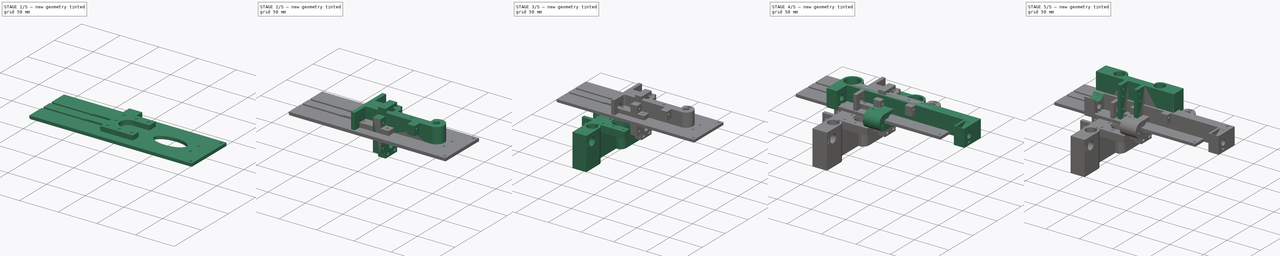
[diagram: build sequence overview — one tinted view per stage of 5, left to right]
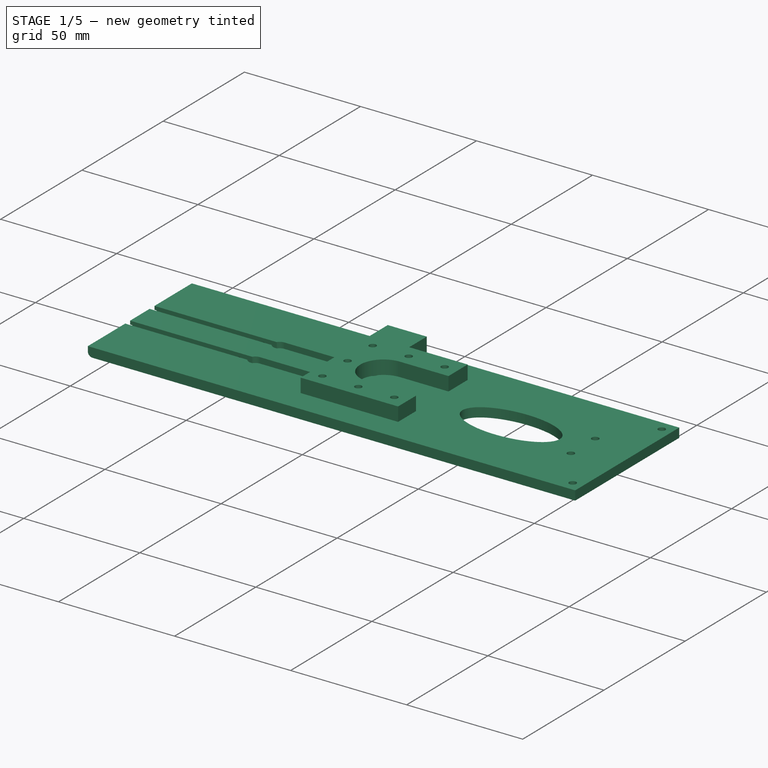
[diagram: stage 1 of 5 — iso view after this stage's code; geometry added in this stage tinted green]
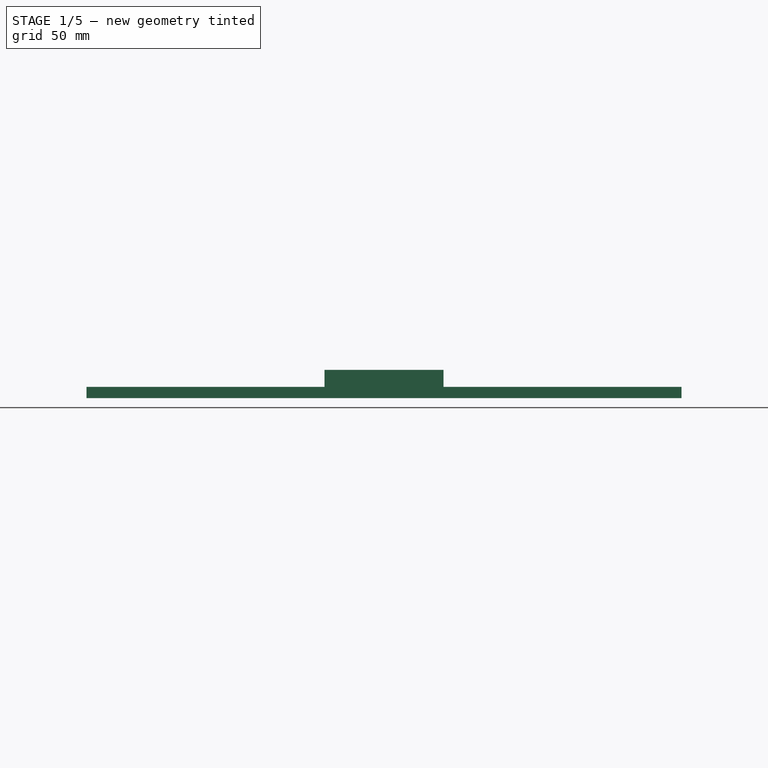
[diagram: stage 1 of 5 — front view after this stage's code; geometry added in this stage tinted green]
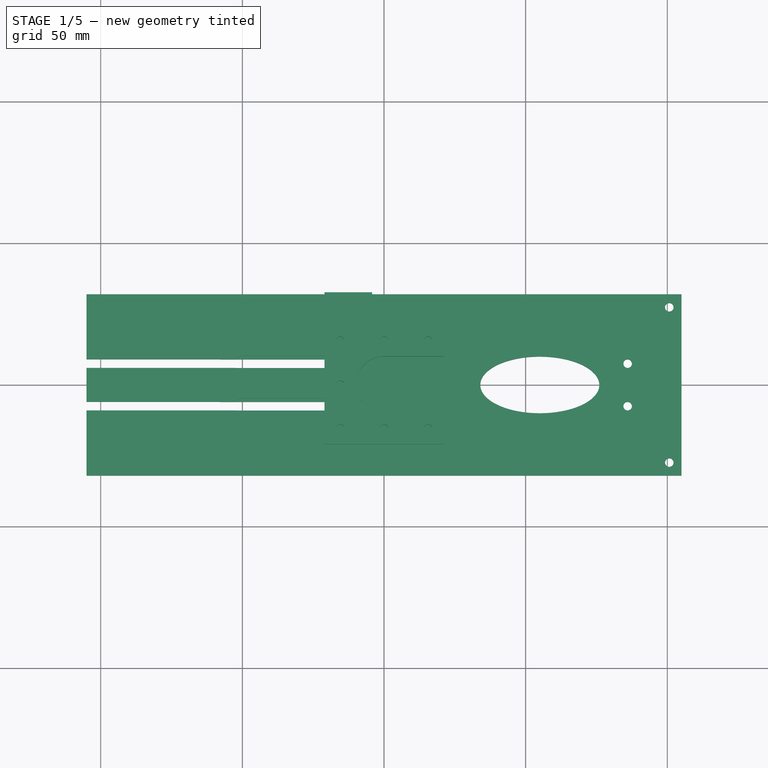
[diagram: stage 1 of 5 — top view after this stage's code; geometry added in this stage tinted green]
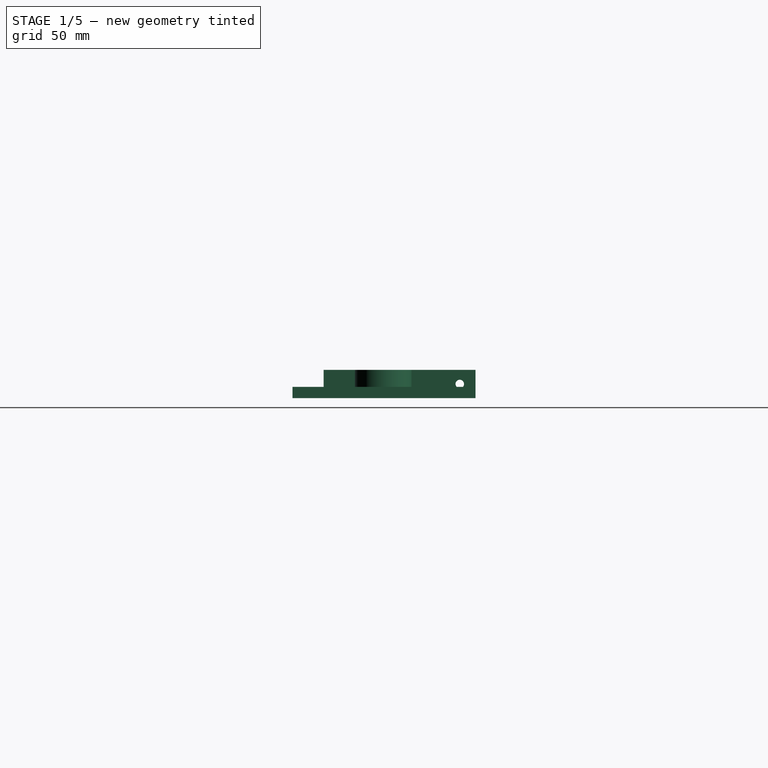
[diagram: stage 1 of 5 — right view after this stage's code; geometry added in this stage tinted green]
FCSTD DOCUMENT  (FreeCAD 0.19R24291 (Git))
Label: eje_XYZ
License: All rights reserved
LicenseURL: http://en.wikipedia.org/wiki/All_rights_reserved
objects: Sketcher::SketchObject×52, PartDesign::Pocket×36, PartDesign::Pad×14, PartDesign::Body×10, Spreadsheet::Sheet×5, PartDesign::Plane×4, App::FeaturePython×4, Part::FeaturePython×2, PartDesign::Fillet×2, Part::MultiFuse×1
note: 173 computed .brp shape members not serialized (recipe doc carries the construction recipe); baked Part::Feature solids carry a one-line shape summary decoded from their .brp

FEATURE [PartDesign::Body] Body008  label="base stepper Z"
  Group = -> [Sketch045,Sketch046,Sketch047,Pad013,Pocket028,Pocket029,Sketch048,Pocket030]
  Origin = -> Origin008
  Tip = -> Pocket030
FEATURE [Sketcher::SketchObject] Sketch049
  FullyConstrained = true
  MapMode = 5
  Support = -> [XY_Plane009]
  expr: Constraints[17] = <<zvarillas>>.sep_tornillos_fijacion_base_Z
  expr: Constraints[18] = <<zvarillas>>.sep_tornillos_fijacion_base_Z_2
  expr: Constraints[36] = <<zvarillas>>.sep_tornillos_fijacion_base_Z
  expr: Constraints[19] = <<zvarillas>>.sep_tornillos_fijacion_base_Z1_Z2
  sketch-geometry (24):
    g0: LineSegment StartX=-105 StartY=32 StartZ=0 EndX=105 EndY=32 EndZ=0
    g1: LineSegment StartX=105 StartY=32 StartZ=0 EndX=105 EndY=-32 EndZ=0
    g2: LineSegment StartX=105 StartY=-32 StartZ=0 EndX=-105 EndY=-32 EndZ=0
    g3: LineSegment StartX=-105 StartY=-32 StartZ=0 EndX=-105 EndY=32 EndZ=0
    g4: Circle CenterX=100.7 CenterY=27.4 CenterZ=0 NormalX=0 NormalY=0 NormalZ=1 AngleXU=0 Radius=1.5
    g5: Circle CenterX=86 CenterY=7.5 CenterZ=0 NormalX=0 NormalY=0 NormalZ=1 AngleXU=0 Radius=1.5
    g6: Circle CenterX=86 CenterY=-7.5 CenterZ=0 NormalX=0 NormalY=0 NormalZ=1 AngleXU=0 Radius=1.5
    g7: Circle CenterX=100.7 CenterY=-27.4 CenterZ=0 NormalX=0 NormalY=0 NormalZ=1 AngleXU=0 Radius=1.5
    g8: ArcOfCircle CenterX=-105 CenterY=7.5 CenterZ=0 NormalX=0 NormalY=0 NormalZ=1 AngleXU=0 Radius=1.5 StartAngle=1.5708 EndAngle=4.71239
    g9: ArcOfCircle CenterX=-10 CenterY=7.5 CenterZ=0 NormalX=0 NormalY=0 NormalZ=1 AngleXU=0 Radius=1.5 StartAngle=4.71239 EndAngle=7.85398
    g10: LineSegment StartX=-105 StartY=6 StartZ=0 EndX=-10 EndY=6 EndZ=0
    g11: LineSegment StartX=-105 StartY=9 StartZ=0 EndX=-10 EndY=9 EndZ=0
    g12: ArcOfCircle CenterX=-105 CenterY=-7.5 CenterZ=0 NormalX=0 NormalY=0 NormalZ=1 AngleXU=0 Radius=1.5 StartAngle=1.5708 EndAngle=4.71239
    g13: ArcOfCircle CenterX=-10 CenterY=-7.5 CenterZ=0 NormalX=0 NormalY=0 NormalZ=1 AngleXU=0 Radius=1.5 StartAngle=4.71239 EndAngle=7.85398
    g14: LineSegment StartX=-105 StartY=-9 StartZ=0 EndX=-10 EndY=-9 EndZ=0
    g15: LineSegment StartX=-105 StartY=-6 StartZ=0 EndX=-10 EndY=-6 EndZ=0
    g16: LineSegment StartX=-105 StartY=32 StartZ=0 EndX=-105 EndY=9 EndZ=0
    g17: LineSegment StartX=-105 StartY=6 StartZ=0 EndX=-105 EndY=-6 EndZ=0
    g18: LineSegment StartX=-105 StartY=-9 StartZ=0 EndX=-105 EndY=-32 EndZ=0
    g19: Ellipse CenterX=55 CenterY=0 CenterZ=0 NormalX=0 NormalY=0 NormalZ=1 MajorRadius=21 MinorRadius=10 AngleXU=-3e-16
    g20: LineSegment StartX=76 StartY=-5.6e-15 StartZ=0 EndX=34 EndY=5.6e-15 EndZ=0
    g21: LineSegment StartX=55 StartY=10 StartZ=0 EndX=55 EndY=-10 EndZ=0
    g22: GeomPoint X=73.4662 Y=-5.5e-15 Z=0
    g23: GeomPoint X=36.5338 Y=4.9e-15 Z=0
  constraints (52):
    c: Coincident(g0,g1)
    c: Coincident(g1,g2)
    c: Coincident(g2,g3)
    c: Coincident(g3,g0)
    c: Horizontal(g0)
    c: Horizontal(g2)
    c: Vertical(g1)
    c: Vertical(g3)
    c: Symmetric(g0,g1,g-1)
    c: DistanceX(g2,g2) = 210
    c: DistanceY(g1,g1) = 64
    c: Diameter(g7) = 3
    c: Equal(g7,g6)
    c: Equal(g7,g5)
    c: Equal(g7,g4)
    c: Symmetric(g6,g5,g-1)
    c: Symmetric(g7,g4,g-1)
    c: DistanceY(g6,g5) = 15
    c: DistanceY(g7,g4) = 54.8
    c: DistanceX(g6,g7) = 14.7
    c: DistanceX(g4,g0) = 4.3
    c: Tangent(g8,g11) = 1.5708
    c: Tangent(g8,g10) = -1.5708
    c: Tangent(g10,g9) = -1.5708
    c: Tangent(g11,g9) = 1.5708
    c: Horizontal(g10)
    c: Equal(g8,g9)
    c: Diameter(g9) = 3
    c: Tangent(g12,g15) = 1.5708
    c: Tangent(g12,g14) = -1.5708
    c: Tangent(g14,g13) = -1.5708
    c: Tangent(g15,g13) = 1.5708
    c: Horizontal(g14)
    c: Equal(g12,g13)
    c: Equal(g9,g13) = 3
    c: Symmetric(g9,g13,g-1)
    c: DistanceY(g13,g9) = 15
    c: PointOnObject(g12,g3)
    c: Equal(g15,g10)
    c: Coincident(g16,g0)
    c: Coincident(g16,g11)
    c: Coincident(g17,g10)
    c: Coincident(g17,g15)
    c: Coincident(g18,g14)
    c: Coincident(g18,g2)
    c: DistanceX(g11,g11) = 95
    c: InternalAlignment(g20-g23 -> g19) x4
    c: Vertical(g21)
    c: DistanceY(g21,g21) = 20
    c: DistanceX(g20,g20) = 42
    c: PointOnObject(g19,g-1)
    c: DistanceX(g19,g0) = 50
FEATURE [PartDesign::Pad] Pad014
  Direction = (1,1,1)
  Length = 4
  Length2 = 100
  Profile = -> Sketch049
  Type = 0
FEATURE [Sketcher::SketchObject] Sketch050
  ExternalGeometry = -> [Sketch049]
  FullyConstrained = true
  MapMode = 5
  Support = -> [XY_Plane009]
  sketch-geometry (8):
    g0: ArcOfCircle CenterX=-60 CenterY=7.5 CenterZ=0 NormalX=0 NormalY=0 NormalZ=1 AngleXU=0 Radius=2.8 StartAngle=4.71239 EndAngle=7.85398
    g1: ArcOfCircle CenterX=-105 CenterY=7.5 CenterZ=0 NormalX=0 NormalY=0 NormalZ=1 AngleXU=0 Radius=2.8 StartAngle=1.5708 EndAngle=4.71239
    g2: LineSegment StartX=-60 StartY=10.3 StartZ=0 EndX=-105 EndY=10.3 EndZ=0
    g3: LineSegment StartX=-60 StartY=4.7 StartZ=0 EndX=-105 EndY=4.7 EndZ=0
    g4: ArcOfCircle CenterX=-60 CenterY=-7.5 CenterZ=0 NormalX=0 NormalY=0 NormalZ=1 AngleXU=0 Radius=2.8 StartAngle=4.71239 EndAngle=7.85398
    g5: ArcOfCircle CenterX=-105 CenterY=-7.5 CenterZ=0 NormalX=0 NormalY=0 NormalZ=1 AngleXU=0 Radius=2.8 StartAngle=1.5708 EndAngle=4.71239
    g6: LineSegment StartX=-60 StartY=-4.7 StartZ=0 EndX=-105 EndY=-4.7 EndZ=0
    g7: LineSegment StartX=-60 StartY=-10.3 StartZ=0 EndX=-105 EndY=-10.3 EndZ=0
  constraints (19):
    c: Tangent(g0,g3) = 1.5708
    c: Tangent(g0,g2) = -1.5708
    c: Tangent(g2,g1) = -1.5708
    c: Tangent(g3,g1) = 1.5708
    c: Horizontal(g2)
    c: Equal(g0,g1)
    c: Diameter(g0) = 5.6
    c: Tangent(g4,g7) = 1.5708
    c: Tangent(g4,g6) = -1.5708
    c: Tangent(g6,g5) = -1.5708
    c: Tangent(g7,g5) = 1.5708
    c: Horizontal(g6)
    c: Equal(g4,g5)
    c: Equal(g0,g4) = 5.6
    c: Vertical(g5,g1)
    c: Vertical(g5,g-4)
    c: Symmetric(g0,g4,g-1)
    c: Horizontal(g-5,g0)
    c: DistanceX(g1,g0) = 45
FEATURE [PartDesign::Pocket] Pocket031
  BaseFeature = -> Pad014
  Length = 2.5
  Length2 = 100
  Profile = -> Sketch050
  Reversed = true
  Type = 0
FEATURE [PartDesign::Fillet] Fillet001
  Base = -> Pocket031 [Edge22]
  BaseFeature = -> Pocket031
  Radius = 2
  SupportTransform = false
FEATURE [Spreadsheet::Sheet] Spreadsheet004  label="xstepper001"
  cells = A1==31mm; B1=distancia centro a centro; C1= agujeros stepper; A2==2.95mm; B2=diametro; C2=agujero tornillos stepper; D2==5.32mm + 0.2mm; E2=diametro; F2=cabeza tornillo M3 con 0.2 tol; A3==20mm; B3=agujero para polea; C3=Gt2 20 dientes; D3==3mm; E3=profundidad; F3=hueco cabeza tornillos M3; A4==42mm; B4=ancho ; C4=lado stepper; D4==42mm + 2mm; E4=ancho; F4=lado stepper con tolerancia (2 mm); A6==50mm; B6=alto; C6=stepper; A8==10mm; B8=altura; C8=base stepper; A10==22mm; B10=diametro; C10=ruleman; D10==A10 + 0.2mm; E10=diametro; F10=cilindro protrusion del NEMA 17 (con tol 0.2 mm); A11==7mm; B11=profundidad; C11=hueco para ruleman (en total mide 8 mm de alto)
FEATURE [Sketcher::SketchObject] Sketch051  label="huecos_tornillos_stepper001"
  FullyConstrained = false
  MapMode = 5
  Support = -> [XY_Plane010]
  expr: Constraints[5] = <<xstepper001>>.A4
  expr: Constraints[51] = <<xstepper001>>.A3
  expr: Constraints[11] = <<xstepper001>>.D2
  expr: Constraints[14] = <<xstepper001>>.A1
  sketch-geometry (22):
    g0: LineSegment StartX=-21 StartY=21 StartZ=0 EndX=21 EndY=21 EndZ=0
    g1: LineSegment StartX=21 StartY=-21 StartZ=0 EndX=-21 EndY=-21 EndZ=0
    g2: LineSegment StartX=-21 StartY=-21 StartZ=0 EndX=-21 EndY=21 EndZ=0
    g3: LineSegment StartX=-21 StartY=-21 StartZ=0 EndX=21 EndY=21 EndZ=0
    g4: LineSegment StartX=21 StartY=-21 StartZ=0 EndX=-21 EndY=21 EndZ=0
    g5: GeomPoint X=0 Y=0 Z=0
    g6: Circle CenterX=-15.5 CenterY=15.5 CenterZ=0 NormalX=0 NormalY=0 NormalZ=1 AngleXU=0 Radius=2.76
    g7: Circle CenterX=15.5 CenterY=15.5 CenterZ=0 NormalX=0 NormalY=0 NormalZ=1 AngleXU=0 Radius=2.76
    g8: LineSegment StartX=-15.5 StartY=15.5 StartZ=0 EndX=15.5 EndY=15.5 EndZ=0
    g9: Circle CenterX=-15.5 CenterY=-15.5 CenterZ=0 NormalX=0 NormalY=0 NormalZ=1 AngleXU=0 Radius=2.76
    g10: LineSegment StartX=-15.5 StartY=15.5 StartZ=0 EndX=-15.5 EndY=-15.5 EndZ=0
    g11: Circle CenterX=15.5 CenterY=-15.5 CenterZ=0 NormalX=0 NormalY=0 NormalZ=1 AngleXU=0 Radius=2.76
    g12: LineSegment StartX=-15.5 StartY=-15.5 StartZ=0 EndX=15.5 EndY=-15.5 EndZ=0
    g13: Circle CenterX=-15.5 CenterY=0 CenterZ=0 NormalX=0 NormalY=0 NormalZ=1 AngleXU=0 Radius=2.76
    g14: Circle CenterX=0 CenterY=15.5 CenterZ=0 NormalX=0 NormalY=0 NormalZ=1 AngleXU=0 Radius=2.76
    g15: Circle CenterX=0 CenterY=-15.5 CenterZ=0 NormalX=0 NormalY=0 NormalZ=1 AngleXU=0 Radius=2.76
    g16: ArcOfCircle CenterX=0 CenterY=0 CenterZ=0 NormalX=0 NormalY=0 NormalZ=1 AngleXU=0 Radius=10 StartAngle=1.5708 EndAngle=4.71239
    g17: LineSegment StartX=21 StartY=21 StartZ=0 EndX=21 EndY=10 EndZ=0
    g18: LineSegment StartX=21 StartY=10 StartZ=0 EndX=0 EndY=10 EndZ=0
    g19: LineSegment StartX=21 StartY=-21 StartZ=0 EndX=21 EndY=-10 EndZ=0
    g20: LineSegment StartX=21 StartY=-10 StartZ=0 EndX=-3.6e-15 EndY=-10 EndZ=0
    g21: LineSegment StartX=21 StartY=10 StartZ=0 EndX=21 EndY=-10 EndZ=0
  constraints (58):
    c: Coincident(g1,g2)
    c: Coincident(g2,g0)
    c: Horizontal(g0)
    c: Horizontal(g1)
    c: Vertical(g2)
    c: DistanceX(g1,g1) = 42
    c: Coincident(g3,g1)
    c: Coincident(g3,g0)
    c: Coincident(g4,g0)
    c: PointOnObject(g5,g3)
    c: PointOnObject(g5,g4)
    c: Diameter(g6) = 5.52
    c: Coincident(g6,g8)
    c: Coincident(g7,g8)
    c: Distance(g8) = 31
    c: Coincident(g6,g10)
    c: Coincident(g9,g10)
    c: Equal(g10,g8)
    c: Perpendicular(g10,g8)
    c: Coincident(g9,g12)
    c: Coincident(g11,g12)
    c: Equal(g8,g12)
    c: Parallel(g12,g8)
    c: Horizontal(g8)
    c: PointOnObject(g6,g4)
    c: PointOnObject(g7,g3)
    c: PointOnObject(g13,g10)
    c: PointOnObject(g14,g8)
    c: PointOnObject(g15,g12)
    c: PointOnObject(g15,g-2)
    c: PointOnObject(g14,g-2)
    c: PointOnObject(g13,g-1)
    c: Equal(g13,g14)
    c: Equal(g14,g15)
    c: Equal(g15,g7)
    c: Equal(g15,g9)
    c: Equal(g9,g11)
    c: Equal(g7,g6)
    c: Coincident(g16,g5)
    c: PointOnObject(g16,g-2)
    c: PointOnObject(g16,g-2)
    c: Coincident(g0,g17)
    c: Vertical(g17)
    c: Coincident(g17,g18)
    c: Coincident(g18,g16)
    c: Horizontal(g18)
    c: Coincident(g1,g19)
    c: Vertical(g19)
    c: Coincident(g19,g20)
    c: Coincident(g20,g16)
    c: Horizontal(g20)
    c: Diameter(g16) = 20
    c: Coincident(g5,g-1)
    c: Coincident(g21,g19)
    c: Coincident(g21,g17)
    c: Equal(g17,g19)
    c: Coincident(g4,g1)
    c: PointOnObject(g9,g3)
FEATURE [Sketcher::SketchObject] Sketch052  label="base_stepper_sketch002"
  FullyConstrained = false
  MapMode = 5
  Support = -> [XY_Plane010]
  expr: Constraints[5] = <<xstepper001>>.A4
  expr: Constraints[51] = <<xstepper001>>.A3
  expr: Constraints[11] = <<xstepper001>>.A2
  expr: Constraints[14] = <<xstepper001>>.A1
  sketch-geometry (22):
    g0: LineSegment StartX=-21 StartY=21 StartZ=0 EndX=21 EndY=21 EndZ=0
    g1: LineSegment StartX=21 StartY=-21 StartZ=0 EndX=-21 EndY=-21 EndZ=0
    g2: LineSegment StartX=-21 StartY=-21 StartZ=0 EndX=-21 EndY=21 EndZ=0
    g3: LineSegment StartX=-21 StartY=-21 StartZ=0 EndX=21 EndY=21 EndZ=0
    g4: LineSegment StartX=21 StartY=-21 StartZ=0 EndX=-21 EndY=21 EndZ=0
    g5: GeomPoint X=0 Y=0 Z=0
    g6: Circle CenterX=-15.5 CenterY=15.5 CenterZ=0 NormalX=0 NormalY=0 NormalZ=1 AngleXU=0 Radius=1.475
    g7: Circle CenterX=15.5 CenterY=15.5 CenterZ=0 NormalX=0 NormalY=0 NormalZ=1 AngleXU=0 Radius=1.475
    g8: LineSegment StartX=-15.5 StartY=15.5 StartZ=0 EndX=15.5 EndY=15.5 EndZ=0
    g9: Circle CenterX=-15.5 CenterY=-15.5 CenterZ=0 NormalX=0 NormalY=0 NormalZ=1 AngleXU=0 Radius=1.475
    g10: LineSegment StartX=-15.5 StartY=15.5 StartZ=0 EndX=-15.5 EndY=-15.5 EndZ=0
    g11: Circle CenterX=15.5 CenterY=-15.5 CenterZ=0 NormalX=0 NormalY=0 NormalZ=1 AngleXU=0 Radius=1.475
    g12: LineSegment StartX=-15.5 StartY=-15.5 StartZ=0 EndX=15.5 EndY=-15.5 EndZ=0
    g13: Circle CenterX=-15.5 CenterY=0 CenterZ=0 NormalX=0 NormalY=0 NormalZ=1 AngleXU=0 Radius=1.475
    g14: Circle CenterX=0 CenterY=15.5 CenterZ=0 NormalX=0 NormalY=0 NormalZ=1 AngleXU=0 Radius=1.475
    g15: Circle CenterX=0 CenterY=-15.5 CenterZ=0 NormalX=0 NormalY=0 NormalZ=1 AngleXU=0 Radius=1.475
    g16: ArcOfCircle CenterX=0 CenterY=0 CenterZ=0 NormalX=0 NormalY=0 NormalZ=1 AngleXU=0 Radius=10 StartAngle=1.5708 EndAngle=4.71239
    g17: LineSegment StartX=21 StartY=21 StartZ=0 EndX=21 EndY=10 EndZ=0
    g18: LineSegment StartX=21 StartY=10 StartZ=0 EndX=0 EndY=10 EndZ=0
    g19: LineSegment StartX=21 StartY=-21 StartZ=0 EndX=21 EndY=-10 EndZ=0
    g20: LineSegment StartX=21 StartY=-10 StartZ=0 EndX=-3.6e-15 EndY=-10 EndZ=0
    g21: LineSegment StartX=21 StartY=10 StartZ=0 EndX=21 EndY=-10 EndZ=0
  constraints (58):
    c: Coincident(g1,g2)
    c: Coincident(g2,g0)
    c: Horizontal(g0)
    c: Horizontal(g1)
    c: Vertical(g2)
    c: DistanceX(g1,g1) = 42
    c: Coincident(g3,g1)
    c: Coincident(g3,g0)
    c: Coincident(g4,g0)
    c: PointOnObject(g5,g3)
    c: PointOnObject(g5,g4)
    c: Diameter(g6) = 2.95
    c: Coincident(g6,g8)
    c: Coincident(g7,g8)
    c: Distance(g8) = 31
    c: Coincident(g6,g10)
    c: Coincident(g9,g10)
    c: Equal(g10,g8)
    c: Perpendicular(g10,g8)
    c: Coincident(g9,g12)
    c: Coincident(g11,g12)
    c: Equal(g8,g12)
    c: Parallel(g12,g8)
    c: Horizontal(g8)
    c: PointOnObject(g6,g4)
    c: PointOnObject(g7,g3)
    c: PointOnObject(g13,g10)
    c: PointOnObject(g14,g8)
    c: PointOnObject(g15,g12)
    c: PointOnObject(g15,g-2)
    c: PointOnObject(g14,g-2)
    c: PointOnObject(g13,g-1)
    c: Equal(g13,g14)
    c: Equal(g14,g15)
    c: Equal(g15,g7)
    c: Equal(g15,g9)
    c: Equal(g9,g11)
    c: Equal(g7,g6)
    c: Coincident(g16,g5)
    c: PointOnObject(g16,g-2)
    c: PointOnObject(g16,g-2)
    c: Coincident(g0,g17)
    c: Vertical(g17)
    c: Coincident(g17,g18)
    c: Coincident(g18,g16)
    c: Horizontal(g18)
    c: Coincident(g1,g19)
    c: Vertical(g19)
    c: Coincident(g19,g20)
    c: Coincident(g20,g16)
    c: Horizontal(g20)
    c: Diameter(g16) = 20
    c: Coincident(g5,g-1)
    c: Coincident(g21,g19)
    c: Coincident(g21,g17)
    c: Equal(g17,g19)
    c: Coincident(g4,g1)
    c: PointOnObject(g9,g3)
FEATURE [PartDesign::Pad] Pad015  label="base_stepper_pad001"
  AllowMultiFace = false
  Direction = (1,1,1)
  Length = 10
  Length2 = 100
  Profile = -> Sketch052
  Type = 0
  expr: Length = <<xstepper001>>.A8
FEATURE [PartDesign::Plane] DatumPlane002
  Length = 60
  MapMode = 5
  Placement = pos=(0,0,10) rot=(0,0,1;0rad)
  ResizeMode = 0
  Support = -> [Pocket032]
  Width = 60
FEATURE [PartDesign::Body] Body010  label="X_belt_tensioner"
  Group = -> [Sketch052,Pad015,Sketch051,Pocket032,DatumPlane002,Sketch053,Pocket033]
  Origin = -> Origin010
  Tip = -> Pocket033
  expr: .Placement.Base.y = 0
  expr: .Placement.Base.x = 0
FEATURE [Sketcher::SketchObject] Sketch054  label="base_stepper_sketch003"
  FullyConstrained = true
  MapMode = 5
  Support = -> [XY_Plane011]
  expr: Constraints[14] = <<xstepper>>.A1
  expr: Constraints[11] = <<xstepper>>.A2
  expr: Constraints[51] = <<xstepper>>.A3
  expr: Constraints[5] = <<xstepper>>.A4
  sketch-geometry (22):
    g0: LineSegment StartX=-21 StartY=21 StartZ=0 EndX=21 EndY=21 EndZ=0
    g1: LineSegment StartX=21 StartY=-21 StartZ=0 EndX=-21 EndY=-21 EndZ=0
    g2: LineSegment StartX=-21 StartY=-21 StartZ=0 EndX=-21 EndY=21 EndZ=0
    g3: LineSegment StartX=-21 StartY=-21 StartZ=0 EndX=21 EndY=21 EndZ=0
    g4: LineSegment StartX=21 StartY=-21 StartZ=0 EndX=-21 EndY=21 EndZ=0
    g5: GeomPoint X=0 Y=0 Z=0
    g6: Circle CenterX=-15.5 CenterY=15.5 CenterZ=0 NormalX=0 NormalY=0 NormalZ=1 AngleXU=0 Radius=1.475
    g7: Circle CenterX=15.5 CenterY=15.5 CenterZ=0 NormalX=0 NormalY=0 NormalZ=1 AngleXU=0 Radius=1.475
    g8: LineSegment StartX=-15.5 StartY=15.5 StartZ=0 EndX=15.5 EndY=15.5 EndZ=0
    g9: Circle CenterX=-15.5 CenterY=-15.5 CenterZ=0 NormalX=0 NormalY=0 NormalZ=1 AngleXU=0 Radius=1.475
    g10: LineSegment StartX=-15.5 StartY=15.5 StartZ=0 EndX=-15.5 EndY=-15.5 EndZ=0
    g11: Circle CenterX=15.5 CenterY=-15.5 CenterZ=0 NormalX=0 NormalY=0 NormalZ=1 AngleXU=0 Radius=1.475
    g12: LineSegment StartX=-15.5 StartY=-15.5 StartZ=0 EndX=15.5 EndY=-15.5 EndZ=0
    g13: Circle CenterX=-15.5 CenterY=0 CenterZ=0 NormalX=0 NormalY=0 NormalZ=1 AngleXU=0 Radius=1.475
    g14: Circle CenterX=0 CenterY=15.5 CenterZ=0 NormalX=0 NormalY=0 NormalZ=1 AngleXU=0 Radius=1.475
    g15: Circle CenterX=0 CenterY=-15.5 CenterZ=0 NormalX=0 NormalY=0 NormalZ=1 AngleXU=0 Radius=1.475
    g16: ArcOfCircle CenterX=0 CenterY=0 CenterZ=0 NormalX=0 NormalY=0 NormalZ=1 AngleXU=0 Radius=10 StartAngle=1.5708 EndAngle=4.71239
    g17: LineSegment StartX=21 StartY=21 StartZ=0 EndX=21 EndY=10 EndZ=0
    g18: LineSegment StartX=21 StartY=10 StartZ=0 EndX=0 EndY=10 EndZ=0
    g19: LineSegment StartX=21 StartY=-21 StartZ=0 EndX=21 EndY=-10 EndZ=0
    g20: LineSegment StartX=21 StartY=-10 StartZ=0 EndX=-3.6e-15 EndY=-10 EndZ=0
    g21: LineSegment StartX=21 StartY=10 StartZ=0 EndX=21 EndY=-10 EndZ=0
  constraints (58):
    c: Coincident(g1,g2)
    c: Coincident(g2,g0)
    c: Horizontal(g0)
    c: Horizontal(g1)
    c: Vertical(g2)
    c: DistanceX(g1,g1) = 42
    c: Coincident(g3,g1)
    c: Coincident(g3,g0)
    c: Coincident(g4,g0)
    c: PointOnObject(g5,g3)
    c: PointOnObject(g5,g4)
    c: Diameter(g6) = 2.95
    c: Coincident(g6,g8)
    c: Coincident(g7,g8)
    c: Distance(g8) = 31
    c: Coincident(g6,g10)
    c: Coincident(g9,g10)
    c: Equal(g10,g8)
    c: Perpendicular(g10,g8)
    c: Coincident(g9,g12)
    c: Coincident(g11,g12)
    c: Equal(g8,g12)
    c: Parallel(g12,g8)
    c: Horizontal(g8)
    c: PointOnObject(g6,g4)
    c: PointOnObject(g7,g3)
    c: PointOnObject(g13,g10)
    c: PointOnObject(g14,g8)
    c: PointOnObject(g15,g12)
    c: PointOnObject(g15,g-2)
    c: PointOnObject(g14,g-2)
    c: PointOnObject(g13,g-1)
    c: Equal(g13,g14)
    c: Equal(g14,g15)
    c: Equal(g15,g7)
    c: Equal(g15,g9)
    c: Equal(g9,g11)
    c: Equal(g7,g6)
    c: Coincident(g16,g5)
    c: PointOnObject(g16,g-2)
    c: PointOnObject(g16,g-2)
    c: Coincident(g0,g17)
    c: Vertical(g17)
    c: Coincident(g17,g18)
    c: Coincident(g18,g16)
    c: Horizontal(g18)
    c: Coincident(g1,g19)
    c: Vertical(g19)
    c: Coincident(g19,g20)
    c: Coincident(g20,g16)
    c: Horizontal(g20)
    c: Diameter(g16) = 20
    c: Coincident(g5,g-1)
    c: Coincident(g21,g19)
    c: Coincident(g21,g17)
    c: Equal(g17,g19)
    c: Coincident(g4,g1)
    c: PointOnObject(g9,g3)
FEATURE [PartDesign::Pad] Pad016  label="base_stepper_pad002"
  AllowMultiFace = false
  Direction = (1,1,1)
  Length = 10
  Length2 = 100
  Profile = -> Sketch054
  Type = 0
  expr: Length = <<xstepper>>.A8
FEATURE [Sketcher::SketchObject] Sketch055  label="huecos_tornillos_stepper002"
  FullyConstrained = true
  MapMode = 5
  Support = -> [XY_Plane011]
  expr: Constraints[14] = <<xstepper>>.A1
  expr: Constraints[11] = <<xstepper>>.D2
  expr: Constraints[51] = <<xstepper>>.A3
  expr: Constraints[5] = <<xstepper>>.A4
  sketch-geometry (22):
    g0: LineSegment StartX=-21 StartY=21 StartZ=0 EndX=21 EndY=21 EndZ=0
    g1: LineSegment StartX=21 StartY=-21 StartZ=0 EndX=-21 EndY=-21 EndZ=0
    g2: LineSegment StartX=-21 StartY=-21 StartZ=0 EndX=-21 EndY=21 EndZ=0
    g3: LineSegment StartX=-21 StartY=-21 StartZ=0 EndX=21 EndY=21 EndZ=0
    g4: LineSegment StartX=21 StartY=-21 StartZ=0 EndX=-21 EndY=21 EndZ=0
    g5: GeomPoint X=0 Y=0 Z=0
    g6: Circle CenterX=-15.5 CenterY=15.5 CenterZ=0 NormalX=0 NormalY=0 NormalZ=1 AngleXU=0 Radius=2.76
    g7: Circle CenterX=15.5 CenterY=15.5 CenterZ=0 NormalX=0 NormalY=0 NormalZ=1 AngleXU=0 Radius=2.76
    g8: LineSegment StartX=-15.5 StartY=15.5 StartZ=0 EndX=15.5 EndY=15.5 EndZ=0
    g9: Circle CenterX=-15.5 CenterY=-15.5 CenterZ=0 NormalX=0 NormalY=0 NormalZ=1 AngleXU=0 Radius=2.76
    g10: LineSegment StartX=-15.5 StartY=15.5 StartZ=0 EndX=-15.5 EndY=-15.5 EndZ=0
    g11: Circle CenterX=15.5 CenterY=-15.5 CenterZ=0 NormalX=0 NormalY=0 NormalZ=1 AngleXU=0 Radius=2.76
    g12: LineSegment StartX=-15.5 StartY=-15.5 StartZ=0 EndX=15.5 EndY=-15.5 EndZ=0
    g13: Circle CenterX=-15.5 CenterY=0 CenterZ=0 NormalX=0 NormalY=0 NormalZ=1 AngleXU=0 Radius=2.76
    g14: Circle CenterX=0 CenterY=15.5 CenterZ=0 NormalX=0 NormalY=0 NormalZ=1 AngleXU=0 Radius=2.76
    g15: Circle CenterX=0 CenterY=-15.5 CenterZ=0 NormalX=0 NormalY=0 NormalZ=1 AngleXU=0 Radius=2.76
    g16: ArcOfCircle CenterX=0 CenterY=0 CenterZ=0 NormalX=0 NormalY=0 NormalZ=1 AngleXU=0 Radius=10 StartAngle=1.5708 EndAngle=4.71239
    g17: LineSegment StartX=21 StartY=21 StartZ=0 EndX=21 EndY=10 EndZ=0
    g18: LineSegment StartX=21 StartY=10 StartZ=0 EndX=0 EndY=10 EndZ=0
    g19: LineSegment StartX=21 StartY=-21 StartZ=0 EndX=21 EndY=-10 EndZ=0
    g20: LineSegment StartX=21 StartY=-10 StartZ=0 EndX=-3.6e-15 EndY=-10 EndZ=0
    g21: LineSegment StartX=21 StartY=10 StartZ=0 EndX=21 EndY=-10 EndZ=0
  constraints (58):
    c: Coincident(g1,g2)
    c: Coincident(g2,g0)
    c: Horizontal(g0)
    c: Horizontal(g1)
    c: Vertical(g2)
    c: DistanceX(g1,g1) = 42
    c: Coincident(g3,g1)
    c: Coincident(g3,g0)
    c: Coincident(g4,g0)
    c: PointOnObject(g5,g3)
    c: PointOnObject(g5,g4)
    c: Diameter(g6) = 5.52
    c: Coincident(g6,g8)
    c: Coincident(g7,g8)
    c: Distance(g8) = 31
    c: Coincident(g6,g10)
    c: Coincident(g9,g10)
    c: Equal(g10,g8)
    c: Perpendicular(g10,g8)
    c: Coincident(g9,g12)
    c: Coincident(g11,g12)
    c: Equal(g8,g12)
    c: Parallel(g12,g8)
    c: Horizontal(g8)
    c: PointOnObject(g6,g4)
    c: PointOnObject(g7,g3)
    c: PointOnObject(g13,g10)
    c: PointOnObject(g14,g8)
    c: PointOnObject(g15,g12)
    c: PointOnObject(g15,g-2)
    c: PointOnObject(g14,g-2)
    c: PointOnObject(g13,g-1)
    c: Equal(g13,g14)
    c: Equal(g14,g15)
    c: Equal(g15,g7)
    c: Equal(g15,g9)
    c: Equal(g9,g11)
    c: Equal(g7,g6)
    c: Coincident(g16,g5)
    c: PointOnObject(g16,g-2)
    c: PointOnObject(g16,g-2)
    c: Coincident(g0,g17)
    c: Vertical(g17)
    c: Coincident(g17,g18)
    c: Coincident(g18,g16)
    c: Horizontal(g18)
    c: Coincident(g1,g19)
    c: Vertical(g19)
    c: Coincident(g19,g20)
    c: Coincident(g20,g16)
    c: Horizontal(g20)
    c: Diameter(g16) = 20
    c: Coincident(g5,g-1)
    c: Coincident(g21,g19)
    c: Coincident(g21,g17)
    c: Equal(g17,g19)
    c: Coincident(g4,g1)
    c: PointOnObject(g9,g3)
FEATURE [PartDesign::Pocket] Pocket034  label="pad_huecos_tornillos_stepper002"
  AllowMultiFace = false
  BaseFeature = -> Pad016
  Length = 3
  Length2 = 100
  Profile = -> Sketch055
  Reversed = true
  Type = 0
  expr: Length = <<xstepper>>.D3
FEATURE [PartDesign::Plane] DatumPlane003
  Length = 60.7331
  MapMode = 5
  Placement = pos=(0,0,10) rot=(0,0,1;0rad)
  ResizeMode = 0
  Support = -> [Pocket034]
  Width = 68.3331
FEATURE [Sketcher::SketchObject] Sketch056
  FullyConstrained = true
  MapMode = 5
  Placement = pos=(0,0,10) rot=(0,0,1;0rad)
  Support = -> [Pocket034]
  expr: Constraints[1] = <<xstepper>>.D10
  sketch-geometry (1):
    g0: Circle CenterX=0 CenterY=0 CenterZ=0 NormalX=0 NormalY=0 NormalZ=1 AngleXU=0 Radius=11.1
  constraints (2):
    c: Coincident(g0,g-1)
    c: Diameter(g0) = 22.2
FEATURE [PartDesign::Pocket] Pocket035  label="base stepper correa_pocket001"
  AllowMultiFace = false
  BaseFeature = -> Pocket034
  Length = 2
  Length2 = 100
  Midplane = true
  Profile = -> Sketch056
  Type = 1
  expr: Length = <<xstepper>>.A11
FEATURE [Sketcher::SketchObject] Sketch057
  ExternalGeometry = -> [Sketch054]
  FullyConstrained = true
  MapMode = 5
  Support = -> [XY_Plane011]
  expr: Constraints[12] = 1 - 0.2
  expr: Constraints[6] = 17mm - 0.2mm
  sketch-geometry (6):
    g0: LineSegment StartX=-4.2 StartY=21.8 StartZ=0 EndX=-4.2 EndY=32.6 EndZ=0
    g1: LineSegment StartX=-4.2 StartY=32.6 StartZ=0 EndX=-21 EndY=32.6 EndZ=0
    g2: LineSegment StartX=-21 StartY=32.6 StartZ=0 EndX=-21 EndY=21 EndZ=0
    g3: LineSegment StartX=-4.2 StartY=21.8 StartZ=0 EndX=21 EndY=21.8 EndZ=0
    g4: LineSegment StartX=21 StartY=21 StartZ=0 EndX=21 EndY=21.8 EndZ=0
    g5: LineSegment StartX=-21 StartY=21 StartZ=0 EndX=21 EndY=21 EndZ=0
  constraints (16):
    c: Coincident(g0,g1)
    c: Coincident(g1,g2)
    c: Horizontal(g1)
    c: Vertical(g0)
    c: Vertical(g2)
    c: DistanceY(g-3,g1) = 53.6
    c: DistanceX(g1,g1) = 16.8
    c: Coincident(g3,g0)
    c: Horizontal(g3)
    c: Coincident(g4,g-4)
    c: Coincident(g4,g3)
    c: Vertical(g4)
    c: DistanceY(g4,g4) = 0.8
    c: Coincident(g2,g-4)
    c: Coincident(g5,g2)
    c: Coincident(g5,g4)
FEATURE [PartDesign::Pad] Pad017
  BaseFeature = -> Pocket035
  Direction = (1,1,1)
  Length = 10
  Length2 = 100
  Profile = -> Sketch057
  Type = 0
FEATURE [Sketcher::SketchObject] Sketch058
  ExternalGeometry = -> [Pad017]
  FullyConstrained = true
  MapMode = 5
  Placement = pos=(0,0,0) rot=(0.57735,0.57735,0.57735;2.0944rad)
  Support = -> [YZ_Plane011]
  sketch-geometry (2):
    g0: Circle CenterX=27.05 CenterY=5 CenterZ=0 NormalX=0 NormalY=0 NormalZ=1 AngleXU=0 Radius=1.5
    g1: Circle CenterX=27.05 CenterY=5 CenterZ=0 NormalX=0 NormalY=0 NormalZ=1 AngleXU=0 Radius=5
  constraints (5):
    c: Coincident(g1,g0)
    c: Tangent(g1,g-4)
    c: Tangent(g1,g-1)
    c: DistanceX(g-3,g0) = 48.05
    c: Diameter(g0) = 3
FEATURE [PartDesign::Pocket] Pocket036
  BaseFeature = -> Pad017
  Length = 5
  Length2 = 100
  Profile = -> Sketch058
  Type = 1
FEATURE [Sketcher::SketchObject] Sketch059
  ExternalGeometry = -> [Sketch054]
  FullyConstrained = true
  MapMode = 5
  Support = -> [XY_Plane011]
  expr: Constraints[8] = 12.5mm + 0.4mm
  expr: Constraints[10] = 12.5mm - 0.4mm / 2
  sketch-geometry (4):
    g0: LineSegment StartX=8.7 StartY=22 StartZ=0 EndX=-4.2 EndY=22 EndZ=0
    g1: LineSegment StartX=-4.2 StartY=22 StartZ=0 EndX=-4.2 EndY=11.8 EndZ=0
    g2: LineSegment StartX=-4.2 StartY=11.8 StartZ=0 EndX=8.7 EndY=11.8 EndZ=0
    g3: LineSegment StartX=8.7 StartY=11.8 StartZ=0 EndX=8.7 EndY=22 EndZ=0
  constraints (12):
    c: Coincident(g0,g1)
    c: Coincident(g1,g2)
    c: Coincident(g2,g3)
    c: Coincident(g3,g0)
    c: Horizontal(g0)
    c: Horizontal(g2)
    c: Vertical(g1)
    c: Vertical(g3)
    c: DistanceX(g0,g0) = 12.9
    c: DistanceY(g3,g3) = 10.2
    c: DistanceX(g0,g-3) = 12.3
    c: DistanceY(g-3,g0) = 1
FEATURE [PartDesign::Pocket] Pocket037
  BaseFeature = -> Pocket036
  Length = 0.2
  Length2 = 100
  Profile = -> Sketch059
  Reversed = true
  Type = 0
FEATURE [PartDesign::Body] Body011  label="X_stepper_coupling"
  Group = -> [Sketch054,Pad016,Sketch055,Pocket034,DatumPlane003,Sketch056,Pocket035,Sketch057,Pad017,Sketch058,Pocket036,Sketch059,Pocket037]
  Origin = -> Origin011
  Placement = pos=(0,0,-30) rot=(0,0,1;0rad)
  Tip = -> Pocket037
  expr: .Placement.Base.x = 0
  expr: .Placement.Base.y = 0
FEATURE [Sketcher::SketchObject] Sketch060
  AttachmentOffset = pos=(0,0,4) rot=(0,0,1;0rad)
  ExternalGeometry = -> [Sketch049]
  FullyConstrained = true
  MapMode = 5
  Placement = pos=(0,0,4) rot=(0,0,1;0rad)
  Support = -> [XY_Plane009]
  sketch-geometry (8):
    g0: ArcOfCircle CenterX=-10 CenterY=7.5 CenterZ=0 NormalX=0 NormalY=0 NormalZ=1 AngleXU=0 Radius=2.8 StartAngle=4.71239 EndAngle=7.85398
    g1: ArcOfCircle CenterX=-50 CenterY=7.5 CenterZ=0 NormalX=0 NormalY=0 NormalZ=1 AngleXU=0 Radius=2.8 StartAngle=1.5708 EndAngle=4.71239
    g2: LineSegment StartX=-10 StartY=10.3 StartZ=0 EndX=-50 EndY=10.3 EndZ=0
    g3: LineSegment StartX=-10 StartY=4.7 StartZ=0 EndX=-50 EndY=4.7 EndZ=0
    g4: ArcOfCircle CenterX=-10 CenterY=-7.5 CenterZ=0 NormalX=0 NormalY=0 NormalZ=1 AngleXU=0 Radius=2.8 StartAngle=4.71239 EndAngle=7.85398
    g5: ArcOfCircle CenterX=-50 CenterY=-7.5 CenterZ=0 NormalX=0 NormalY=0 NormalZ=1 AngleXU=0 Radius=2.8 StartAngle=1.5708 EndAngle=4.71239
    g6: LineSegment StartX=-10 StartY=-4.7 StartZ=0 EndX=-50 EndY=-4.7 EndZ=0
    g7: LineSegment StartX=-10 StartY=-10.3 StartZ=0 EndX=-50 EndY=-10.3 EndZ=0
  constraints (18):
    c: Tangent(g0,g3) = 1.5708
    c: Tangent(g0,g2) = -1.5708
    c: Tangent(g2,g1) = -1.5708
    c: Tangent(g3,g1) = 1.5708
    c: Horizontal(g2)
    c: Equal(g0,g1)
    c: Diameter(g0) = 5.6
    c: Tangent(g4,g7) = 1.5708
    c: Tangent(g4,g6) = -1.5708
    c: Tangent(g6,g5) = -1.5708
    c: Tangent(g7,g5) = 1.5708
    c: Horizontal(g6)
    c: Equal(g4,g5)
    c: Equal(g0,g4) = 5.6
    c: Vertical(g5,g1)
    c: Symmetric(g0,g4,g-1)
    c: DistanceX(g1,g0) = 40
    c: Coincident(g0,g-5)
FEATURE [PartDesign::Pocket] Pocket038
  BaseFeature = -> Fillet001
  Length = 2.5
  Length2 = 100
  Profile = -> Sketch060
  Type = 0
FEATURE [PartDesign::Body] Body009  label="placa_base_Z"
  Group = -> [Sketch049,Pad014,Sketch050,Pocket031,Fillet001,Sketch060,Pocket038]
  Origin = -> Origin009
  Tip = -> Pocket038
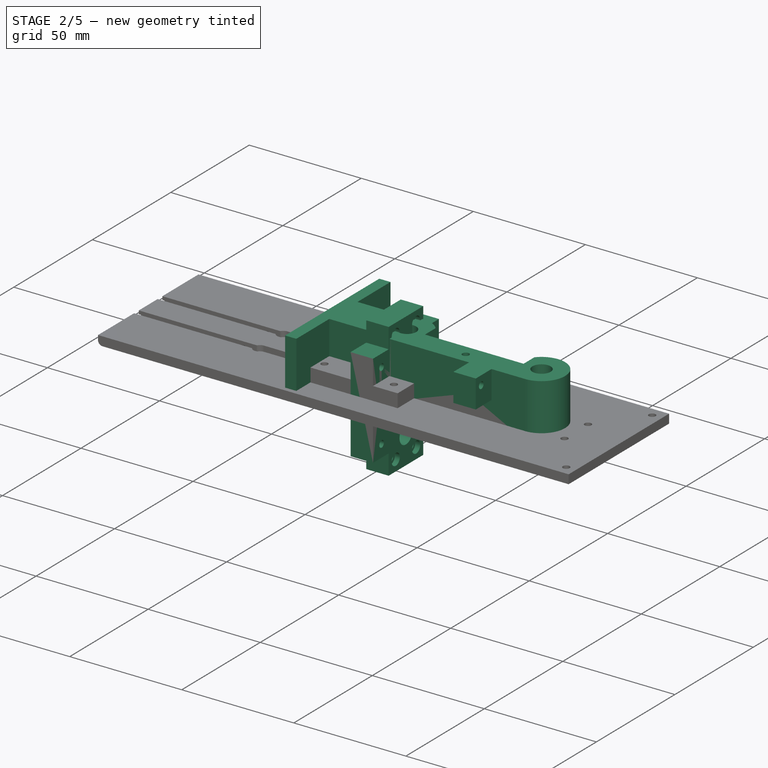
[diagram: stage 2 of 5 — iso view after this stage's code; geometry added in this stage tinted green]
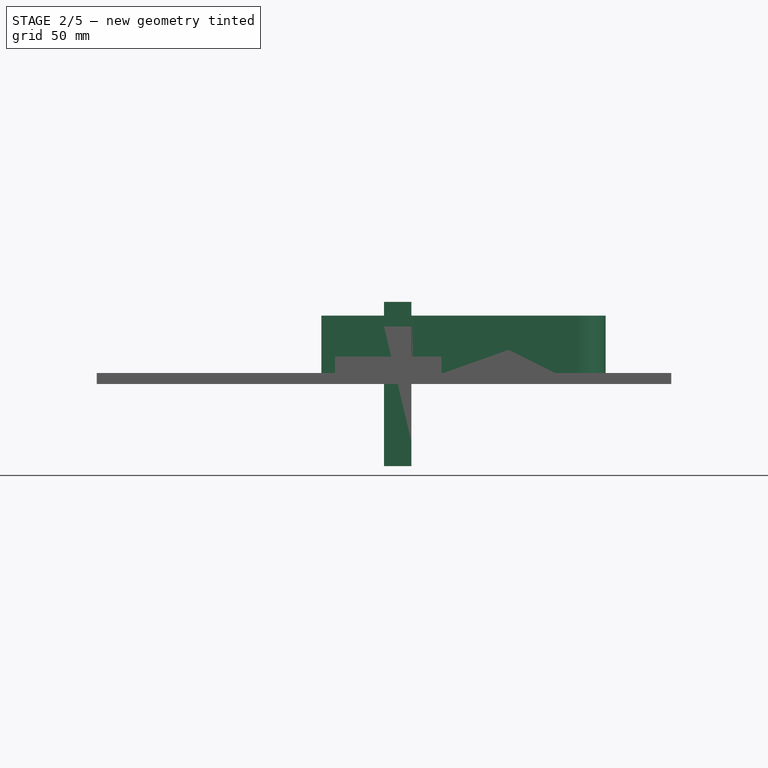
[diagram: stage 2 of 5 — front view after this stage's code; geometry added in this stage tinted green]
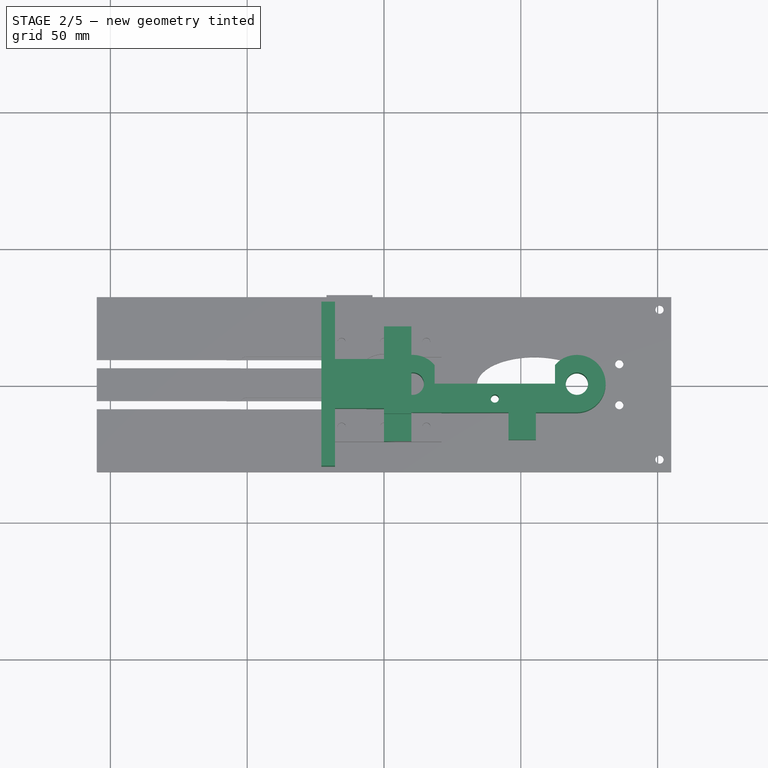
[diagram: stage 2 of 5 — top view after this stage's code; geometry added in this stage tinted green]
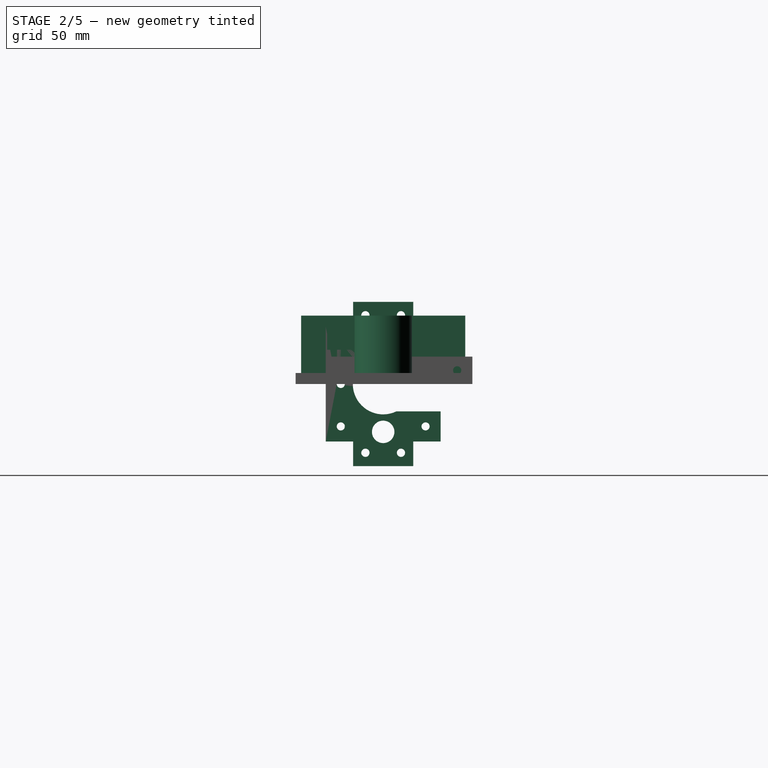
[diagram: stage 2 of 5 — right view after this stage's code; geometry added in this stage tinted green]
FEATURE [Spreadsheet::Sheet] Spreadsheet  label="xstepper"
  cells = A1==31mm; B1=distancia centro a centro; C1= agujeros stepper; A2==2.95mm; B2=diametro; C2=agujero tornillos stepper; D2==5.32mm + 0.2mm; E2=diametro; F2=cabeza tornillo M3 con 0.2 tol; A3==20mm; B3=agujero para polea; C3=Gt2 20 dientes; D3==3mm; E3=profundidad; F3=hueco cabeza tornillos M3; A4==42mm; B4=ancho ; C4=lado stepper; D4==42mm + 2mm; E4=ancho; F4=lado stepper con tolerancia (2 mm); A6==50mm; B6=alto; C6=stepper; A8==10mm; B8=altura; C8=base stepper; A10==22mm; B10=diametro; C10=cilindro protrusion del NEMA 17; D10==A10 + 0.2mm; E10=diametro; F10=cilindro protrusion del NEMA 17 (con tol 0.2 mm); A11==2mm; B11=profundidad; C11=cilindro protrusion del NEMA 17
FEATURE [Spreadsheet::Sheet] Spreadsheet001  label="yvarillas"
  cells = A1==8mm; B1=diametro varillas; C1==A1 + 0.2mm; D1=tolerancia 0.2; A2==15mm; B2=diametro ruleman; C2==A2 + 0.2mm; D2=tolerancia 0.2; A3==25mm; B3=longitud ruleman; A5==42mm + A2 + A6; B5=separacion centro a centro; C5=entre varillas; A6==3mm; B6=espesor; C6=pared rulemanes; A7==A2 + 2 * A6; B7=diametro externo; C7=paredes ruleman lineal; A9=Extras para fijar stepper y varillas; A10=Sketch placement Z; B10==45.51mm; C10=Entre el tope de la estructura y el tope del cuadradito para sujetar el stepper; A11=Distancia ; B11==5.05mm; C11=Entre el agujero para colocar el stepper-holder y el borde de la pieza; A12=Ancho; B12==5.5mm; C12=Slot para tuerca ajusta varillas; A13=Alto; B13==2.4mm; C13=Slot para tuerca ajusta varillas; A14=Profundidad; B14==A3 / 2; C14=Slot para tuerca ajusta varillas
FEATURE [Spreadsheet::Sheet] Spreadsheet002  label="xvarillas"
  cells = A1==12mm; B1=diametro varillas; D1==A1 + 0.3mm; E1=tolerancia 0.3; A2==21mm; B2=diametro ruleman lm12uu; D2==A2 + 0.2mm; E2=tolerancia 0.2; A3==25mm; B3=longitud ruleman; A5==F5 + 30mm; B5=separacion centro a centro; C5=entre varillas; F5==<<yvarillas>>.A5; G5=separacion centro a centro; H5=entre varillas eje Y; A6==3mm; B6=espesor; C6=pared rulemanes; A7==A2 + 2 * A6; B7=diametro externo; C7=paredes ruleman lineal; A9==25 * 2mm; B9=alto pad; C9=carrito Y; A11==12.5mm; B11=separacion centro a borde; C11=entre varilla X y carrito Y; A13==A5 + 2 * A1 + 2mm; B13=alto total; C13=carrito Y; A16=Extras para fijar stepper y varillas; A17=Ancho; B17==5.6mm; C17=Slot para tuerca ajusta varillas; A18=Alto; B18==2.6mm; C18=Slot para tuerca ajusta varillas; B19==2mm
FEATURE [Sketcher::SketchObject] Sketch005  label="slider_y_sketch001"
  FullyConstrained = false
  MapMode = 5
  Support = -> [XY_Plane004]
  expr: Constraints[9] = <<yvarillas>>.A7 / 2
  expr: Constraints[1] = <<yvarillas>>.C1
  expr: Constraints[7] = <<yvarillas>>.A7
  expr: Constraints[10] = <<yvarillas>>.A5
  sketch-geometry (6):
    g0: Circle CenterX=10.5 CenterY=-1e-16 CenterZ=0 NormalX=0 NormalY=0 NormalZ=1 AngleXU=0 Radius=4.1
    g1: Circle CenterX=70.5 CenterY=-3e-16 CenterZ=0 NormalX=0 NormalY=0 NormalZ=1 AngleXU=0 Radius=4.1
    g2: ArcOfCircle CenterX=10.5 CenterY=-1e-16 CenterZ=0 NormalX=0 NormalY=0 NormalZ=1 AngleXU=0 Radius=10.5 StartAngle=0 EndAngle=4.71239
    g3: ArcOfCircle CenterX=70.5 CenterY=-3e-16 CenterZ=0 NormalX=0 NormalY=0 NormalZ=1 AngleXU=0 Radius=10.5 StartAngle=4.71239 EndAngle=9.42478
    g4: LineSegment StartX=10.5 StartY=-10.5 StartZ=0 EndX=70.5 EndY=-10.5 EndZ=0
    g5: LineSegment StartX=21 StartY=3.6e-15 StartZ=0 EndX=60 EndY=3.6e-15 EndZ=0
  constraints (17):
    c: Equal(g0,g1)
    c: Diameter(g0) = 8.2
    c: Coincident(g2,g0)
    c: Coincident(g3,g1)
    c: Coincident(g4,g3)
    c: Coincident(g5,g2)
    c: Coincident(g5,g3)
    c: Diameter(g2) = 21
    c: Tangent(g4,g2) = -1.5708
    c: DistanceY(g3,g3) = 10.5
    c: DistanceX(g0,g1) = 60
    c: DistanceX(g4,g4) = 60
    c: Horizontal(g5)
    c: Horizontal(g4)
    c: Equal(g2,g3)
    c: PointOnObject(g2,g-1)
    c: PointOnObject(g-1,g2)
FEATURE [PartDesign::Pad] Pad004  label="slider_y_pad001"
  AllowMultiFace = false
  Direction = (1,1,1)
  Length = 25
  Length2 = 100
  Profile = -> Sketch005
  Type = 0
  expr: Length = <<yvarillas>>.A3
FEATURE [Sketcher::SketchObject] Sketch010  label="slider_y_sketch002"
  ExternalGeometry = -> [Sketch005]
  FullyConstrained = false
  MapMode = 5
  Support = -> [XY_Plane004]
  expr: Constraints[9] = <<xstepper>>.D4
  expr: Constraints[8] = <<xstepper>>.A6
  sketch-geometry (5):
    g0: LineSegment StartX=18.5 StartY=50 StartZ=0 EndX=62.5 EndY=50 EndZ=0
    g1: LineSegment StartX=62.5 StartY=50 StartZ=0 EndX=62.5 EndY=0 EndZ=0
    g2: LineSegment StartX=62.5 StartY=0 StartZ=0 EndX=18.5 EndY=0 EndZ=0
    g3: LineSegment StartX=18.5 StartY=0 StartZ=0 EndX=18.5 EndY=50 EndZ=0
    g4: GeomPoint X=40.5 Y=-2e-16 Z=0
  constraints (12):
    c: Coincident(g0,g1)
    c: Coincident(g1,g2)
    c: Coincident(g2,g3)
    c: Coincident(g3,g0)
    c: Horizontal(g0)
    c: Horizontal(g2)
    c: Vertical(g1)
    c: Vertical(g3)
    c: DistanceY(g1,g1) = 50
    c: DistanceX(g2,g2) = 44
    c: Symmetric(g2,g1,g4)
    c: Symmetric(g-3,g-4,g4)
FEATURE [PartDesign::Pocket] Pocket003  label="stepper_pocket"
  AllowMultiFace = false
  BaseFeature = -> Pad004
  Length = 25
  Length2 = 100
  Profile = -> Sketch010
  Reversed = true
  Type = 0
  expr: Length = <<yvarillas>>.A3
FEATURE [Sketcher::SketchObject] Sketch017  label="piecito"
  ExternalGeometry = -> [Sketch005]
  FullyConstrained = true
  MapMode = 5
  Support = -> [XY_Plane004]
  sketch-geometry (9):
    g0: LineSegment StartX=5.09167 StartY=9 StartZ=0 EndX=-17.9083 EndY=9 EndZ=0
    g1: LineSegment StartX=-17.9083 StartY=-9 StartZ=0 EndX=5.09167 EndY=-9 EndZ=0
    g2: LineSegment StartX=5.09167 StartY=-9 StartZ=0 EndX=5.09167 EndY=9 EndZ=0
    g3: ArcOfCircle CenterX=10.5 CenterY=-1e-16 CenterZ=0 NormalX=0 NormalY=0 NormalZ=1 AngleXU=0 Radius=10.5 StartAngle=2.1119 EndAngle=4.17129
    g4: LineSegment StartX=-22.9083 StartY=30 StartZ=0 EndX=-17.9083 EndY=30 EndZ=0
    g5: LineSegment StartX=-17.9083 StartY=-30 StartZ=0 EndX=-22.9083 EndY=-30 EndZ=0
    g6: LineSegment StartX=-22.9083 StartY=-30 StartZ=0 EndX=-22.9083 EndY=30 EndZ=0
    g7: LineSegment StartX=-17.9083 StartY=30 StartZ=0 EndX=-17.9083 EndY=9 EndZ=0
    g8: LineSegment StartX=-17.9083 StartY=-9 StartZ=0 EndX=-17.9083 EndY=-30 EndZ=0
  constraints (28):
    c: Coincident(g1,g2)
    c: Coincident(g2,g0)
    c: Horizontal(g0)
    c: Horizontal(g1)
    c: PointOnObject(g0,g-3)
    c: Symmetric(g0,g1,g-1)
    c: Coincident(g3,g-3)
    c: Coincident(g3,g0)
    c: Coincident(g3,g1)
    c: DistanceY(g1,g0) = 18
    c: DistanceX(g1,g1) = 23
    c: Coincident(g5,g6)
    c: Coincident(g6,g4)
    c: Horizontal(g4)
    c: Horizontal(g5)
    c: Vertical(g6)
    c: Symmetric(g4,g5,g-1)
    c: DistanceX(g4,g4) = 5
    c: DistanceY(g6,g6) = 60
    c: Coincident(g7,g4)
    c: Coincident(g7,g0)
    c: Vertical(g7)
    c: Coincident(g8,g1)
    c: Coincident(g8,g5)
    c: Vertical(g8)
    c: DistanceY(g4) = 30
    c: DistanceY(g7,g7) = 21
    c: DistanceY(g8,g8) = 21
FEATURE [PartDesign::Pad] Pad008  label="patita"
  BaseFeature = -> Pocket003
  Direction = (1,1,1)
  Length = 25
  Length2 = 100
  Profile = -> Sketch017
  Type = 0
FEATURE [Sketcher::SketchObject] Sketch018
  AttachmentOffset = pos=(0,0,45.51) rot=(0,0,1;0rad)
  ExternalGeometry = -> [Sketch005]
  FullyConstrained = false
  MapMode = 5
  Placement = pos=(45.51,-1.01e-14,1.01e-14) rot=(0.57735,0.57735,0.57735;2.0944rad)
  Support = -> [YZ_Plane004]
  expr: Constraints[16] = <<yvarillas>>.A3
  expr: .AttachmentOffset.Base.z = <<yvarillas>>.B10
  sketch-geometry (6):
    g0: LineSegment StartX=-10.5 StartY=-1.42e-14 StartZ=0 EndX=-10.5 EndY=12.5 EndZ=0
    g1: LineSegment StartX=-10.5 StartY=12.5 StartZ=0 EndX=-20.5 EndY=12.5 EndZ=0
    g2: LineSegment StartX=-20.5 StartY=12.5 StartZ=0 EndX=-20.5 EndY=25 EndZ=0
    g3: LineSegment StartX=-20.5 StartY=25 StartZ=0 EndX=-10.5 EndY=25 EndZ=0
    g4: LineSegment StartX=-10.5 StartY=25 StartZ=0 EndX=-10.5 EndY=12.5 EndZ=0
    g5: Circle CenterX=-17 CenterY=20.95 CenterZ=0 NormalX=0 NormalY=0 NormalZ=1 AngleXU=0 Radius=1.5
  constraints (17):
    c: Coincident(g0,g-3)
    c: Vertical(g0)
    c: Coincident(g1,g2)
    c: Coincident(g2,g3)
    c: Coincident(g3,g4)
    c: Coincident(g4,g1)
    c: Horizontal(g1)
    c: Vertical(g4)
    c: Coincident(g1,g0)
    c: Equal(g4,g0)
    c: DistanceX(g3,g3) = 10
    c: Diameter(g5) = 3
    c: DistanceX(g5,g0) = 6.5
    c: DistanceY(g0,g5) = 8.45
    c: Vertical(g2)
    c: Horizontal(g3)
    c: DistanceY(g0,g3) = 25
FEATURE [PartDesign::Pad] Pad009  label="stepper_holder_mount_thingy"
  BaseFeature = -> Pad008
  Direction = (1,1,1)
  Length = 10
  Length2 = 100
  Profile = -> Sketch018
  Type = 0
FEATURE [Sketcher::SketchObject] Sketch019
  ExternalGeometry = -> [Sketch005]
  FullyConstrained = false
  MapMode = 5
  Support = -> [XY_Plane004]
  expr: Constraints[9] = <<yvarillas>>.B11
  sketch-geometry (4):
    g0: Circle CenterX=40.5 CenterY=-5.45 CenterZ=0 NormalX=0 NormalY=0 NormalZ=1 AngleXU=0 Radius=1.5
    g1: LineSegment StartX=10.5 StartY=-1e-16 StartZ=0 EndX=40.5 EndY=-5.45 EndZ=0
    g2: LineSegment StartX=40.5 StartY=-5.45 StartZ=0 EndX=70.5 EndY=0 EndZ=0
    g3: LineSegment StartX=40.5 StartY=-5.45 StartZ=0 EndX=40.5 EndY=-10.5 EndZ=0
  constraints (10):
    c: Coincident(g1,g-3)
    c: Coincident(g1,g0)
    c: Coincident(g2,g0)
    c: Coincident(g2,g-4)
    c: Equal(g2,g1)
    c: Diameter(g0) = 3
    c: Coincident(g3,g0)
    c: PointOnObject(g3,g-5)
    c: Vertical(g3)
    c: DistanceY(g3,g3) = 5.05
FEATURE [PartDesign::Pocket] Pocket009  label="stepper_holder_screw_hole"
  BaseFeature = -> Pad009
  Length = 5
  Length2 = 100
  Midplane = true
  Profile = -> Sketch019
  Type = 1
FEATURE [PartDesign::Body] Body004  label="base varillas Y"
  Group = -> [Sketch005,Pad004,Sketch010,Pocket003,Sketch017,Pad008,Sketch018,Pad009,Sketch019,Pocket009,Sketch020,Pocket010,Sketch021,Pocket011,Sketch043,Pocket027,Fillet]
  Origin = -> Origin004
  Placement = pos=(0,-36,0) rot=(0,0,1;0rad)
  Tip = -> Fillet
FEATURE [Sketcher::SketchObject] Sketch045  label="base_stepper_sketch001"
  FullyConstrained = true
  MapMode = 5
  Placement = pos=(0,0,0) rot=(0.57735,0.57735,0.57735;2.0944rad)
  Support = -> [YZ_Plane008]
  expr: Constraints[14] = <<xstepper>>.A1
  expr: Constraints[11] = <<xstepper>>.A2
  expr: Constraints[51] = <<xstepper>>.A3
  expr: Constraints[5] = <<xstepper>>.A4
  expr: Constraints[87] = <<zvarillas>>.var_diam_tol
  expr: Constraints[88] = <<zvarillas>>.sep_var_z
  expr: Constraints[99] = <<zvarillas>>.offset_fijacion_stepperZcarritoX
  sketch-geometry (38):
    g0: LineSegment StartX=-21 StartY=21 StartZ=0 EndX=21 EndY=21 EndZ=0
    g1: LineSegment StartX=21 StartY=-21 StartZ=0 EndX=-21 EndY=-21 EndZ=0
    g2: LineSegment StartX=-21 StartY=-21 StartZ=0 EndX=-21 EndY=21 EndZ=0
    g3: LineSegment StartX=-21 StartY=-21 StartZ=0 EndX=21 EndY=21 EndZ=0
    g4: LineSegment StartX=21 StartY=-21 StartZ=0 EndX=-21 EndY=21 EndZ=0
    g5: GeomPoint X=0 Y=0 Z=0
    g6: Circle CenterX=-15.5 CenterY=15.5 CenterZ=0 NormalX=0 NormalY=0 NormalZ=1 AngleXU=0 Radius=1.475
    g7: Circle CenterX=15.5 CenterY=15.5 CenterZ=0 NormalX=0 NormalY=0 NormalZ=1 AngleXU=0 Radius=1.475
    g8: LineSegment StartX=-15.5 StartY=15.5 StartZ=0 EndX=15.5 EndY=15.5 EndZ=0
    g9: Circle CenterX=-15.5 CenterY=-15.5 CenterZ=0 NormalX=0 NormalY=0 NormalZ=1 AngleXU=0 Radius=1.475
    g10: LineSegment StartX=-15.5 StartY=15.5 StartZ=0 EndX=-15.5 EndY=-15.5 EndZ=0
    g11: Circle CenterX=15.5 CenterY=-15.5 CenterZ=0 NormalX=0 NormalY=0 NormalZ=1 AngleXU=0 Radius=1.475
    g12: LineSegment StartX=-15.5 StartY=-15.5 StartZ=0 EndX=15.5 EndY=-15.5 EndZ=0
    g13: Circle CenterX=-15.5 CenterY=0 CenterZ=0 NormalX=0 NormalY=0 NormalZ=1 AngleXU=0 Radius=1.475
    g14: Circle CenterX=0 CenterY=15.5 CenterZ=0 NormalX=0 NormalY=0 NormalZ=1 AngleXU=0 Radius=1.475
    g15: Circle CenterX=0 CenterY=-15.5 CenterZ=0 NormalX=0 NormalY=0 NormalZ=1 AngleXU=0 Radius=1.475
    g16: ArcOfCircle CenterX=0 CenterY=0 CenterZ=0 NormalX=0 NormalY=0 NormalZ=1 AngleXU=0 Radius=10 StartAngle=1.5708 EndAngle=4.71239
    g17: LineSegment StartX=21 StartY=21 StartZ=0 EndX=21 EndY=10 EndZ=0
    g18: LineSegment StartX=21 StartY=10 StartZ=0 EndX=0 EndY=10 EndZ=0
    g19: LineSegment StartX=21 StartY=-21 StartZ=0 EndX=21 EndY=-10 EndZ=0
    g20: LineSegment StartX=21 StartY=-10 StartZ=0 EndX=-3.6e-15 EndY=-10 EndZ=0
    g21: LineSegment StartX=21 StartY=10 StartZ=0 EndX=21 EndY=-10 EndZ=0
    g22: LineSegment StartX=-21 StartY=21 StartZ=0 EndX=-11 EndY=21 EndZ=0
    g23: LineSegment StartX=-11 StartY=21 StartZ=0 EndX=-11 EndY=30 EndZ=0
    g24: LineSegment StartX=-11 StartY=30 StartZ=0 EndX=11 EndY=30 EndZ=0
    g25: LineSegment StartX=11 StartY=30 StartZ=0 EndX=11 EndY=21 EndZ=0
    g26: LineSegment StartX=11 StartY=21 StartZ=0 EndX=21 EndY=21 EndZ=0
    g27: LineSegment StartX=-21 StartY=-21 StartZ=0 EndX=-11 EndY=-21 EndZ=0
    g28: LineSegment StartX=-11 StartY=-21 StartZ=0 EndX=-11 EndY=-30 EndZ=0
    g29: LineSegment StartX=-11 StartY=-30 StartZ=0 EndX=11 EndY=-30 EndZ=0
    g30: LineSegment StartX=11 StartY=-30 StartZ=0 EndX=11 EndY=-21 EndZ=0
    g31: LineSegment StartX=11 StartY=-21 StartZ=0 EndX=21 EndY=-21 EndZ=0
    g32: Circle CenterX=0 CenterY=17.5 CenterZ=0 NormalX=0 NormalY=0 NormalZ=1 AngleXU=0 Radius=4.1
    g33: Circle CenterX=0 CenterY=-17.5 CenterZ=0 NormalX=0 NormalY=0 NormalZ=1 AngleXU=0 Radius=4.1
    g34: Circle CenterX=-6.5 CenterY=25.14 CenterZ=0 NormalX=0 NormalY=0 NormalZ=1 AngleXU=0 Radius=1.5
    g35: Circle CenterX=6.5 CenterY=25.14 CenterZ=0 NormalX=0 NormalY=0 NormalZ=1 AngleXU=0 Radius=1.5
    g36: Circle CenterX=-6.5 CenterY=-25.14 CenterZ=0 NormalX=0 NormalY=0 NormalZ=1 AngleXU=0 Radius=1.5
    g37: Circle CenterX=6.5 CenterY=-25.14 CenterZ=0 NormalX=0 NormalY=0 NormalZ=1 AngleXU=0 Radius=1.5
  constraints (101):
    c: Coincident(g1,g2)
    c: Coincident(g2,g0)
    c: Horizontal(g0)
    c: Horizontal(g1)
    c: Vertical(g2)
    c: DistanceX(g1,g1) = 42
    c: Coincident(g3,g1)
    c: Coincident(g3,g0)
    c: Coincident(g4,g0)
    c: PointOnObject(g5,g3)
    c: PointOnObject(g5,g4)
    c: Diameter(g6) = 2.95
    c: Coincident(g6,g8)
    c: Coincident(g7,g8)
    c: Distance(g8) = 31
    c: Coincident(g6,g10)
    c: Coincident(g9,g10)
    c: Equal(g10,g8)
    c: Perpendicular(g10,g8)
    c: Coincident(g9,g12)
    c: Coincident(g11,g12)
    c: Equal(g8,g12)
    c: Parallel(g12,g8)
    c: Horizontal(g8)
    c: PointOnObject(g6,g4)
    c: PointOnObject(g7,g3)
    c: PointOnObject(g13,g10)
    c: PointOnObject(g14,g8)
    c: PointOnObject(g15,g12)
    c: PointOnObject(g15,g-2)
    c: PointOnObject(g14,g-2)
    c: PointOnObject(g13,g-1)
    c: Equal(g13,g14)
    c: Equal(g14,g15)
    c: Equal(g15,g7)
    c: Equal(g15,g9)
    c: Equal(g9,g11)
    c: Equal(g7,g6)
    c: Coincident(g16,g5)
    c: PointOnObject(g16,g-2)
    c: PointOnObject(g16,g-2)
    c: Coincident(g0,g17)
    c: Vertical(g17)
    c: Coincident(g17,g18)
    c: Coincident(g18,g16)
    c: Horizontal(g18)
    c: Coincident(g1,g19)
    c: Vertical(g19)
    c: Coincident(g19,g20)
    c: Coincident(g20,g16)
    c: Horizontal(g20)
    c: Diameter(g16) = 20
    c: Coincident(g5,g-1)
    c: Coincident(g21,g19)
    c: Coincident(g21,g17)
    c: Equal(g17,g19)
    c: Coincident(g4,g1)
    c: PointOnObject(g9,g3)
    c: Coincident(g2,g22)
    c: PointOnObject(g22,g0)
    c: Coincident(g22,g23)
    c: Vertical(g23)
    c: Coincident(g23,g24)
    c: Horizontal(g24)
    c: Coincident(g24,g25)
    c: PointOnObject(g25,g0)
    c: Vertical(g25)
    c: Coincident(g25,g26)
    c: Coincident(g26,g17)
    c: Coincident(g2,g27)
    c: PointOnObject(g27,g1)
    c: Coincident(g27,g28)
    c: Vertical(g28)
    c: Coincident(g28,g29)
    c: Horizontal(g29)
    c: Coincident(g29,g30)
    c: PointOnObject(g30,g1)
    c: Coincident(g30,g31)
    c: Coincident(g31,g19)
    c: Vertical(g30)
    c: Vertical(g27,g22)
    c: Equal(g29,g24)
    c: Equal(g25,g30)
    c: Equal(g22,g26)
    c: DistanceX(g24,g24) = 22
    c: PointOnObject(g32,g-2)
    c: Equal(g33,g32)
    c: Diameter(g32) = 8.2
    c: DistanceY(g33,g32) = 35
    c: Symmetric(g33,g32,g5)
    c: DistanceY(g28,g23) = 60
    c: Symmetric(g36,g34,g-1)
    c: Symmetric(g35,g37,g-1)
    c: Symmetric(g34,g35,g-2)
    c: Equal(g37,g36)
    c: Equal(g36,g34)
    c: Equal(g34,g35)
    c: Diameter(g36) = 3
    c: DistanceX(g34,g35) = 13
    c: DistanceY(g34,g23) = 4.86
    c: DistanceY(g36,g34) = 50.28
FEATURE [Sketcher::SketchObject] Sketch046
  AttachmentOffset = pos=(0,0,10) rot=(0,0,1;0rad)
  ExternalGeometry = -> [Sketch045]
  FullyConstrained = true
  MapMode = 5
  Placement = pos=(10,-2.2e-15,2.2e-15) rot=(0.57735,0.57735,0.57735;2.0944rad)
  Support = -> [YZ_Plane008]
  expr: Constraints[4] = <<zvarillas>>.D9 + 0.2mm
  sketch-geometry (4):
    g0: Circle CenterX=-6.5 CenterY=25.14 CenterZ=0 NormalX=0 NormalY=0 NormalZ=1 AngleXU=0 Radius=2.6
    g1: Circle CenterX=6.5 CenterY=25.14 CenterZ=0 NormalX=0 NormalY=0 NormalZ=1 AngleXU=0 Radius=2.6
    g2: Circle CenterX=-6.5 CenterY=-25.14 CenterZ=0 NormalX=0 NormalY=0 NormalZ=1 AngleXU=0 Radius=2.6
    g3: Circle CenterX=6.5 CenterY=-25.14 CenterZ=0 NormalX=0 NormalY=0 NormalZ=1 AngleXU=0 Radius=2.6
  constraints (8):
    c: Coincident(g0,g-3)
    c: Coincident(g1,g-4)
    c: Coincident(g2,g-6)
    c: Coincident(g3,g-5)
    c: Diameter(g2) = 5.2
    c: Equal(g2,g3)
    c: Equal(g2,g1)
    c: Equal(g2,g0)
FEATURE [Sketcher::SketchObject] Sketch047
  ExternalGeometry = -> [Sketch045]
  FullyConstrained = true
  MapMode = 5
  Placement = pos=(0,0,0) rot=(0.57735,0.57735,0.57735;2.0944rad)
  Support = -> [YZ_Plane008]
  sketch-geometry (1):
    g0: Circle CenterX=0 CenterY=0 CenterZ=0 NormalX=0 NormalY=0 NormalZ=1 AngleXU=0 Radius=11.1
  constraints (2):
    c: Coincident(g0,g-1)
    c: Diameter(g0) = 22.2
FEATURE [PartDesign::Pad] Pad013
  Direction = (1,1,1)
  Length = 10
  Length2 = 100
  Placement = pos=(0,0,0) rot=(0.57735,0.57735,0.57735;2.0944rad)
  Profile = -> Sketch045
  Type = 0
FEATURE [PartDesign::Pocket] Pocket028
  BaseFeature = -> Pad013
  Length = 2
  Length2 = 100
  Placement = pos=(0,0,0) rot=(0.57735,0.57735,0.57735;2.0944rad)
  Profile = -> Sketch047
  Reversed = true
  Type = 1
FEATURE [PartDesign::Pocket] Pocket029
  BaseFeature = -> Pocket028
  Length = 2.2
  Length2 = 100
  Placement = pos=(0,0,0) rot=(0.57735,0.57735,0.57735;2.0944rad)
  Profile = -> Sketch046
  Type = 0
FEATURE [Sketcher::SketchObject] Sketch048
  ExternalGeometry = -> [Sketch045]
  FullyConstrained = true
  MapMode = 5
  Placement = pos=(0,0,0) rot=(0.57735,0.57735,0.57735;2.0944rad)
  Support = -> [YZ_Plane008]
  expr: Constraints[5] = <<zvarillas>>.D9 + 0.2mm
  sketch-geometry (5):
    g0: Circle CenterX=-15.5 CenterY=15.5 CenterZ=0 NormalX=0 NormalY=0 NormalZ=1 AngleXU=0 Radius=2.6
    g1: Circle CenterX=-15.5 CenterY=0 CenterZ=0 NormalX=0 NormalY=0 NormalZ=1 AngleXU=0 Radius=2.6
    g2: Circle CenterX=-15.5 CenterY=-15.5 CenterZ=0 NormalX=0 NormalY=0 NormalZ=1 AngleXU=0 Radius=2.6
    g3: Circle CenterX=15.5 CenterY=-15.5 CenterZ=0 NormalX=0 NormalY=0 NormalZ=1 AngleXU=0 Radius=2.6
    g4: Circle CenterX=15.5 CenterY=15.5 CenterZ=0 NormalX=0 NormalY=0 NormalZ=1 AngleXU=0 Radius=2.6
  constraints (7):
    c: Coincident(g0,g-3)
    c: Coincident(g1,g-4)
    c: Coincident(g2,g-5)
    c: Coincident(g3,g-6)
    c: Coincident(g4,g-7)
    c: Diameter(g4) = 5.2
    c: Equal(g4, g0-g3) x4
FEATURE [PartDesign::Pocket] Pocket030
  BaseFeature = -> Pocket029
  Length = 2.2
  Length2 = 100
  Placement = pos=(0,0,0) rot=(0.57735,0.57735,0.57735;2.0944rad)
  Profile = -> Sketch048
  Reversed = true
  Type = 0
FEATURE [PartDesign::Pocket] Pocket032  label="pad_huecos_tornillos_stepper001"
  AllowMultiFace = false
  BaseFeature = -> Pad015
  Length = 3
  Length2 = 100
  Profile = -> Sketch051
  Reversed = true
  Type = 0
  expr: Length = <<xstepper001>>.D3
FEATURE [Sketcher::SketchObject] Sketch053
  FullyConstrained = false
  MapMode = 5
  Placement = pos=(0,0,10) rot=(0,0,1;0rad)
  Support = -> [Pocket032]
  expr: Constraints[1] = <<xstepper001>>.D10
  sketch-geometry (1):
    g0: Circle CenterX=0 CenterY=0 CenterZ=0 NormalX=0 NormalY=0 NormalZ=1 AngleXU=0 Radius=11.1
  constraints (2):
    c: Coincident(g0,g-1)
    c: Diameter(g0) = 22.2
FEATURE [PartDesign::Pocket] Pocket033
  AllowMultiFace = false
  BaseFeature = -> Pocket032
  Length = 7
  Length2 = 100
  Profile = -> Sketch053
  Type = 0
  expr: Length = <<xstepper001>>.A11
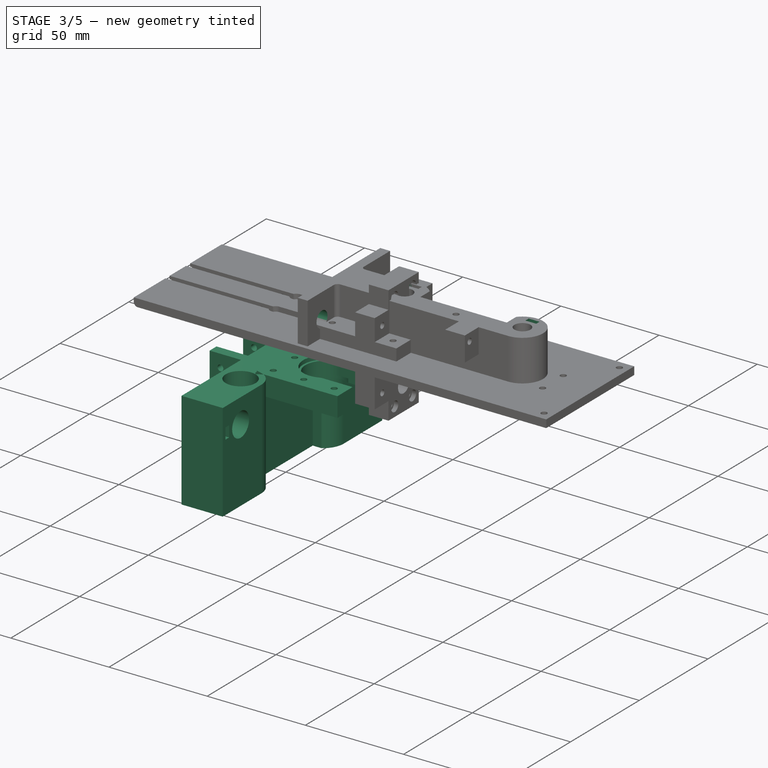
[diagram: stage 3 of 5 — iso view after this stage's code; geometry added in this stage tinted green]
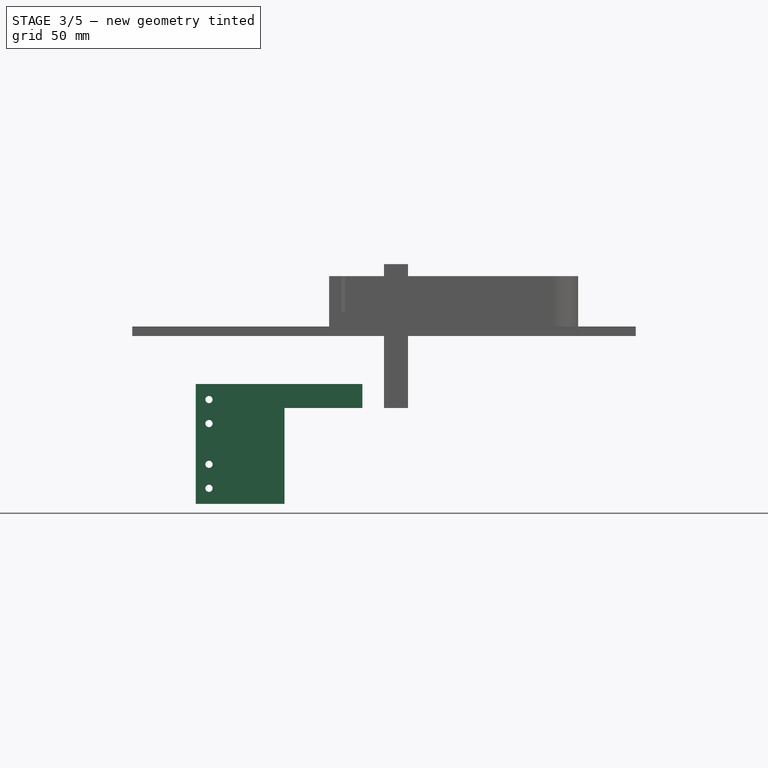
[diagram: stage 3 of 5 — front view after this stage's code; geometry added in this stage tinted green]
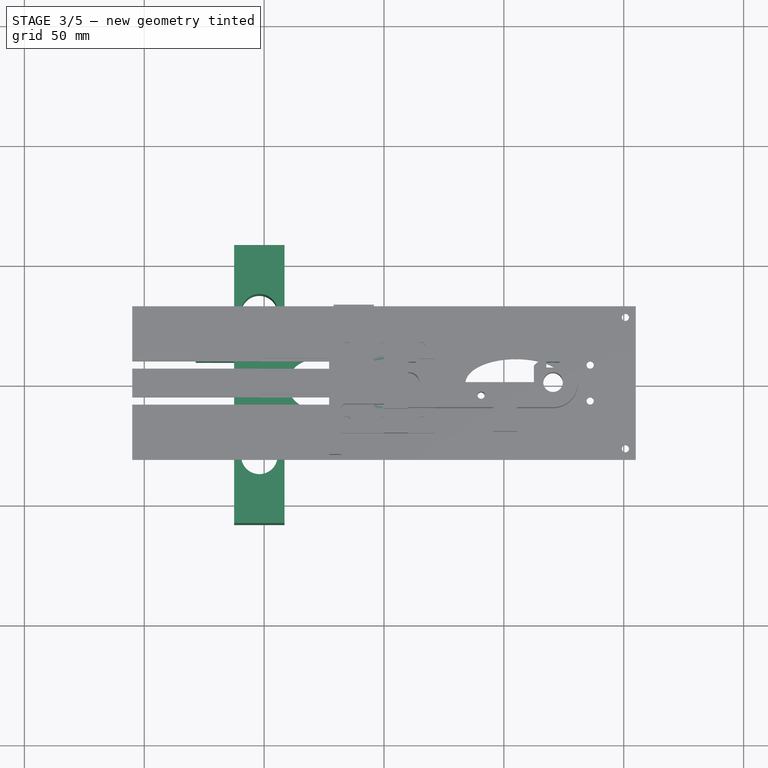
[diagram: stage 3 of 5 — top view after this stage's code; geometry added in this stage tinted green]
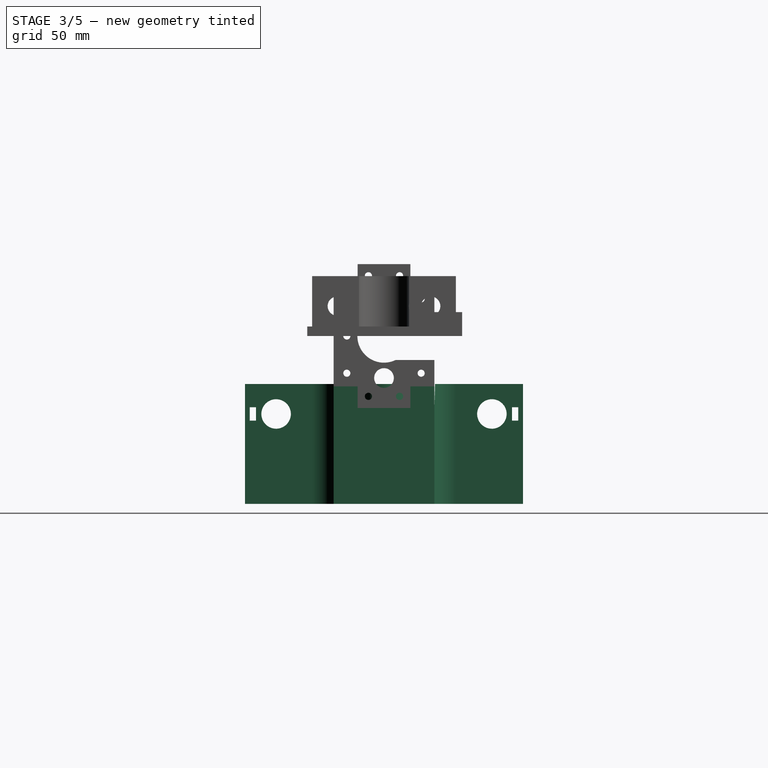
[diagram: stage 3 of 5 — right view after this stage's code; geometry added in this stage tinted green]
FEATURE [Sketcher::SketchObject] Sketch004  label="base_stepper_sketch"
  FullyConstrained = true
  MapMode = 5
  Support = -> [XY_Plane003]
  expr: Constraints[5] = <<xstepper>>.A4
  expr: Constraints[51] = <<xstepper>>.A3
  expr: Constraints[11] = <<xstepper>>.A2
  expr: Constraints[14] = <<xstepper>>.A1
  sketch-geometry (22):
    g0: LineSegment StartX=-21 StartY=21 StartZ=0 EndX=21 EndY=21 EndZ=0
    g1: LineSegment StartX=21 StartY=-21 StartZ=0 EndX=-21 EndY=-21 EndZ=0
    g2: LineSegment StartX=-21 StartY=-21 StartZ=0 EndX=-21 EndY=21 EndZ=0
    g3: LineSegment StartX=-21 StartY=-21 StartZ=0 EndX=21 EndY=21 EndZ=0
    g4: LineSegment StartX=21 StartY=-21 StartZ=0 EndX=-21 EndY=21 EndZ=0
    g5: GeomPoint X=0 Y=0 Z=0
    g6: Circle CenterX=-15.5 CenterY=15.5 CenterZ=0 NormalX=0 NormalY=0 NormalZ=1 AngleXU=0 Radius=1.475
    g7: Circle CenterX=15.5 CenterY=15.5 CenterZ=0 NormalX=0 NormalY=0 NormalZ=1 AngleXU=0 Radius=1.475
    g8: LineSegment StartX=-15.5 StartY=15.5 StartZ=0 EndX=15.5 EndY=15.5 EndZ=0
    g9: Circle CenterX=-15.5 CenterY=-15.5 CenterZ=0 NormalX=0 NormalY=0 NormalZ=1 AngleXU=0 Radius=1.475
    g10: LineSegment StartX=-15.5 StartY=15.5 StartZ=0 EndX=-15.5 EndY=-15.5 EndZ=0
    g11: Circle CenterX=15.5 CenterY=-15.5 CenterZ=0 NormalX=0 NormalY=0 NormalZ=1 AngleXU=0 Radius=1.475
    g12: LineSegment StartX=-15.5 StartY=-15.5 StartZ=0 EndX=15.5 EndY=-15.5 EndZ=0
    g13: Circle CenterX=-15.5 CenterY=0 CenterZ=0 NormalX=0 NormalY=0 NormalZ=1 AngleXU=0 Radius=1.475
    g14: Circle CenterX=0 CenterY=15.5 CenterZ=0 NormalX=0 NormalY=0 NormalZ=1 AngleXU=0 Radius=1.475
    g15: Circle CenterX=0 CenterY=-15.5 CenterZ=0 NormalX=0 NormalY=0 NormalZ=1 AngleXU=0 Radius=1.475
    g16: ArcOfCircle CenterX=0 CenterY=0 CenterZ=0 NormalX=0 NormalY=0 NormalZ=1 AngleXU=0 Radius=10 StartAngle=1.5708 EndAngle=4.71239
    g17: LineSegment StartX=21 StartY=21 StartZ=0 EndX=21 EndY=10 EndZ=0
    g18: LineSegment StartX=21 StartY=10 StartZ=0 EndX=0 EndY=10 EndZ=0
    g19: LineSegment StartX=21 StartY=-21 StartZ=0 EndX=21 EndY=-10 EndZ=0
    g20: LineSegment StartX=21 StartY=-10 StartZ=0 EndX=-3.6e-15 EndY=-10 EndZ=0
    g21: LineSegment StartX=21 StartY=10 StartZ=0 EndX=21 EndY=-10 EndZ=0
  constraints (58):
    c: Coincident(g1,g2)
    c: Coincident(g2,g0)
    c: Horizontal(g0)
    c: Horizontal(g1)
    c: Vertical(g2)
    c: DistanceX(g1,g1) = 42
    c: Coincident(g3,g1)
    c: Coincident(g3,g0)
    c: Coincident(g4,g0)
    c: PointOnObject(g5,g3)
    c: PointOnObject(g5,g4)
    c: Diameter(g6) = 2.95
    c: Coincident(g6,g8)
    c: Coincident(g7,g8)
    c: Distance(g8) = 31
    c: Coincident(g6,g10)
    c: Coincident(g9,g10)
    c: Equal(g10,g8)
    c: Perpendicular(g10,g8)
    c: Coincident(g9,g12)
    c: Coincident(g11,g12)
    c: Equal(g8,g12)
    c: Parallel(g12,g8)
    c: Horizontal(g8)
    c: PointOnObject(g6,g4)
    c: PointOnObject(g7,g3)
    c: PointOnObject(g13,g10)
    c: PointOnObject(g14,g8)
    c: PointOnObject(g15,g12)
    c: PointOnObject(g15,g-2)
    c: PointOnObject(g14,g-2)
    c: PointOnObject(g13,g-1)
    c: Equal(g13,g14)
    c: Equal(g14,g15)
    c: Equal(g15,g7)
    c: Equal(g15,g9)
    c: Equal(g9,g11)
    c: Equal(g7,g6)
    c: Coincident(g16,g5)
    c: PointOnObject(g16,g-2)
    c: PointOnObject(g16,g-2)
    c: Coincident(g0,g17)
    c: Vertical(g17)
    c: Coincident(g17,g18)
    c: Coincident(g18,g16)
    c: Horizontal(g18)
    c: Coincident(g1,g19)
    c: Vertical(g19)
    c: Coincident(g19,g20)
    c: Coincident(g20,g16)
    c: Horizontal(g20)
    c: Diameter(g16) = 20
    c: Coincident(g5,g-1)
    c: Coincident(g21,g19)
    c: Coincident(g21,g17)
    c: Equal(g17,g19)
    c: Coincident(g4,g1)
    c: PointOnObject(g9,g3)
FEATURE [PartDesign::Pad] Pad003  label="base_stepper_pad"
  AllowMultiFace = false
  Direction = (1,1,1)
  Length = 10
  Length2 = 100
  Profile = -> Sketch004
  Type = 0
  expr: Length = <<xstepper>>.A8
FEATURE [Sketcher::SketchObject] Sketch009  label="huecos_tornillos_stepper"
  FullyConstrained = true
  MapMode = 5
  Support = -> [XY_Plane003]
  expr: Constraints[5] = <<xstepper>>.A4
  expr: Constraints[51] = <<xstepper>>.A3
  expr: Constraints[11] = <<xstepper>>.D2
  expr: Constraints[14] = <<xstepper>>.A1
  sketch-geometry (22):
    g0: LineSegment StartX=-21 StartY=21 StartZ=0 EndX=21 EndY=21 EndZ=0
    g1: LineSegment StartX=21 StartY=-21 StartZ=0 EndX=-21 EndY=-21 EndZ=0
    g2: LineSegment StartX=-21 StartY=-21 StartZ=0 EndX=-21 EndY=21 EndZ=0
    g3: LineSegment StartX=-21 StartY=-21 StartZ=0 EndX=21 EndY=21 EndZ=0
    g4: LineSegment StartX=21 StartY=-21 StartZ=0 EndX=-21 EndY=21 EndZ=0
    g5: GeomPoint X=0 Y=0 Z=0
    g6: Circle CenterX=-15.5 CenterY=15.5 CenterZ=0 NormalX=0 NormalY=0 NormalZ=1 AngleXU=0 Radius=2.76
    g7: Circle CenterX=15.5 CenterY=15.5 CenterZ=0 NormalX=0 NormalY=0 NormalZ=1 AngleXU=0 Radius=2.76
    g8: LineSegment StartX=-15.5 StartY=15.5 StartZ=0 EndX=15.5 EndY=15.5 EndZ=0
    g9: Circle CenterX=-15.5 CenterY=-15.5 CenterZ=0 NormalX=0 NormalY=0 NormalZ=1 AngleXU=0 Radius=2.76
    g10: LineSegment StartX=-15.5 StartY=15.5 StartZ=0 EndX=-15.5 EndY=-15.5 EndZ=0
    g11: Circle CenterX=15.5 CenterY=-15.5 CenterZ=0 NormalX=0 NormalY=0 NormalZ=1 AngleXU=0 Radius=2.76
    g12: LineSegment StartX=-15.5 StartY=-15.5 StartZ=0 EndX=15.5 EndY=-15.5 EndZ=0
    g13: Circle CenterX=-15.5 CenterY=0 CenterZ=0 NormalX=0 NormalY=0 NormalZ=1 AngleXU=0 Radius=2.76
    g14: Circle CenterX=0 CenterY=15.5 CenterZ=0 NormalX=0 NormalY=0 NormalZ=1 AngleXU=0 Radius=2.76
    g15: Circle CenterX=0 CenterY=-15.5 CenterZ=0 NormalX=0 NormalY=0 NormalZ=1 AngleXU=0 Radius=2.76
    g16: ArcOfCircle CenterX=0 CenterY=0 CenterZ=0 NormalX=0 NormalY=0 NormalZ=1 AngleXU=0 Radius=10 StartAngle=1.5708 EndAngle=4.71239
    g17: LineSegment StartX=21 StartY=21 StartZ=0 EndX=21 EndY=10 EndZ=0
    g18: LineSegment StartX=21 StartY=10 StartZ=0 EndX=0 EndY=10 EndZ=0
    g19: LineSegment StartX=21 StartY=-21 StartZ=0 EndX=21 EndY=-10 EndZ=0
    g20: LineSegment StartX=21 StartY=-10 StartZ=0 EndX=-3.6e-15 EndY=-10 EndZ=0
    g21: LineSegment StartX=21 StartY=10 StartZ=0 EndX=21 EndY=-10 EndZ=0
  constraints (58):
    c: Coincident(g1,g2)
    c: Coincident(g2,g0)
    c: Horizontal(g0)
    c: Horizontal(g1)
    c: Vertical(g2)
    c: DistanceX(g1,g1) = 42
    c: Coincident(g3,g1)
    c: Coincident(g3,g0)
    c: Coincident(g4,g0)
    c: PointOnObject(g5,g3)
    c: PointOnObject(g5,g4)
    c: Diameter(g6) = 5.52
    c: Coincident(g6,g8)
    c: Coincident(g7,g8)
    c: Distance(g8) = 31
    c: Coincident(g6,g10)
    c: Coincident(g9,g10)
    c: Equal(g10,g8)
    c: Perpendicular(g10,g8)
    c: Coincident(g9,g12)
    c: Coincident(g11,g12)
    c: Equal(g8,g12)
    c: Parallel(g12,g8)
    c: Horizontal(g8)
    c: PointOnObject(g6,g4)
    c: PointOnObject(g7,g3)
    c: PointOnObject(g13,g10)
    c: PointOnObject(g14,g8)
    c: PointOnObject(g15,g12)
    c: PointOnObject(g15,g-2)
    c: PointOnObject(g14,g-2)
    c: PointOnObject(g13,g-1)
    c: Equal(g13,g14)
    c: Equal(g14,g15)
    c: Equal(g15,g7)
    c: Equal(g15,g9)
    c: Equal(g9,g11)
    c: Equal(g7,g6)
    c: Coincident(g16,g5)
    c: PointOnObject(g16,g-2)
    c: PointOnObject(g16,g-2)
    c: Coincident(g0,g17)
    c: Vertical(g17)
    c: Coincident(g17,g18)
    c: Coincident(g18,g16)
    c: Horizontal(g18)
    c: Coincident(g1,g19)
    c: Vertical(g19)
    c: Coincident(g19,g20)
    c: Coincident(g20,g16)
    c: Horizontal(g20)
    c: Diameter(g16) = 20
    c: Coincident(g5,g-1)
    c: Coincident(g21,g19)
    c: Coincident(g21,g17)
    c: Equal(g17,g19)
    c: Coincident(g4,g1)
    c: PointOnObject(g9,g3)
FEATURE [PartDesign::Pocket] Pocket002  label="pad_huecos_tornillos_stepper"
  AllowMultiFace = false
  BaseFeature = -> Pad003
  Length = 3
  Length2 = 100
  Profile = -> Sketch009
  Reversed = true
  Type = 0
  expr: Length = <<xstepper>>.D3
FEATURE [Spreadsheet::Sheet] Spreadsheet003  label="zvarillas"
  cells = A1==8mm; B1=diametro varillas; D1(var_diam_tol)==A1 + 0.2mm; E1=tolerancia 0.2; A2==15mm; B2=diametro ruleman; D2==A2 + 0.2mm; E2=tolerancia 0.2; A3==50mm; B3=longitud ruleman; D4==170mm; E4=recorrido total; A5(sep_var_z)==<<xvarillas>>.A3 + <<xstepper>>.A8; B5=separacion centro a centro; C5=entre varillas; D5==D4 - G5; E5=recorrido efectivo; G5==25mm; H5=alto carritos Z; A6==3mm; B6=espesor; C6=pared rulemanes; A7==A2 + 2 * A6; B7=diametro externo; C7=paredes ruleman lineal; A8==15mm; B8=espesor; C8=socket varillas Z; A9==3mm; B9=diametro; C9=tornillos; D9==4.5mm + 0.5mm; E9=diametro; F9=cabeza tornillos; A10(offset_fijacion_stepperZcarritoX)==6.36mm - 1.5mm; B10=offset; C10=tornillos fijacion stepper Z a carrito X; D10==2mm; E10=profundidad; F10=agujero cabeza tornillos; A11==7mm; B11=altura; C11=ruleman ABEC; A13=ancho; B13==5.73mm; C13=ancho tuercas M3; D13=con tol, del lado plano; A14=alto; B14==2.5mm; C14=alto tuercas M3; D14=con tol; A16=separacion; B16(sep_tornillos_fijacion_base_Z)==15mm; C16=tornillos fijacion a base Z1; D16=debe ser consistente con los agujeros en la base del stepper S y del soporte de la pipeta gilson; A17=separacion; B17(sep_tornillos_fijacion_base_Z_2)==54.8mm; C17=tornillos fijacion a base Z2; D17=debe ser consistente con el soporte de la pipeta gilson; A18=separacion; B18(sep_tornillos_fijacion_base_Z1_Z2)==14.7mm; C18=vertical entre tornillos Z1 y Z2 de fijacion a base
FEATURE [PartDesign::Plane] DatumPlane
  Length = 60
  MapMode = 5
  Placement = pos=(0,0,10) rot=(0,0,1;0rad)
  ResizeMode = 0
  Support = -> [Pocket002]
  Width = 60
FEATURE [Sketcher::SketchObject] Sketch014
  FullyConstrained = true
  MapMode = 5
  Placement = pos=(0,0,10) rot=(0,0,1;0rad)
  Support = -> [Pocket002]
  expr: Constraints[1] = <<xstepper>>.D10
  sketch-geometry (1):
    g0: Circle CenterX=0 CenterY=0 CenterZ=0 NormalX=0 NormalY=0 NormalZ=1 AngleXU=0 Radius=11.1
  constraints (2):
    c: Coincident(g0,g-1)
    c: Diameter(g0) = 22.2
FEATURE [PartDesign::Pocket] Pocket006  label="base stepper correa_pocket"
  AllowMultiFace = false
  BaseFeature = -> Pocket002
  Length = 2
  Length2 = 100
  Profile = -> Sketch014
  Type = 0
  expr: Length = <<xstepper>>.A11
FEATURE [Sketcher::SketchObject] Sketch020
  ExternalGeometry = -> [Sketch005]
  FullyConstrained = false
  MapMode = 5
  Support = -> [XY_Plane004]
  expr: Constraints[9] = <<yvarillas>>.B12
  expr: Constraints[8] = <<yvarillas>>.B13
  sketch-geometry (16):
    g0: LineSegment StartX=7.75 StartY=8.5 StartZ=0 EndX=13.25 EndY=8.5 EndZ=0
    g1: LineSegment StartX=13.25 StartY=8.5 StartZ=0 EndX=13.25 EndY=6.1 EndZ=0
    g2: LineSegment StartX=13.25 StartY=6.1 StartZ=0 EndX=7.75 EndY=6.1 EndZ=0
    g3: LineSegment StartX=7.75 StartY=6.1 StartZ=0 EndX=7.75 EndY=8.5 EndZ=0
    g4: LineSegment StartX=7.75 StartY=8.5 StartZ=0 EndX=13.25 EndY=6.1 EndZ=0
    g5: LineSegment StartX=13.25 StartY=8.5 StartZ=0 EndX=7.75 EndY=6.1 EndZ=0
    g6: GeomPoint X=10.5 Y=7.3 Z=0
    g7: LineSegment StartX=10.5 StartY=10.5 StartZ=0 EndX=10.5 EndY=4.1 EndZ=0
    g8: LineSegment StartX=67.75 StartY=8.5 StartZ=0 EndX=73.25 EndY=8.5 EndZ=0
    g9: LineSegment StartX=73.25 StartY=8.5 StartZ=0 EndX=73.25 EndY=6.1 EndZ=0
    g10: LineSegment StartX=73.25 StartY=6.1 StartZ=0 EndX=67.75 EndY=6.1 EndZ=0
    g11: LineSegment StartX=67.75 StartY=6.1 StartZ=0 EndX=67.75 EndY=8.5 EndZ=0
    g12: LineSegment StartX=67.75 StartY=8.5 StartZ=0 EndX=73.25 EndY=6.1 EndZ=0
    g13: LineSegment StartX=73.25 StartY=8.5 StartZ=0 EndX=67.75 EndY=6.1 EndZ=0
    g14: GeomPoint X=70.5 Y=7.3 Z=0
    g15: LineSegment StartX=70.5 StartY=10.5 StartZ=0 EndX=70.5 EndY=4.1 EndZ=0
  constraints (42):
    c: Coincident(g0,g1)
    c: Coincident(g1,g2)
    c: Coincident(g2,g3)
    c: Coincident(g3,g0)
    c: Horizontal(g0)
    c: Horizontal(g2)
    c: Vertical(g1)
    c: Vertical(g3)
    c: DistanceY(g1,g1) = 2.4
    c: DistanceX(g2,g2) = 5.5
    c: Coincident(g4,g0)
    c: Coincident(g4,g1)
    c: Coincident(g5,g0)
    c: Coincident(g5,g2)
    c: PointOnObject(g6,g5)
    c: PointOnObject(g6,g4)
    c: PointOnObject(g7,g-4)
    c: PointOnObject(g7,g-3)
    c: Perpendicular(g-3,g7)
    c: Vertical(g7)
    c: Symmetric(g7,g7,g6)
    c: Coincident(g8,g9)
    c: Coincident(g9,g10)
    c: Coincident(g10,g11)
    c: Coincident(g11,g8)
    c: Horizontal(g8)
    c: Horizontal(g10)
    c: Vertical(g9)
    c: Vertical(g11)
    c: Equal(g1,g9) = 2.4
    c: Equal(g2,g10) = 5.5
    c: Coincident(g12,g8)
    c: Coincident(g12,g9)
    c: Coincident(g13,g8)
    c: Coincident(g13,g10)
    c: PointOnObject(g14,g13)
    c: PointOnObject(g14,g12)
    c: Vertical(g15)
    c: Symmetric(g15,g15,g14)
    c: PointOnObject(g15,g-6)
    c: PointOnObject(g15,g-5)
    c: Perpendicular(g-5,g15)
FEATURE [PartDesign::Pocket] Pocket010
  BaseFeature = -> Pocket009
  Length = 5
  Length2 = 100
  Midplane = true
  Profile = -> Sketch020
  Type = 1
FEATURE [Sketcher::SketchObject] Sketch021
  ExternalGeometry = -> [Sketch005]
  FullyConstrained = false
  MapMode = 5
  Placement = pos=(0,0,0) rot=(1,0,0;1.5708rad)
  Support = -> [XZ_Plane004]
  expr: Constraints[2] = <<yvarillas>>.A3 / 2
  sketch-geometry (4):
    g0: Circle CenterX=10.5 CenterY=12.5 CenterZ=0 NormalX=0 NormalY=0 NormalZ=1 AngleXU=0 Radius=1.5
    g1: Circle CenterX=70.5 CenterY=12.5 CenterZ=0 NormalX=0 NormalY=0 NormalZ=1 AngleXU=0 Radius=1.5
    g2: GeomPoint X=10.5 Y=0 Z=0
    g3: GeomPoint X=70.5 Y=0 Z=0
  constraints (8):
    c: Equal(g1,g0)
    c: Diameter(g1) = 3
    c: DistanceY(g-1,g0) = 12.5
    c: Horizontal(g0,g1)
    c: Symmetric(g-4,g-4,g3)
    c: Symmetric(g-3,g-3,g2)
    c: Vertical(g2,g0)
    c: Vertical(g1,g3)
FEATURE [PartDesign::Pocket] Pocket011
  BaseFeature = -> Pocket010
  Length = 5
  Length2 = 100
  Profile = -> Sketch021
  Type = 1
FEATURE [PartDesign::Body] Body007  label="eje_XYZ-slider_Z-top_support"
  Group = -> [Sketch039,Pad012,Sketch040,Pocket024,Sketch041,Pocket025]
  Origin = -> Origin007
  Placement = pos=(30,0,-50) rot=(0,0,1;0rad)
  Tip = -> Pocket025
FEATURE [Sketcher::SketchObject] Sketch042
  ExternalGeometry = -> [Sketch014]
  FullyConstrained = true
  MapMode = 5
  Support = -> [XY_Plane003]
  sketch-geometry (1):
    g0: Circle CenterX=0 CenterY=0 CenterZ=0 NormalX=0 NormalY=0 NormalZ=1 AngleXU=0 Radius=11.1
  constraints (2):
    c: Coincident(g0,g-1)
    c: Equal(g0,g-3)
FEATURE [PartDesign::Pocket] Pocket026  label="invertible_pocket"
  BaseFeature = -> Pocket006
  Length = 2
  Length2 = 100
  Profile = -> Sketch042
  Reversed = true
  Type = 0
FEATURE [PartDesign::Body] Body003  label="base stepper correa_invertible"
  Group = -> [Sketch004,Pad003,Sketch009,Pocket002,DatumPlane,Sketch014,Pocket006,Sketch042,Pocket026]
  Origin = -> Origin003
  Placement = pos=(0,0,-30) rot=(0,0,1;0rad)
  Tip = -> Pocket026
  expr: .Placement.Base.y = 0
  expr: .Placement.Base.x = 0
FEATURE [Part::FeaturePython] b_eje_XYZ_001_  label="eje_XYZ_base stepper correa_invertible_001"  # a2plus imported part (geometry in sourceFile) (typed FeaturePython)
  a2p_Version = V0.1
  fixedPosition = true
  objectType = a2pPart
  sourceFile = ./eje_XYZ.FCStd
  sourcePart = base stepper correa_invertible
  subassemblyImport = false
  timeLastImport = 1.62305e+09
  updateColors = true
FEATURE [Part::FeaturePython] b_eje_XYZ_001_001  label="eje_XYZ_slider Y base X_001"  # a2plus imported part (geometry in sourceFile) (typed FeaturePython)
  Placement = pos=(-63,7.77198e-06,-20) rot=(0.707107,0.707107,0;3.14159rad)
  a2p_Version = V0.1
  fixedPosition = false
  objectType = a2pPart
  sourceFile = ./eje_XYZ.FCStd
  sourcePart = slider Y base X
  subassemblyImport = false
  timeLastImport = 1.62305e+09
  updateColors = true
FEATURE [App::FeaturePython] axisCoincident_001  label="axisCoincident_001__eje_XYZ_slider Y base X_001"  # a2plus constraint (typed FeaturePython)
  Object1 = b_eje_XYZ_001_
  Object2 = b_eje_XYZ_001_001
  ParentTreeObject = -> b_eje_XYZ_001_
  SubElement1 = Edge4
  SubElement2 = Edge17
  Suppressed = false
  Type = axial
  directionConstraint = 1
  lockRotation = false
FEATURE [App::FeaturePython] axisCoincident_001_mirror  label="axisCoincident_001__eje_XYZ_base stepper correa_invertible_001"  # a2plus constraint (typed FeaturePython)
  Object1 = b_eje_XYZ_001_
  Object2 = b_eje_XYZ_001_001
  ParentTreeObject = -> b_eje_XYZ_001_001
  SubElement1 = Edge4
  SubElement2 = Edge17
  Suppressed = false
  Type = axial
  directionConstraint = 1
  lockRotation = false
FEATURE [App::FeaturePython] axisCoincident_002  label="axisCoincident_002__eje_XYZ_base stepper correa_invertible_001"  # a2plus constraint (typed FeaturePython)
  Object1 = b_eje_XYZ_001_001
  Object2 = b_eje_XYZ_001_
  ParentTreeObject = -> b_eje_XYZ_001_001
  SubElement1 = Edge15
  SubElement2 = Edge10
  Suppressed = false
  Type = axial
  directionConstraint = 0
  lockRotation = false
FEATURE [App::FeaturePython] axisCoincident_002_mirror  label="axisCoincident_002__eje_XYZ_slider Y base X_001"  # a2plus constraint (typed FeaturePython)
  Object1 = b_eje_XYZ_001_001
  Object2 = b_eje_XYZ_001_
  ParentTreeObject = -> b_eje_XYZ_001_
  SubElement1 = Edge15
  SubElement2 = Edge10
  Suppressed = false
  Type = axial
  directionConstraint = 0
  lockRotation = false
FEATURE [Part::MultiFuse] Fusion  label="A2plus_assembly_part_fusion"
  Placement = pos=(-30,0,0) rot=(0,0,1;0rad)
  Shapes = -> [b_eje_XYZ_001_,b_eje_XYZ_001_001]
FEATURE [Sketcher::SketchObject] Sketch043
  ExternalGeometry = -> [Sketch017]
  FullyConstrained = true
  MapMode = 5
  Placement = pos=(0,0,0) rot=(0.57735,0.57735,0.57735;2.0944rad)
  Support = -> [YZ_Plane004]
  sketch-geometry (3):
    g0: Circle CenterX=-19.5 CenterY=12.5 CenterZ=0 NormalX=0 NormalY=0 NormalZ=1 AngleXU=0 Radius=4
    g1: Circle CenterX=19.5 CenterY=12.5 CenterZ=0 NormalX=0 NormalY=0 NormalZ=1 AngleXU=0 Radius=4
    g2: Circle CenterX=-19.5 CenterY=12.5 CenterZ=0 NormalX=0 NormalY=0 NormalZ=1 AngleXU=0 Radius=16.3248
  constraints (7):
    c: Symmetric(g0,g1,g-2)
    c: Equal(g1,g0)
    c: Diameter(g1) = 8
    c: DistanceY(g0) = 12.5
    c: Coincident(g2,g0)
    c: PointOnObject(g-3,g2)
    c: PointOnObject(g-3,g2)
FEATURE [PartDesign::Pocket] Pocket027
  BaseFeature = -> Pocket011
  Length = 5
  Length2 = 100
  Profile = -> Sketch043
  Type = 1
FEATURE [PartDesign::Fillet] Fillet
  Base = -> Pocket027 [Edge28,Edge99]
  BaseFeature = -> Pocket027
  Radius = 2
  SupportTransform = false
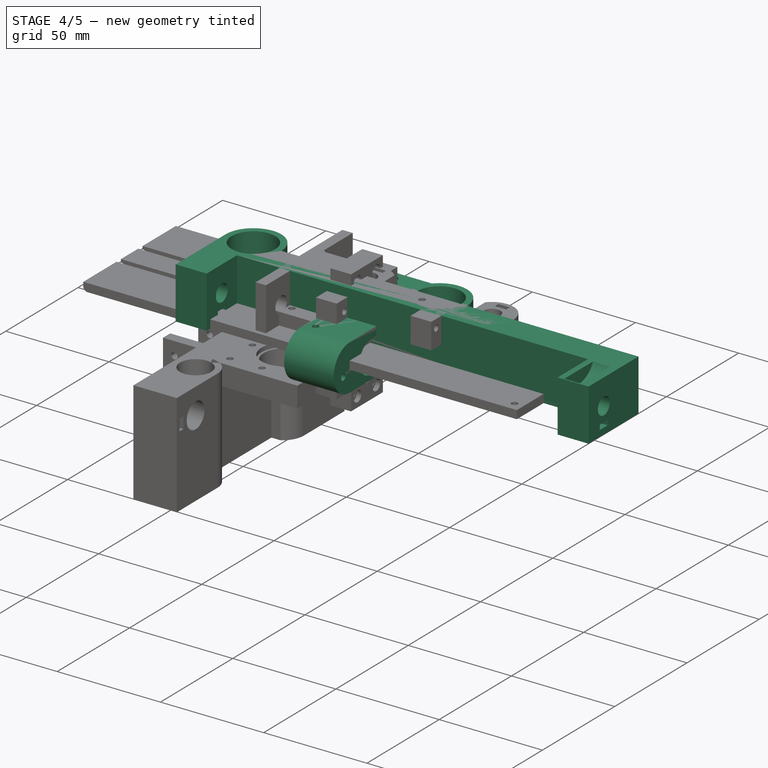
[diagram: stage 4 of 5 — iso view after this stage's code; geometry added in this stage tinted green]
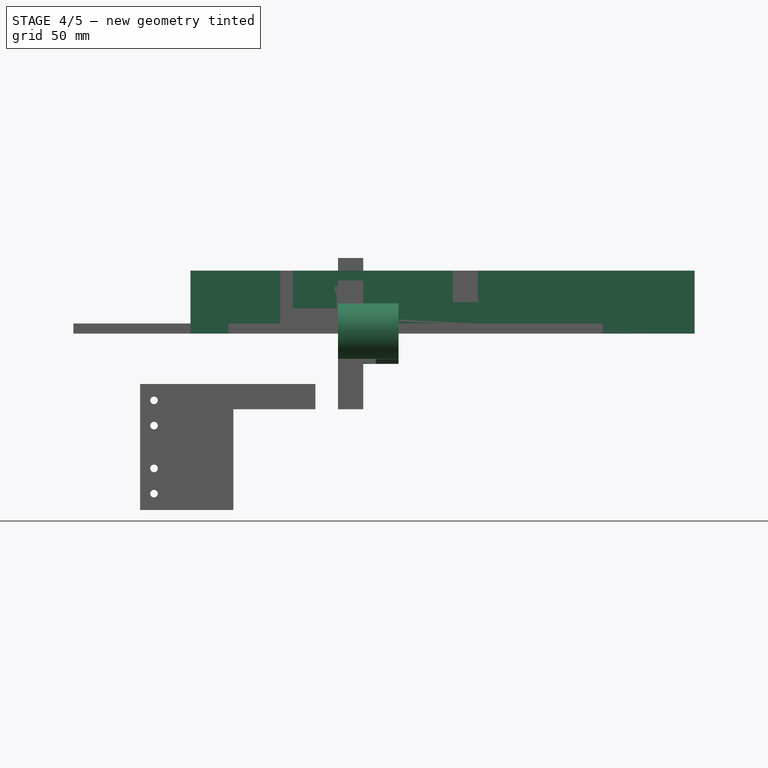
[diagram: stage 4 of 5 — front view after this stage's code; geometry added in this stage tinted green]
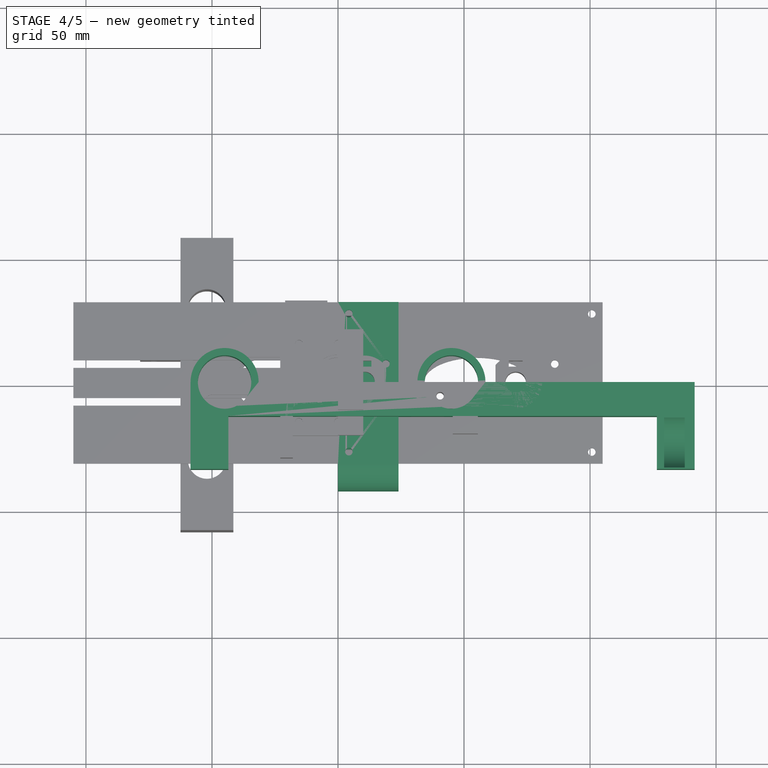
[diagram: stage 4 of 5 — top view after this stage's code; geometry added in this stage tinted green]
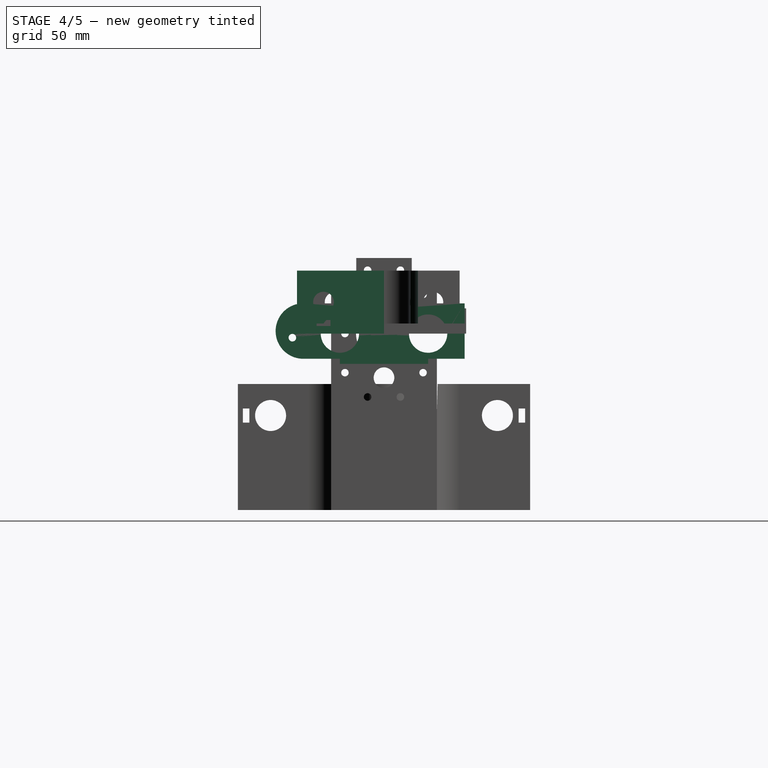
[diagram: stage 4 of 5 — right view after this stage's code; geometry added in this stage tinted green]
FEATURE [Sketcher::SketchObject] Sketch007  label="slider_x_sketch"
  FullyConstrained = true
  MapMode = 5
  Support = -> [XY_Plane005]
  expr: Constraints[30] = <<xvarillas>>.A7
  expr: Constraints[11] = <<xvarillas>>.A7 / 2
  expr: Constraints[2] = <<xvarillas>>.D2
  expr: Constraints[9] = <<xvarillas>>.A5
  expr: Constraints[44] = <<zvarillas>>.A8
  expr: Constraints[8] = <<xvarillas>>.A7
  expr: Constraints[111] = <<zvarillas>>.D4
  sketch-geometry (50):
    g0: Circle CenterX=-45 CenterY=0 CenterZ=0 NormalX=0 NormalY=0 NormalZ=1 AngleXU=0 Radius=10.6
    g1: Circle CenterX=45 CenterY=0 CenterZ=0 NormalX=0 NormalY=0 NormalZ=1 AngleXU=0 Radius=10.6
    g2: ArcOfCircle CenterX=-45 CenterY=0 CenterZ=0 NormalX=0 NormalY=0 NormalZ=1 AngleXU=0 Radius=13.5 StartAngle=0 EndAngle=1.23096
    g3: ArcOfCircle CenterX=45 CenterY=0 CenterZ=0 NormalX=0 NormalY=0 NormalZ=1 AngleXU=0 Radius=13.5 StartAngle=0 EndAngle=3.14159
    g4: LineSegment StartX=-31.5 StartY=0 StartZ=0 EndX=31.5 EndY=0 EndZ=0
    g5: LineSegment StartX=-43.5 StartY=-13.5 StartZ=0 EndX=126.5 EndY=-13.5 EndZ=0
    g6: LineSegment StartX=31.5 StartY=0 StartZ=0 EndX=58.5 EndY=0 EndZ=0
    g7: LineSegment StartX=-31.5 StartY=0 StartZ=0 EndX=-45 EndY=0 EndZ=0
    g8: ArcOfCircle CenterX=-45 CenterY=0 CenterZ=0 NormalX=0 NormalY=0 NormalZ=1 AngleXU=0 Radius=13.5 StartAngle=1.91063 EndAngle=3.14159
    g9: LineSegment StartX=-49.5 StartY=12.7279 StartZ=0 EndX=-40.5 EndY=12.7279 EndZ=0
    g10: LineSegment StartX=-40.5 StartY=12.7279 StartZ=0 EndX=-40.5 EndY=24.7279 EndZ=0
    g11: LineSegment StartX=-40.5 StartY=24.7279 StartZ=0 EndX=-49.5 EndY=24.7279 EndZ=0
    g12: LineSegment StartX=-49.5 StartY=24.7279 StartZ=0 EndX=-49.5 EndY=12.7279 EndZ=0
    g13: LineSegment StartX=-58.5 StartY=1.7e-15 StartZ=0 EndX=-58.5 EndY=-13.5 EndZ=0
    g14: LineSegment StartX=-58.5 StartY=-13.5 StartZ=0 EndX=-43.5 EndY=-13.5 EndZ=0
    g15: LineSegment StartX=-43.5 StartY=-13.5 StartZ=0 EndX=-43.5 EndY=-17.2721 EndZ=0
    g16: LineSegment StartX=-43.5 StartY=-17.2721 StartZ=0 EndX=-58.5 EndY=-17.2721 EndZ=0
    g17: LineSegment StartX=-58.5 StartY=-17.2721 StartZ=0 EndX=-58.5 EndY=-13.5 EndZ=0
    g18: LineSegment StartX=-58.5 StartY=-17.2721 StartZ=0 EndX=-58.5 EndY=-34.5 EndZ=0
    g19: LineSegment StartX=-58.5 StartY=-34.5 StartZ=0 EndX=-43.5 EndY=-34.5 EndZ=0
    g20: LineSegment StartX=-43.5 StartY=-34.5 StartZ=0 EndX=-43.5 EndY=-17.2721 EndZ=0
    g21: LineSegment StartX=58.5 StartY=0 StartZ=0 EndX=126.5 EndY=0 EndZ=0
    g22: LineSegment StartX=126.5 StartY=0 StartZ=0 EndX=126.5 EndY=8 EndZ=0
    g23: LineSegment StartX=126.5 StartY=8 StartZ=0 EndX=141.5 EndY=8 EndZ=0
    g24: LineSegment StartX=141.5 StartY=-34.5 StartZ=0 EndX=126.5 EndY=-34.5 EndZ=0
    g25: LineSegment StartX=126.5 StartY=-34.5 StartZ=0 EndX=126.5 EndY=-13.5 EndZ=0
    g26: LineSegment StartX=126.5 StartY=0 StartZ=0 EndX=126.5 EndY=-13.5 EndZ=0
    g27: Circle CenterX=134 CenterY=0 CenterZ=0 NormalX=0 NormalY=0 NormalZ=1 AngleXU=0 Radius=4.1
    g28: LineSegment StartX=126.5 StartY=0 StartZ=0 EndX=141.5 EndY=0 EndZ=0
    g29: Circle CenterX=134 CenterY=-18 CenterZ=0 NormalX=0 NormalY=0 NormalZ=1 AngleXU=0 Radius=1.5
    g30: Circle CenterX=134 CenterY=-30 CenterZ=0 NormalX=0 NormalY=0 NormalZ=1 AngleXU=0 Radius=1.5
    g31: LineSegment StartX=126.5 StartY=-13.5 StartZ=0 EndX=141.5 EndY=-13.5 EndZ=0
    g32: LineSegment StartX=126.5 StartY=-13.5 StartZ=0 EndX=141.5 EndY=-34.5 EndZ=0
    g33: LineSegment StartX=126.5 StartY=-34.5 StartZ=0 EndX=141.5 EndY=-13.5 EndZ=0
    g34: GeomPoint X=134 Y=-24 Z=0
    g35: LineSegment StartX=134 StartY=-18 StartZ=0 EndX=134 EndY=-30 EndZ=0
    g36: LineSegment StartX=-49.5 StartY=24.7279 StartZ=0 EndX=-40.5 EndY=12.7279 EndZ=0
    g37: LineSegment StartX=-40.5 StartY=24.7279 StartZ=0 EndX=-49.5 EndY=12.7279 EndZ=0
    g38: GeomPoint X=-45 Y=18.7279 Z=0
    g39: Circle CenterX=-45 CenterY=18.7279 CenterZ=0 NormalX=0 NormalY=0 NormalZ=1 AngleXU=0 Radius=1.5
    g40: LineSegment StartX=-58.5 StartY=-13.5 StartZ=0 EndX=-43.5 EndY=-34.5 EndZ=0
    g41: LineSegment StartX=-58.5 StartY=-34.5 StartZ=0 EndX=-43.5 EndY=-13.5 EndZ=0
    g42: GeomPoint X=-51 Y=-24 Z=0
    g43: LineSegment StartX=-51 StartY=-18 StartZ=0 EndX=-51 EndY=-30 EndZ=0
    g44: Circle CenterX=-51 CenterY=-18 CenterZ=0 NormalX=0 NormalY=0 NormalZ=1 AngleXU=0 Radius=1.5
    g45: Circle CenterX=-51 CenterY=-30 CenterZ=0 NormalX=0 NormalY=0 NormalZ=1 AngleXU=0 Radius=1.5
    g46: ArcOfCircle CenterX=-45 CenterY=5e-16 CenterZ=0 NormalX=0 NormalY=0 NormalZ=1 AngleXU=0 Radius=13.5 StartAngle=1.23096 EndAngle=1.91063
    g47: LineSegment StartX=141.5 StartY=8 StartZ=0 EndX=141.5 EndY=0 EndZ=0
    g48: LineSegment StartX=141.5 StartY=0 StartZ=0 EndX=141.5 EndY=-13.5 EndZ=0
    g49: LineSegment StartX=141.5 StartY=-13.5 StartZ=0 EndX=141.5 EndY=-34.5 EndZ=0
  constraints (126):
    c: Symmetric(g0,g1,g-1)
    c: Equal(g0,g1)
    c: Diameter(g0) = 21.2
    c: Coincident(g2,g0)
    c: Coincident(g3,g1)
    c: Coincident(g4,g2)
    c: Coincident(g4,g3)
    c: Symmetric(g3,g2,g-2)
    c: Diameter(g2) = 27
    c: DistanceX(g0,g1) = 90
    c: Horizontal(g5)
    c: DistanceY(g5,g3) = 13.5
    c: Coincident(g6,g3)
    c: PointOnObject(g1,g6)
    c: Coincident(g6,g3)
    c: Horizontal(g6)
    c: Coincident(g7,g2)
    c: Horizontal(g7)
    c: Coincident(g7,g0)
    c: Coincident(g8,g0)
    c: Coincident(g9,g10)
    c: Coincident(g10,g11)
    c: Coincident(g11,g12)
    c: Coincident(g12,g9)
    c: Horizontal(g9)
    c: Horizontal(g11)
    c: Vertical(g10)
    c: Vertical(g12)
    c: Coincident(g9,g8)
    c: Coincident(g9,g2)
    c: Diameter(g8) = 27
    c: Vertical(g13)
    c: Tangent(g13,g8) = -1.5708
    c: DistanceY(g10,g10) = 12
    c: DistanceX(g11,g11) = 9
    c: Coincident(g14,g15)
    c: Coincident(g15,g16)
    c: Coincident(g16,g17)
    c: Coincident(g17,g14)
    c: Horizontal(g14)
    c: Horizontal(g16)
    c: Vertical(g15)
    c: Vertical(g17)
    c: Coincident(g14,g13)
    c: DistanceX(g16,g16) = 15
    c: DistanceY(g16,g11) = 42
    c: Coincident(g5,g15)
    c: Coincident(g17,g18)
    c: Vertical(g18)
    c: Coincident(g18,g19)
    c: Horizontal(g19)
    c: Coincident(g19,g20)
    c: Coincident(g20,g15)
    c: Vertical(g20)
    c: DistanceY(g18,g13) = 21
    c: Coincident(g21,g3)
    c: Horizontal(g21)
    c: Coincident(g21,g22)
    c: Vertical(g22)
    c: Coincident(g22,g23)
    c: Horizontal(g23)
    c: Horizontal(g24)
    c: Coincident(g24,g25)
    c: Coincident(g25,g5)
    c: Vertical(g25)
    c: DistanceY(g22,g22) = 8
    c: DistanceY(g25,g25) = 21
    c: Coincident(g26,g21)
    c: Coincident(g26,g5)
    c: Vertical(g26)
    c: Diameter(g27) = 8.2
    c: Coincident(g28,g21)
    c: Horizontal(g28)
    c: Symmetric(g21,g28,g27)
    c: Equal(g30,g29)
    c: Diameter(g29) = 3
    c: Coincident(g31,g5)
    c: Horizontal(g31)
    c: Coincident(g32,g5)
    c: Coincident(g33,g24)
    c: Coincident(g33,g31)
    c: PointOnObject(g34,g33)
    c: PointOnObject(g34,g32)
    c: Symmetric(g30,g29,g34)
    c: Coincident(g35,g29)
    c: Coincident(g35,g30)
    c: Vertical(g35)
    c: DistanceY(g35,g35) = 12
    c: Coincident(g36,g11)
    c: Coincident(g36,g2)
    c: Coincident(g37,g10)
    c: Coincident(g37,g8)
    c: PointOnObject(g38,g36)
    c: PointOnObject(g38,g37)
    c: Coincident(g39,g38)
    c: Equal(g39,g29)
    c: Coincident(g40,g13)
    c: Coincident(g40,g19)
    c: Coincident(g41,g18)
    c: Coincident(g41,g5)
    c: PointOnObject(g42,g40)
    c: PointOnObject(g42,g41)
    c: Vertical(g43)
    c: Equal(g43,g35)
    c: Symmetric(g43,g43,g42)
    c: Coincident(g44,g43)
    c: Coincident(g45,g43)
    c: Equal(g45,g44)
    c: Equal(g44,g39)
    c: Coincident(g46,g2)
    c: Tangent(g46,g8) = -1.5708
    c: DistanceX(g19,g24) = 170
    c: Coincident(g47,g23)
    c: Coincident(g47,g28)
    c: Vertical(g47)
    c: Coincident(g48,g28)
    c: Coincident(g48,g31)
    c: Vertical(g48)
    c: Coincident(g49,g48)
    c: Coincident(g49,g24)
    c: Vertical(g49)
    c: Coincident(g32,g24)
    c: DistanceX(g18,g-1) = 58.5
    c: DistanceX(g19) = -43.5
    c: Equal(g23,g19)
    c: DistanceX(g-1,g30) = 134
FEATURE [PartDesign::Pad] Pad006  label="slider_x_pad_completo"
  AllowMultiFace = false
  Direction = (1,1,1)
  Length = 25
  Length2 = 100
  Profile = -> Sketch007
  Type = 0
  expr: Length = <<xvarillas>>.A3
FEATURE [Sketcher::SketchObject] Sketch016  label="hole_varillas_Z_sketch"
  ExternalGeometry = -> [Sketch007]
  FullyConstrained = true
  MapMode = 5
  Placement = pos=(0,0,0) rot=(0.57735,0.57735,0.57735;2.0944rad)
  Support = -> [YZ_Plane005]
  expr: Constraints[0] = <<zvarillas>>.D1
  sketch-geometry (16):
    g0: Circle CenterX=-24 CenterY=12.5 CenterZ=0 NormalX=0 NormalY=0 NormalZ=1 AngleXU=0 Radius=4.1
    g1: LineSegment StartX=-34.5 StartY=25 StartZ=0 EndX=-24 EndY=12.5 EndZ=0
    g2: LineSegment StartX=-24 StartY=12.5 StartZ=0 EndX=-34.5 EndY=-4.8e-14 EndZ=0
    g3: LineSegment StartX=-28.1 StartY=12.5 StartZ=0 EndX=-19.9 EndY=12.5 EndZ=0
    g4: LineSegment StartX=-34.5 StartY=25 StartZ=0 EndX=0 EndY=25 EndZ=0
    g5: LineSegment StartX=0 StartY=25 StartZ=0 EndX=0 EndY=0 EndZ=0
    g6: LineSegment StartX=0 StartY=0 StartZ=0 EndX=-34.5 EndY=0 EndZ=0
    g7: LineSegment StartX=-34.5 StartY=0 StartZ=0 EndX=-34.5 EndY=25 EndZ=0
    g8: LineSegment StartX=-21.25 StartY=5.4 StartZ=0 EndX=-26.75 EndY=5.4 EndZ=0
    g9: LineSegment StartX=-26.75 StartY=5.4 StartZ=0 EndX=-26.75 EndY=3 EndZ=0
    g10: LineSegment StartX=-26.75 StartY=3 StartZ=0 EndX=-21.25 EndY=3 EndZ=0
    g11: LineSegment StartX=-21.25 StartY=3 StartZ=0 EndX=-21.25 EndY=5.4 EndZ=0
    g12: LineSegment StartX=-26.75 StartY=5.4 StartZ=0 EndX=-21.25 EndY=3 EndZ=0
    g13: LineSegment StartX=-21.25 StartY=5.4 StartZ=0 EndX=-26.75 EndY=3 EndZ=0
    g14: GeomPoint X=-24 Y=4.2 Z=0
    g15: LineSegment StartX=-24 StartY=8.4 StartZ=0 EndX=-24 EndY=0 EndZ=0
  constraints (43):
    c: Diameter(g0) = 8.2
    c: Coincident(g1,g0)
    c: Coincident(g2,g0)
    c: PointOnObject(g3,g0)
    c: PointOnObject(g3,g0)
    c: Horizontal(g3)
    c: PointOnObject(g0,g3)
    c: DistanceX(g1,g0) = 10.5
    c: Vertical(g1,g2)
    c: Coincident(g4,g5)
    c: Coincident(g5,g6)
    c: Coincident(g6,g7)
    c: Coincident(g7,g4)
    c: Horizontal(g4)
    c: Horizontal(g6)
    c: Vertical(g5)
    c: Vertical(g7)
    c: Coincident(g4,g1)
    c: Coincident(g5,g-1)
    c: DistanceY(g5,g5) = 25
    c: Equal(g1,g2)
    c: Coincident(g2,g-3)
    c: Coincident(g8,g9)
    c: Coincident(g9,g10)
    c: Coincident(g10,g11)
    c: Coincident(g11,g8)
    c: Horizontal(g8)
    c: Horizontal(g10)
    c: Vertical(g9)
    c: Vertical(g11)
    c: DistanceX(g8,g8) = 5.5
    c: DistanceY(g11,g11) = 2.4
    c: Coincident(g12,g8)
    c: Coincident(g12,g10)
    c: Coincident(g13,g8)
    c: Coincident(g13,g9)
    c: PointOnObject(g14,g13)
    c: PointOnObject(g14,g12)
    c: Vertical(g14,g0)
    c: PointOnObject(g15,g0)
    c: Symmetric(g15,g15,g14)
    c: Perpendicular(g0,g15)
    c: PointOnObject(g15,g6)
FEATURE [PartDesign::Pocket] Pocket008  label="hole_varillas_Z"
  BaseFeature = -> Pad006
  Length = 5
  Length2 = 100
  Midplane = true
  Profile = -> Sketch016
  Type = 1
FEATURE [PartDesign::Body] Body  label="slider Y base X"
  Group = -> [Sketch,Pad,Sketch006,Pocket,Sketch015,Pocket007,Sketch022,Pad010,Sketch023,Pocket012]
  Origin = -> Origin
  Placement = pos=(0,41,0) rot=(0,0,1;0rad)
  Tip = -> Pocket012
FEATURE [Sketcher::SketchObject] Sketch024  label="Sketch024_ruleman"
  AttachmentOffset = pos=(0,0,133.5) rot=(0,0,1;0rad)
  ExternalGeometry = -> [Sketch016]
  FullyConstrained = true
  MapMode = 5
  Placement = pos=(133.5,-2.96e-14,2.96e-14) rot=(0.57735,0.57735,0.57735;2.0944rad)
  Support = -> [YZ_Plane005]
  expr: .AttachmentOffset.Base.z = <<zvarillas>>.A11 - <<zvarillas>>.A8 / 2 - ((<<xvarillas>>.A5 + <<xvarillas>>.A7) / 2 - <<zvarillas>>.D4 - <<zvarillas>>.A8 * 3 / 2)
  sketch-geometry (2):
    g0: Circle CenterX=-24 CenterY=30 CenterZ=0 NormalX=0 NormalY=0 NormalZ=1 AngleXU=0 Radius=11.1
    g1: Circle CenterX=-24 CenterY=30 CenterZ=0 NormalX=0 NormalY=0 NormalZ=1 AngleXU=0 Radius=4.09
  constraints (5):
    c: Vertical(g0,g-3)
    c: Diameter(g0) = 22.2
    c: DistanceY(g0) = 30
    c: Coincident(g1,g0)
    c: Diameter(g1) = 8.18
FEATURE [PartDesign::Pocket] Pocket013  label="Pocket013_ruleman"
  BaseFeature = -> Pocket008
  Length = 8.2
  Length2 = 100
  Midplane = true
  Profile = -> Sketch024
  Type = 0
FEATURE [Sketcher::SketchObject] Sketch025  label="Sketch025_screw_fijacion_correa"
  ExternalGeometry = -> [Pad006]
  FullyConstrained = true
  MapMode = 5
  Placement = pos=(0,0,0) rot=(1,0,0;1.5708rad)
  Support = -> [XZ_Plane005]
  sketch-geometry (4):
    g0: Circle CenterX=0 CenterY=17.5 CenterZ=0 NormalX=0 NormalY=0 NormalZ=1 AngleXU=0 Radius=1.5
    g1: Circle CenterX=0 CenterY=7.5 CenterZ=0 NormalX=0 NormalY=0 NormalZ=1 AngleXU=0 Radius=1.5
    g2: LineSegment StartX=-58.5 StartY=25 StartZ=0 EndX=0 EndY=17.5 EndZ=0
    g3: LineSegment StartX=-58.5 StartY=7.7e-15 StartZ=0 EndX=0 EndY=7.5 EndZ=0
  constraints (10):
    c: Vertical(g1,g0)
    c: Equal(g1,g0)
    c: Diameter(g0) = 3
    c: DistanceY(g1,g0) = 10
    c: DistanceX(g-3,g0) = 58.5
    c: Coincident(g2,g-3)
    c: Coincident(g2,g0)
    c: Coincident(g3,g-3)
    c: Coincident(g3,g1)
    c: Equal(g2,g3)
FEATURE [PartDesign::Pocket] Pocket014  label="Pocket014_screw_fijacion_correa"
  BaseFeature = -> Pocket013
  Length = 5
  Length2 = 100
  Midplane = true
  Profile = -> Sketch025
  Type = 1
FEATURE [PartDesign::Body] Body005  label="slider X base Z"
  Group = -> [Sketch007,Pad006,Sketch016,Pocket008,Sketch024,Pocket013,Sketch025,Pocket014,Sketch026,Pocket015,Sketch027,Pocket016,Sketch028,Pocket017,Sketch029,Pocket018,Sketch030,Sketch031,Sketch032,Pocket019,Sketch033,Pocket020]
  Origin = -> Origin005
  Placement = pos=(0,86,0) rot=(0,0,1;0rad)
  Tip = -> Pocket020
FEATURE [Sketcher::SketchObject] Sketch034  label="acme_nut_sketch"
  AttachmentOffset = pos=(0,0,0) rot=(0,0,1;0.785398rad)
  FullyConstrained = true
  MapMode = 5
  Placement = pos=(0,0,0) rot=(0.678598,0.281085,0.678598;2.59356rad)
  Support = -> [YZ_Plane006]
  sketch-geometry (16):
    g0: Circle CenterX=0 CenterY=0 CenterZ=0 NormalX=0 NormalY=0 NormalZ=1 AngleXU=0 Radius=5.3
    g1: LineSegment StartX=-5.65 StartY=5.65 StartZ=0 EndX=5.65 EndY=5.65 EndZ=0
    g2: LineSegment StartX=5.65 StartY=5.65 StartZ=0 EndX=5.65 EndY=-5.65 EndZ=0
    g3: LineSegment StartX=5.65 StartY=-5.65 StartZ=0 EndX=-5.65 EndY=-5.65 EndZ=0
    g4: LineSegment StartX=-5.65 StartY=-5.65 StartZ=0 EndX=-5.65 EndY=5.65 EndZ=0
    g5: LineSegment StartX=-5.65 StartY=-5.65 StartZ=0 EndX=5.65 EndY=5.65 EndZ=0
    g6: LineSegment StartX=5.65 StartY=-5.65 StartZ=0 EndX=-5.65 EndY=5.65 EndZ=0
    g7: Circle CenterX=-5.65 CenterY=5.65 CenterZ=0 NormalX=0 NormalY=0 NormalZ=1 AngleXU=0 Radius=1.7
    g8: Circle CenterX=5.65 CenterY=5.65 CenterZ=0 NormalX=0 NormalY=0 NormalZ=1 AngleXU=0 Radius=1.7
    g9: Circle CenterX=5.65 CenterY=-5.65 CenterZ=0 NormalX=0 NormalY=0 NormalZ=1 AngleXU=0 Radius=1.7
    g10: Circle CenterX=-5.65 CenterY=-5.65 CenterZ=0 NormalX=0 NormalY=0 NormalZ=1 AngleXU=0 Radius=1.7
    g11: Circle CenterX=0 CenterY=0 CenterZ=0 NormalX=0 NormalY=0 NormalZ=1 AngleXU=0 Radius=11
    g12: LineSegment StartX=-7.35 StartY=7.35 StartZ=0 EndX=7.35 EndY=7.35 EndZ=0
    g13: LineSegment StartX=7.35 StartY=7.35 StartZ=0 EndX=7.35 EndY=-7.35 EndZ=0
    g14: LineSegment StartX=7.35 StartY=-7.35 StartZ=0 EndX=-7.35 EndY=-7.35 EndZ=0
    g15: LineSegment StartX=-7.35 StartY=-7.35 StartZ=0 EndX=-7.35 EndY=7.35 EndZ=0
  constraints (41):
    c: Coincident(g1,g2)
    c: Coincident(g2,g3)
    c: Coincident(g3,g4)
    c: Coincident(g4,g1)
    c: Horizontal(g1)
    c: Horizontal(g3)
    c: Vertical(g2)
    c: Vertical(g4)
    c: Coincident(g5,g3)
    c: Coincident(g5,g1)
    c: Coincident(g6,g2)
    c: Coincident(g6,g1)
    c: Equal(g1,g4)
    c: PointOnObject(g0,g6)
    c: PointOnObject(g0,g5)
    c: Coincident(g7,g1)
    c: Coincident(g8,g1)
    c: Coincident(g9,g2)
    c: Coincident(g10,g3)
    c: Equal(g10,g7)
    c: Equal(g7,g8)
    c: Equal(g8,g9)
    c: Diameter(g8) = 3.4
    c: Diameter(g0) = 10.6
    c: Coincident(g11,g0)
    c: Diameter(g11) = 22
    c: Coincident(g12,g13)
    c: Coincident(g13,g14)
    c: Coincident(g14,g15)
    c: Coincident(g15,g12)
    c: Horizontal(g12)
    c: Horizontal(g14)
    c: Vertical(g13)
    c: Vertical(g15)
    c: Tangent(g12,g8)
    c: Tangent(g13,g8)
    c: Tangent(g15,g10)
    c: Tangent(g14,g10)
    c: DistanceX(g1,g1) = 11.3
    c: DistanceX(g12,g12) = 14.7
    c: Coincident(g-1,g0)
FEATURE [Sketcher::SketchObject] Sketch035  label="base_slider_z"
  FullyConstrained = true
  MapMode = 5
  Placement = pos=(0,0,0) rot=(0.57735,0.57735,0.57735;2.0944rad)
  Support = -> [YZ_Plane006]
  expr: Constraints[11] = <<zvarillas>>.sep_var_z
  sketch-geometry (18):
    g0: Circle CenterX=17.5 CenterY=0 CenterZ=0 NormalX=0 NormalY=0 NormalZ=1 AngleXU=0 Radius=7.6
    g1: Circle CenterX=-17.5 CenterY=0 CenterZ=0 NormalX=0 NormalY=0 NormalZ=1 AngleXU=0 Radius=7.6
    g2: LineSegment StartX=-17.5 StartY=10 StartZ=0 EndX=17.5 EndY=10 EndZ=0
    g3: LineSegment StartX=17.5 StartY=10 StartZ=0 EndX=17.5 EndY=-10 EndZ=0
    g4: LineSegment StartX=-17.5 StartY=-10 StartZ=0 EndX=-17.5 EndY=10 EndZ=0
    g5: ArcOfCircle CenterX=17.5 CenterY=0 CenterZ=0 NormalX=0 NormalY=0 NormalZ=1 AngleXU=0 Radius=10 StartAngle=4.71239 EndAngle=7.85398
    g6: ArcOfCircle CenterX=-17.5 CenterY=0 CenterZ=0 NormalX=0 NormalY=0 NormalZ=1 AngleXU=0 Radius=10 StartAngle=1.5708 EndAngle=4.71239
    g7: LineSegment StartX=17.5 StartY=-10 StartZ=0 EndX=-17.5 EndY=-10 EndZ=0
    g8: LineSegment StartX=-32 StartY=12 StartZ=0 EndX=32 EndY=12 EndZ=0
    g9: LineSegment StartX=32 StartY=12 StartZ=0 EndX=32 EndY=-10 EndZ=0
    g10: LineSegment StartX=-32 StartY=-10 StartZ=0 EndX=-32 EndY=12 EndZ=0
    g11: LineSegment StartX=-32 StartY=-10 StartZ=0 EndX=-3.16228 EndY=-10 EndZ=0
    g12: LineSegment StartX=3.16228 StartY=-10 StartZ=0 EndX=32 EndY=-10 EndZ=0
    g13: ArcOfCircle CenterX=0 CenterY=-8.5 CenterZ=0 NormalX=0 NormalY=0 NormalZ=1 AngleXU=0 Radius=3.5 StartAngle=3.5845 EndAngle=5.84027
    g14: GeomPoint X=0 Y=-12 Z=0
    g15: ArcOfCircle CenterX=-32 CenterY=1 CenterZ=0 NormalX=0 NormalY=0 NormalZ=1 AngleXU=0 Radius=11 StartAngle=1.5708 EndAngle=4.71239
    g16: Circle CenterX=-36.35 CenterY=-1.62 CenterZ=0 NormalX=0 NormalY=0 NormalZ=1 AngleXU=0 Radius=1.5
    g17: LineSegment StartX=17.5 StartY=0 StartZ=0 EndX=32 EndY=0 EndZ=0
  constraints (49):
    c: PointOnObject(g0,g-1)
    c: Equal(g1,g0)
    c: Diameter(g0) = 15.2
    c: Coincident(g2,g3)
    c: Coincident(g4,g2)
    c: Horizontal(g2)
    c: Coincident(g5,g0)
    c: Coincident(g5,g2)
    c: Diameter(g5) = 20
    c: Vertical(g3)
    c: Symmetric(g0,g1,g-1)
    c: DistanceX(g2,g2) = 35
    c: Coincident(g6,g1)
    c: Coincident(g6,g4) = 1.5708
    c: Tangent(g7,g5) = 1.5708
    c: Coincident(g3,g5)
    c: Tangent(g6,g7) = 1.5708
    c: Tangent(g6,g2) = 1.5708
    c: Coincident(g8,g9)
    c: Coincident(g10,g8)
    c: Horizontal(g8)
    c: Vertical(g9)
    c: Vertical(g10)
    c: DistanceY(g10,g10) = 22
    c: Coincident(g11,g10)
    c: PointOnObject(g11,g7)
    c: Horizontal(g11)
    c: PointOnObject(g12,g7)
    c: Coincident(g12,g9)
    c: Horizontal(g12)
    c: Coincident(g13,g11)
    c: Coincident(g13,g12)
    c: Diameter(g13) = 7
    c: PointOnObject(g13,g-2)
    c: PointOnObject(g14,g13)
    c: PointOnObject(g14,g-2)
    c: DistanceY(g14,g12) = 2
    c: PointOnObject(g15,g10)
    c: Coincident(g15,g8)
    c: Coincident(g15,g11)
    c: Diameter(g16) = 3
    c: DistanceX(g16,g11) = 4.35
    c: DistanceY(g11,g16) = 8.38
    c: DistanceX(g8,g8) = 64
    c: Coincident(g17,g0)
    c: PointOnObject(g17,g9)
    c: Horizontal(g17)
    c: DistanceX(g17,g17) = 14.5
    c: DistanceX(g15,g1) = 14.5
FEATURE [PartDesign::Pad] Pad011
  Direction = (1,1,1)
  Length = 24
  Length2 = 100
  Placement = pos=(0,0,0) rot=(0.57735,0.57735,0.57735;2.0944rad)
  Profile = -> Sketch035
  Type = 0
FEATURE [PartDesign::Pocket] Pocket021
  BaseFeature = -> Pad011
  Length = 5
  Length2 = 100
  Placement = pos=(0,0,0) rot=(0.57735,0.57735,0.57735;2.0944rad)
  Profile = -> Sketch034
  Reversed = true
  Type = 1
FEATURE [PartDesign::Plane] DatumPlane001
  Length = 87.1607
  MapMode = 5
  Placement = pos=(2.8e-15,-4.4e-15,-10) rot=(0.707107,0.707107,0;3.14159rad)
  ResizeMode = 0
  Support = -> [Pocket021]
  Width = 62.2409
FEATURE [Sketcher::SketchObject] Sketch036
  ExternalGeometry = -> [Sketch035]
  FullyConstrained = true
  MapMode = 5
  Placement = pos=(2.8e-15,-4.4e-15,-10) rot=(0.707107,0.707107,0;3.14159rad)
  Support = -> [DatumPlane001]
  expr: Constraints[25] = <<zvarillas>>.sep_tornillos_fijacion_base_Z_2
  expr: Constraints[24] = <<zvarillas>>.sep_tornillos_fijacion_base_Z
  sketch-geometry (11):
    g0: Circle CenterX=-7.5 CenterY=19 CenterZ=0 NormalX=0 NormalY=0 NormalZ=1 AngleXU=0 Radius=1.5
    g1: Circle CenterX=7.5 CenterY=19 CenterZ=0 NormalX=0 NormalY=0 NormalZ=1 AngleXU=0 Radius=1.5
    g2: Circle CenterX=27.4 CenterY=4.3 CenterZ=0 NormalX=0 NormalY=0 NormalZ=1 AngleXU=0 Radius=1.5
    g3: Circle CenterX=-27.4 CenterY=4.3 CenterZ=0 NormalX=0 NormalY=0 NormalZ=1 AngleXU=0 Radius=1.5
    g4: LineSegment StartX=-27.4 StartY=4.3 StartZ=0 EndX=27.4 EndY=4.3 EndZ=0
    g5: LineSegment StartX=27.4 StartY=4.3 StartZ=0 EndX=27.4 EndY=19 EndZ=0
    g6: LineSegment StartX=27.4 StartY=19 StartZ=0 EndX=-27.4 EndY=19 EndZ=0
    g7: LineSegment StartX=-27.4 StartY=19 StartZ=0 EndX=-27.4 EndY=4.3 EndZ=0
    g8: LineSegment StartX=-32 StartY=6e-15 StartZ=0 EndX=-32 EndY=24 EndZ=0
    g9: LineSegment StartX=-32 StartY=24 StartZ=0 EndX=32 EndY=24 EndZ=0
    g10: LineSegment StartX=32 StartY=24 StartZ=0 EndX=32 EndY=7.1e-15 EndZ=0
  constraints (29):
    c: Diameter(g3) = 3
    c: Equal(g3,g0)
    c: Equal(g3,g1)
    c: Equal(g3,g2)
    c: Coincident(g4,g5)
    c: Coincident(g5,g6)
    c: Coincident(g6,g7)
    c: Coincident(g7,g4)
    c: Horizontal(g6)
    c: Vertical(g5)
    c: Vertical(g7)
    c: Coincident(g4,g3)
    c: Coincident(g4,g2)
    c: PointOnObject(g0,g6)
    c: Symmetric(g0,g1,g-2)
    c: Symmetric(g2,g3,g-2)
    c: Coincident(g8,g-3)
    c: Vertical(g8)
    c: Coincident(g9,g8)
    c: Horizontal(g9)
    c: Coincident(g10,g9)
    c: Coincident(g10,g-3)
    c: Vertical(g10)
    c: DistanceY(g10,g10) = 24
    c: DistanceX(g0,g1) = 15
    c: DistanceX(g4,g4) = 54.8
    c: DistanceY(g7,g7) = 14.7
    c: DistanceY(g5,g9) = 5
    c: DistanceY(g10,g2) = 4.3
FEATURE [PartDesign::Pocket] Pocket022
  BaseFeature = -> Pocket021
  Length = 5
  Length2 = 100
  Midplane = true
  Placement = pos=(0,0,0) rot=(0.57735,0.57735,0.57735;2.0944rad)
  Profile = -> Sketch036
  Type = 1
FEATURE [Sketcher::SketchObject] Sketch037
  ExternalGeometry = -> [Sketch035,Sketch036]
  FullyConstrained = true
  MapMode = 5
  Placement = pos=(2.8e-15,-4.4e-15,-10) rot=(0.707107,0.707107,0;3.14159rad)
  Support = -> [DatumPlane001]
  sketch-geometry (35):
    g0: LineSegment StartX=-27.4 StartY=3.8 StartZ=0 EndX=27.4 EndY=3.8 EndZ=0
    g1: LineSegment StartX=27.4 StartY=3.8 StartZ=0 EndX=27.4 EndY=18.5 EndZ=0
    g2: LineSegment StartX=27.4 StartY=18.5 StartZ=0 EndX=-27.4 EndY=18.5 EndZ=0
    g3: LineSegment StartX=-27.4 StartY=18.5 StartZ=0 EndX=-27.4 EndY=3.8 EndZ=0
    g4: LineSegment StartX=-32 StartY=6e-15 StartZ=0 EndX=-32 EndY=24 EndZ=0
    g5: LineSegment StartX=-32 StartY=24 StartZ=0 EndX=32 EndY=24 EndZ=0
    g6: LineSegment StartX=32 StartY=24 StartZ=0 EndX=32 EndY=7.1e-15 EndZ=0
    g7: LineSegment StartX=-24.7 StartY=5.35885 StartZ=0 EndX=-27.4 EndY=6.91769 EndZ=0
    g8: LineSegment StartX=-27.4 StartY=6.91769 StartZ=0 EndX=-30.1 EndY=5.35885 EndZ=0
    g9: LineSegment StartX=-30.1 StartY=5.35885 StartZ=0 EndX=-30.1 EndY=2.24115 EndZ=0
    g10: LineSegment StartX=-30.1 StartY=2.24115 StartZ=0 EndX=-27.4 EndY=0.682309 EndZ=0
    g11: LineSegment StartX=-27.4 StartY=0.682309 StartZ=0 EndX=-24.7 EndY=2.24115 EndZ=0
    g12: LineSegment StartX=-24.7 StartY=2.24115 StartZ=0 EndX=-24.7 EndY=5.35885 EndZ=0
    g13: Circle CenterX=-27.4 CenterY=3.8 CenterZ=0 NormalX=0 NormalY=0 NormalZ=1 AngleXU=0 Radius=3.11769
    g14: LineSegment StartX=24.7 StartY=5.35885 StartZ=0 EndX=24.7 EndY=2.24115 EndZ=0
    g15: LineSegment StartX=24.7 StartY=2.24115 StartZ=0 EndX=27.4 EndY=0.682309 EndZ=0
    g16: LineSegment StartX=27.4 StartY=0.682309 StartZ=0 EndX=30.1 EndY=2.24115 EndZ=0
    g17: LineSegment StartX=30.1 StartY=2.24115 StartZ=0 EndX=30.1 EndY=5.35885 EndZ=0
    g18: LineSegment StartX=30.1 StartY=5.35885 StartZ=0 EndX=27.4 EndY=6.91769 EndZ=0
    g19: LineSegment StartX=27.4 StartY=6.91769 StartZ=0 EndX=24.7 EndY=5.35885 EndZ=0
    g20: Circle CenterX=27.4 CenterY=3.8 CenterZ=0 NormalX=0 NormalY=0 NormalZ=1 AngleXU=0 Radius=3.11769
    g21: LineSegment StartX=10.2 StartY=20.5588 StartZ=0 EndX=7.5 EndY=22.1177 EndZ=0
    g22: LineSegment StartX=7.5 StartY=22.1177 StartZ=0 EndX=4.8 EndY=20.5588 EndZ=0
    g23: LineSegment StartX=4.8 StartY=20.5588 StartZ=0 EndX=4.8 EndY=17.4412 EndZ=0
    g24: LineSegment StartX=4.8 StartY=17.4412 StartZ=0 EndX=7.5 EndY=15.8823 EndZ=0
    g25: LineSegment StartX=7.5 StartY=15.8823 StartZ=0 EndX=10.2 EndY=17.4412 EndZ=0
    g26: LineSegment StartX=10.2 StartY=17.4412 StartZ=0 EndX=10.2 EndY=20.5588 EndZ=0
    g27: Circle CenterX=7.5 CenterY=19 CenterZ=0 NormalX=0 NormalY=0 NormalZ=1 AngleXU=0 Radius=3.11769
    g28: LineSegment StartX=-7.5 StartY=22.1177 StartZ=0 EndX=-10.2 EndY=20.5588 EndZ=0
    g29: LineSegment StartX=-10.2 StartY=20.5588 StartZ=0 EndX=-10.2 EndY=17.4412 EndZ=0
    g30: LineSegment StartX=-10.2 StartY=17.4412 StartZ=0 EndX=-7.5 EndY=15.8823 EndZ=0
    g31: LineSegment StartX=-7.5 StartY=15.8823 StartZ=0 EndX=-4.8 EndY=17.4412 EndZ=0
    g32: LineSegment StartX=-4.8 StartY=17.4412 StartZ=0 EndX=-4.8 EndY=20.5588 EndZ=0
    g33: LineSegment StartX=-4.8 StartY=20.5588 StartZ=0 EndX=-7.5 EndY=22.1177 EndZ=0
    g34: Circle CenterX=-7.5 CenterY=19 CenterZ=0 NormalX=0 NormalY=0 NormalZ=1 AngleXU=0 Radius=3.11769
  constraints (83):
    c: Coincident(g0,g1)
    c: Coincident(g1,g2)
    c: Coincident(g2,g3)
    c: Coincident(g3,g0)
    c: Vertical(g1)
    c: Vertical(g3)
    c: Coincident(g4,g-3)
    c: Vertical(g4)
    c: Coincident(g5,g4)
    c: Horizontal(g5)
    c: Coincident(g6,g5)
    c: Coincident(g6,g-3)
    c: Vertical(g6)
    c: DistanceY(g6,g6) = 24
    c: DistanceX(g0,g0) = 54.8
    c: DistanceY(g3,g3) = 14.7
    c: DistanceY(g1,g5) = 5.5
    c: Symmetric(g1,g2,g-2)
    c: Horizontal(g0)
    c: Coincident(g7,g8)
    c: Coincident(g8,g9)
    c: Coincident(g9,g10)
    c: Coincident(g10,g11)
    c: Coincident(g11,g12)
    c: Coincident(g12,g7)
    c: Equal(g7, g8-g12) x5
    c: PointOnObject(g7,g13)
    c: PointOnObject(g8,g13)
    c: PointOnObject(g9,g13)
    c: PointOnObject(g10,g13)
    c: PointOnObject(g11,g13)
    c: PointOnObject(g12,g13)
    c: Coincident(g13,g0)
    c: Coincident(g14,g15)
    c: Coincident(g15,g16)
    c: Coincident(g16,g17)
    c: Coincident(g17,g18)
    c: Coincident(g18,g19)
    c: Coincident(g19,g14)
    c: Equal(g14, g15-g19) x5
    c: PointOnObject(g14,g20)
    c: PointOnObject(g15,g20)
    c: PointOnObject(g16,g20)
    c: PointOnObject(g17,g20)
    c: PointOnObject(g18,g20)
    c: PointOnObject(g19,g20)
    c: Coincident(g20,g0)
    c: Coincident(g21,g22)
    c: Coincident(g22,g23)
    c: Coincident(g23,g24)
    c: Coincident(g24,g25)
    c: Coincident(g25,g26)
    c: Coincident(g26,g21)
    c: Equal(g21, g22-g26) x5
    c: PointOnObject(g21,g27)
    c: PointOnObject(g22,g27)
    c: PointOnObject(g23,g27)
    c: PointOnObject(g24,g27)
    c: PointOnObject(g25,g27)
    c: PointOnObject(g26,g27)
    c: Coincident(g28,g29)
    c: Coincident(g29,g30)
    c: Coincident(g30,g31)
    c: Coincident(g31,g32)
    c: Coincident(g32,g33)
    c: Coincident(g33,g28)
    c: Equal(g28, g29-g33) x5
    c: PointOnObject(g28,g34)
    c: PointOnObject(g29,g34)
    c: PointOnObject(g30,g34)
    c: PointOnObject(g31,g34)
    c: PointOnObject(g32,g34)
    c: PointOnObject(g33,g34)
    c: Symmetric(g34,g27,g-2)
    c: Equal(g27,g34)
    c: Equal(g34,g13)
    c: Equal(g20,g13)
    c: Vertical(g32)
    c: Vertical(g12)
    c: Vertical(g26)
    c: Vertical(g17)
    c: DistanceX(g22,g21) = 5.4
    c: Coincident(g-4,g34)
FEATURE [PartDesign::Pocket] Pocket023
  BaseFeature = -> Pocket022
  Length = 3
  Length2 = 100
  Placement = pos=(0,0,0) rot=(0.57735,0.57735,0.57735;2.0944rad)
  Profile = -> Sketch037
  Type = 0
FEATURE [PartDesign::Body] Body006  label="eje_XYZ-slider_Z-endstop_socket"
  Group = -> [Sketch034,Sketch035,Pad011,Pocket021,DatumPlane001,Sketch036,Pocket022,Sketch037,Pocket023]
  Origin = -> Origin006
  Placement = pos=(0,0,-50) rot=(0,0,1;0rad)
  Tip = -> Pocket023
FEATURE [Sketcher::SketchObject] Sketch039  label="base_slider_z001"
  FullyConstrained = true
  MapMode = 5
  Placement = pos=(0,0,0) rot=(0.57735,0.57735,0.57735;2.0944rad)
  Support = -> [YZ_Plane007]
  expr: Constraints[11] = <<zvarillas>>.sep_var_z
  sketch-geometry (12):
    g0: Circle CenterX=17.5 CenterY=0 CenterZ=0 NormalX=0 NormalY=0 NormalZ=1 AngleXU=0 Radius=7.6
    g1: Circle CenterX=-17.5 CenterY=7.4e-14 CenterZ=0 NormalX=0 NormalY=0 NormalZ=1 AngleXU=0 Radius=7.6
    g2: LineSegment StartX=-17.5 StartY=10 StartZ=0 EndX=17.5 EndY=10 EndZ=0
    g3: LineSegment StartX=17.5 StartY=10 StartZ=0 EndX=17.5 EndY=-10 EndZ=0
    g4: LineSegment StartX=-17.5 StartY=-10 StartZ=0 EndX=-17.5 EndY=10 EndZ=0
    g5: ArcOfCircle CenterX=17.5 CenterY=0 CenterZ=0 NormalX=0 NormalY=0 NormalZ=1 AngleXU=0 Radius=10 StartAngle=4.71239 EndAngle=7.85398
    g6: ArcOfCircle CenterX=-17.5 CenterY=7.4e-14 CenterZ=0 NormalX=0 NormalY=0 NormalZ=1 AngleXU=0 Radius=10 StartAngle=1.5708 EndAngle=4.71239
    g7: LineSegment StartX=17.5 StartY=-10 StartZ=0 EndX=-17.5 EndY=-10 EndZ=0
    g8: LineSegment StartX=17.5 StartY=0 StartZ=0 EndX=32 EndY=0 EndZ=0
    g9: LineSegment StartX=-17.5 StartY=-10 StartZ=0 EndX=-17.5 EndY=-12 EndZ=0
    g10: LineSegment StartX=-17.5 StartY=-12 StartZ=0 EndX=17.5 EndY=-12 EndZ=0
    g11: LineSegment StartX=17.5 StartY=-12 StartZ=0 EndX=17.5 EndY=-10 EndZ=0
  constraints (29):
    c: PointOnObject(g0,g-1)
    c: Equal(g1,g0)
    c: Diameter(g0) = 15.2
    c: Coincident(g2,g3)
    c: Coincident(g4,g2)
    c: Horizontal(g2)
    c: Coincident(g5,g0)
    c: Coincident(g5,g2)
    c: Diameter(g5) = 20
    c: Vertical(g3)
    c: Symmetric(g0,g1,g-1)
    c: DistanceX(g2,g2) = 35
    c: Coincident(g6,g1)
    c: Coincident(g6,g4) = 1.5708
    c: Tangent(g7,g5) = 1.5708
    c: Coincident(g3,g5)
    c: Tangent(g6,g7) = 1.5708
    c: Tangent(g6,g2) = 1.5708
    c: Coincident(g8,g0)
    c: Horizontal(g8)
    c: DistanceX(g8,g8) = 14.5
    c: Coincident(g9,g6)
    c: Vertical(g9)
    c: Coincident(g10,g9)
    c: Horizontal(g10)
    c: Coincident(g11,g10)
    c: Coincident(g11,g5)
    c: Vertical(g11)
    c: DistanceY(g11,g11) = 2
FEATURE [PartDesign::Pad] Pad012
  Direction = (1,1,1)
  Length = 15
  Length2 = 100
  Placement = pos=(0,0,0) rot=(0.57735,0.57735,0.57735;2.0944rad)
  Profile = -> Sketch039
  Type = 0
FEATURE [Sketcher::SketchObject] Sketch040
  FullyConstrained = true
  MapMode = 5
  Support = -> [XY_Plane007]
  sketch-geometry (2):
    g0: Circle CenterX=5 CenterY=7.5 CenterZ=0 NormalX=0 NormalY=0 NormalZ=1 AngleXU=0 Radius=1.5
    g1: Circle CenterX=5 CenterY=-7.5 CenterZ=0 NormalX=0 NormalY=0 NormalZ=1 AngleXU=0 Radius=1.5
  constraints (5):
    c: Symmetric(g0,g1,g-1)
    c: Diameter(g0) = 3
    c: Equal(g0,g1)
    c: DistanceY(g1,g0) = 15
    c: DistanceX(g0) = 5
FEATURE [PartDesign::Pocket] Pocket024
  BaseFeature = -> Pad012
  Length = 5
  Length2 = 100
  Midplane = true
  Placement = pos=(0,0,0) rot=(0.57735,0.57735,0.57735;2.0944rad)
  Profile = -> Sketch040
  Reversed = true
  Type = 1
FEATURE [Sketcher::SketchObject] Sketch041
  AttachmentOffset = pos=(0,0,10) rot=(0,0,1;0rad)
  ExternalGeometry = -> [Sketch040]
  FullyConstrained = true
  MapMode = 5
  Placement = pos=(0,0,10) rot=(0,0,1;0rad)
  Support = -> [XY_Plane007]
  sketch-geometry (14):
    g0: LineSegment StartX=6.6575 StartY=10.3709 StartZ=0 EndX=3.3425 EndY=10.3709 EndZ=0
    g1: LineSegment StartX=3.3425 StartY=10.3709 StartZ=0 EndX=1.685 EndY=7.5 EndZ=0
    g2: LineSegment StartX=1.685 StartY=7.5 StartZ=0 EndX=3.3425 EndY=4.62913 EndZ=0
    g3: LineSegment StartX=3.3425 StartY=4.62913 StartZ=0 EndX=6.6575 EndY=4.62913 EndZ=0
    g4: LineSegment StartX=6.6575 StartY=4.62913 StartZ=0 EndX=8.315 EndY=7.5 EndZ=0
    g5: LineSegment StartX=8.315 StartY=7.5 StartZ=0 EndX=6.6575 EndY=10.3709 EndZ=0
    g6: Circle CenterX=5 CenterY=7.5 CenterZ=0 NormalX=0 NormalY=0 NormalZ=1 AngleXU=0 Radius=3.315
    g7: LineSegment StartX=6.6575 StartY=-4.62913 StartZ=0 EndX=3.3425 EndY=-4.62913 EndZ=0
    g8: LineSegment StartX=3.3425 StartY=-4.62913 StartZ=0 EndX=1.685 EndY=-7.5 EndZ=0
    g9: LineSegment StartX=1.685 StartY=-7.5 StartZ=0 EndX=3.3425 EndY=-10.3709 EndZ=0
    g10: LineSegment StartX=3.3425 StartY=-10.3709 StartZ=0 EndX=6.6575 EndY=-10.3709 EndZ=0
    g11: LineSegment StartX=6.6575 StartY=-10.3709 StartZ=0 EndX=8.315 EndY=-7.5 EndZ=0
    g12: LineSegment StartX=8.315 StartY=-7.5 StartZ=0 EndX=6.6575 EndY=-4.62913 EndZ=0
    g13: Circle CenterX=5 CenterY=-7.5 CenterZ=0 NormalX=0 NormalY=0 NormalZ=1 AngleXU=0 Radius=3.315
  constraints (32):
    c: Coincident(g0,g1)
    c: Coincident(g1,g2)
    c: Coincident(g2,g3)
    c: Coincident(g3,g4)
    c: Coincident(g4,g5)
    c: Coincident(g5,g0)
    c: Equal(g0, g1-g5) x5
    c: PointOnObject(g0,g6)
    c: PointOnObject(g1,g6)
    c: PointOnObject(g2,g6)
    c: PointOnObject(g3,g6)
    c: PointOnObject(g4,g6)
    c: PointOnObject(g5,g6)
    c: Coincident(g6,g-3)
    c: Coincident(g7,g8)
    c: Coincident(g8,g9)
    c: Coincident(g9,g10)
    c: Coincident(g10,g11)
    c: Coincident(g11,g12)
    c: Coincident(g12,g7)
    c: Equal(g7, g8-g12) x5
    c: PointOnObject(g7,g13)
    c: PointOnObject(g8,g13)
    c: PointOnObject(g9,g13)
    c: PointOnObject(g10,g13)
    c: PointOnObject(g11,g13)
    c: PointOnObject(g12,g13)
    c: Coincident(g13,g-4)
    c: Horizontal(g7)
    c: Horizontal(g3)
    c: Equal(g13,g6)
    c: Diameter(g13) = 6.63
FEATURE [PartDesign::Pocket] Pocket025
  BaseFeature = -> Pocket024
  Length = 2.5
  Length2 = 100
  Placement = pos=(0,0,0) rot=(0.57735,0.57735,0.57735;2.0944rad)
  Profile = -> Sketch041
  Type = 0
  expr: Length = 2.5
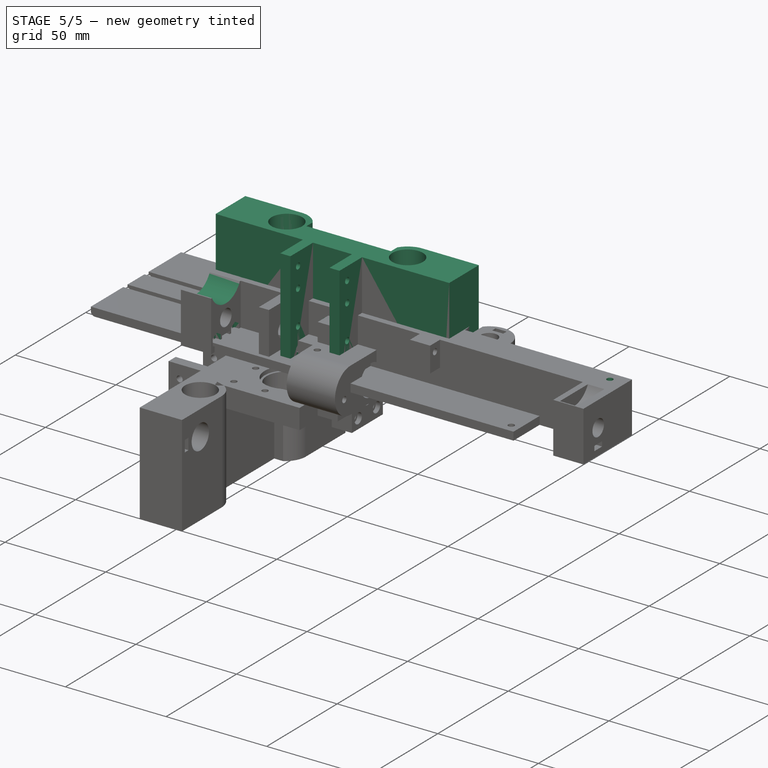
[diagram: stage 5 of 5 — iso view after this stage's code; geometry added in this stage tinted green]
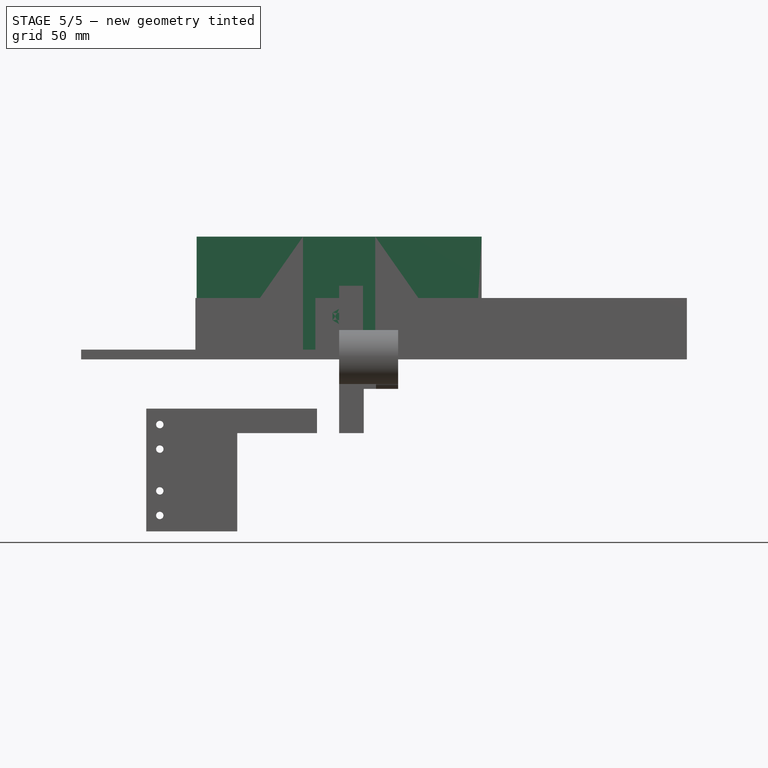
[diagram: stage 5 of 5 — front view after this stage's code; geometry added in this stage tinted green]
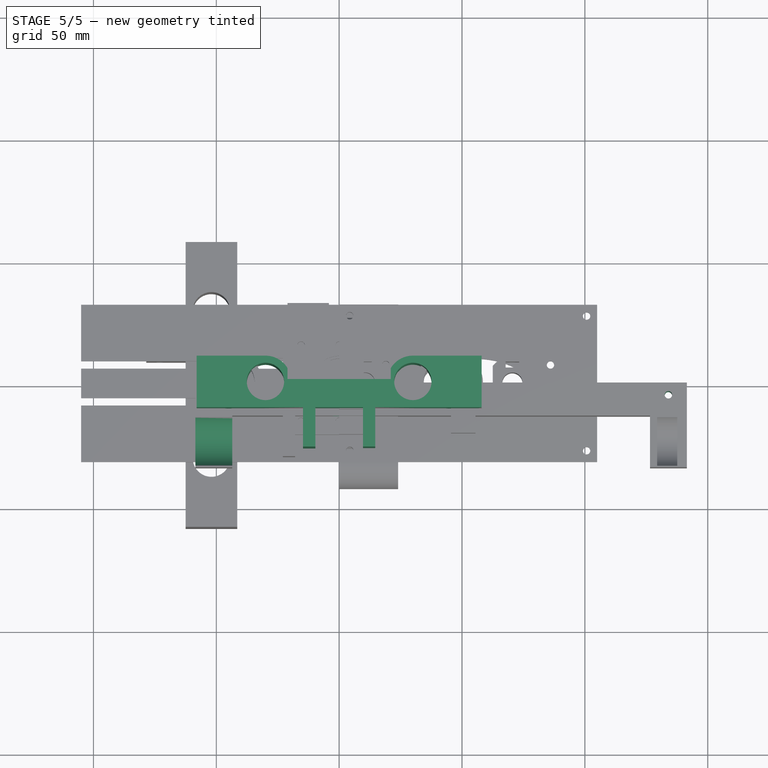
[diagram: stage 5 of 5 — top view after this stage's code; geometry added in this stage tinted green]
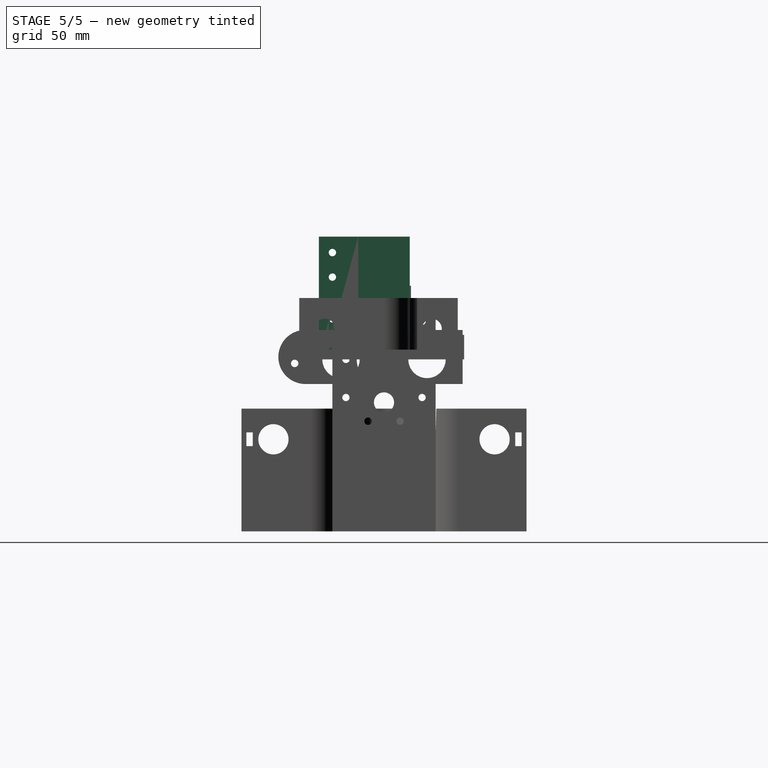
[diagram: stage 5 of 5 — right view after this stage's code; geometry added in this stage tinted green]
FEATURE [Sketcher::SketchObject] Sketch  label="slider_y_sketch"
  FullyConstrained = false
  MapMode = 5
  Support = -> [XY_Plane]
  expr: Constraints[27] = <<yvarillas>>.A7
  expr: Constraints[14] = <<xvarillas>>.A13
  expr: Constraints[2] = <<yvarillas>>.C2
  expr: Constraints[28] = <<yvarillas>>.A7
  expr: Constraints[4] = <<yvarillas>>.A5
  sketch-geometry (12):
    g0: Circle CenterX=-30 CenterY=-5.43e-14 CenterZ=0 NormalX=0 NormalY=0 NormalZ=1 AngleXU=0 Radius=7.6
    g1: Circle CenterX=30 CenterY=5.43e-14 CenterZ=0 NormalX=0 NormalY=0 NormalZ=1 AngleXU=0 Radius=7.6
    g2: LineSegment StartX=-19.5477 StartY=1 StartZ=0 EndX=19.5477 EndY=1 EndZ=0
    g3: LineSegment StartX=58 StartY=-10.5 StartZ=0 EndX=-58 EndY=-10.5 EndZ=0
    g4: LineSegment StartX=-58 StartY=-10.5 StartZ=0 EndX=-58 EndY=10.5 EndZ=0
    g5: LineSegment StartX=-58 StartY=10.5 StartZ=0 EndX=-30 EndY=10.5 EndZ=0
    g6: LineSegment StartX=58 StartY=-10.5 StartZ=0 EndX=58 EndY=10.5 EndZ=0
    g7: LineSegment StartX=58 StartY=10.5 StartZ=0 EndX=30 EndY=10.5 EndZ=0
    g8: ArcOfCircle CenterX=-30 CenterY=-5.43e-14 CenterZ=0 NormalX=0 NormalY=0 NormalZ=1 AngleXU=0 Radius=10.5 StartAngle=0.0953827 EndAngle=1.5708
    g9: ArcOfCircle CenterX=30 CenterY=5.43e-14 CenterZ=0 NormalX=0 NormalY=0 NormalZ=1 AngleXU=0 Radius=10.5 StartAngle=1.5708 EndAngle=3.04621
    g10: LineSegment StartX=-30 StartY=-5.43e-14 StartZ=0 EndX=-19.5477 EndY=1 EndZ=0
    g11: LineSegment StartX=19.5477 StartY=1 StartZ=0 EndX=30 EndY=5.43e-14 EndZ=0
  constraints (30):
    c: Symmetric(g0,g1,g-1)
    c: Equal(g0,g1)
    c: Diameter(g0) = 15.2
    c: Symmetric(g2,g2,g-2)
    c: DistanceX(g0,g1) = 60
    c: Coincident(g3,g4)
    c: Coincident(g4,g5)
    c: Horizontal(g3)
    c: Horizontal(g5)
    c: Vertical(g4)
    c: Coincident(g6,g7)
    c: Horizontal(g7)
    c: Vertical(g6)
    c: Equal(g5,g7)
    c: DistanceX(g3,g6) = 116
    c: Coincident(g8,g0)
    c: Coincident(g8,g2)
    c: Coincident(g9,g2)
    c: Equal(g4,g6)
    c: Coincident(g3,g6)
    c: Tangent(g8,g5) = 1.5708
    c: Tangent(g9,g7) = -1.5708
    c: Coincident(g10,g0)
    c: Coincident(g10,g2)
    c: Coincident(g11,g2)
    c: Coincident(g11,g1)
    c: Coincident(g9,g1)
    c: Diameter(g8) = 21
    c: DistanceY(g4,g4) = 21
    c: DistanceY(g2) = 1
FEATURE [PartDesign::Pad] Pad  label="slider_y_pad"
  AllowMultiFace = false
  Direction = (1,1,1)
  Length = 50
  Length2 = 100
  Profile = -> Sketch
  Type = 0
  expr: Length = <<xvarillas>>.A9
FEATURE [Sketcher::SketchObject] Sketch006  label="varillas_x"
  ExternalGeometry = -> [Sketch]
  FullyConstrained = false
  MapMode = 5
  Placement = pos=(0,0,0) rot=(1,0,0;1.5708rad)
  Support = -> [XZ_Plane]
  expr: Constraints[25] = <<xvarillas>>.B17
  expr: Constraints[24] = <<xvarillas>>.B18
  expr: Constraints[3] = <<xvarillas>>.A5
  expr: Constraints[4] = <<xvarillas>>.A11
  expr: Constraints[0] = <<xvarillas>>.D1
  expr: Constraints[23] = <<xvarillas>>.B19
  sketch-geometry (16):
    g0: Circle CenterX=-45 CenterY=12.5 CenterZ=0 NormalX=0 NormalY=0 NormalZ=1 AngleXU=0 Radius=6.15
    g1: Circle CenterX=45 CenterY=12.5 CenterZ=0 NormalX=0 NormalY=0 NormalZ=1 AngleXU=0 Radius=6.15
    g2: LineSegment StartX=-56 StartY=15.3 StartZ=0 EndX=-53.4 EndY=15.3 EndZ=0
    g3: LineSegment StartX=-53.4 StartY=15.3 StartZ=0 EndX=-53.4 EndY=9.7 EndZ=0
    g4: LineSegment StartX=-53.4 StartY=9.7 StartZ=0 EndX=-56 EndY=9.7 EndZ=0
    g5: LineSegment StartX=-56 StartY=9.7 StartZ=0 EndX=-56 EndY=15.3 EndZ=0
    g6: LineSegment StartX=53.4 StartY=15.3 StartZ=0 EndX=56 EndY=15.3 EndZ=0
    g7: LineSegment StartX=56 StartY=15.3 StartZ=0 EndX=56 EndY=9.7 EndZ=0
    g8: LineSegment StartX=56 StartY=9.7 StartZ=0 EndX=53.4 EndY=9.7 EndZ=0
    g9: LineSegment StartX=53.4 StartY=9.7 StartZ=0 EndX=53.4 EndY=15.3 EndZ=0
    g10: LineSegment StartX=-56 StartY=15.3 StartZ=0 EndX=-53.4 EndY=9.7 EndZ=0
    g11: LineSegment StartX=-53.4 StartY=15.3 StartZ=0 EndX=-56 EndY=9.7 EndZ=0
    g12: GeomPoint X=-54.7 Y=12.5 Z=0
    g13: LineSegment StartX=53.4 StartY=15.3 StartZ=0 EndX=56 EndY=9.7 EndZ=0
    g14: LineSegment StartX=53.4 StartY=9.7 StartZ=0 EndX=56 EndY=15.3 EndZ=0
    g15: GeomPoint X=54.7 Y=12.5 Z=0
  constraints (40):
    c: Diameter(g0) = 12.3
    c: Equal(g0,g1)
    c: Symmetric(g0,g1,g-2)
    c: DistanceX(g0,g1) = 90
    c: DistanceY(g-3,g0) = 12.5
    c: Coincident(g2,g3)
    c: Coincident(g3,g4)
    c: Coincident(g4,g5)
    c: Coincident(g5,g2)
    c: Horizontal(g2)
    c: Horizontal(g4)
    c: Vertical(g3)
    c: Vertical(g5)
    c: Coincident(g6,g7)
    c: Coincident(g7,g8)
    c: Coincident(g8,g9)
    c: Coincident(g9,g6)
    c: Horizontal(g6)
    c: Horizontal(g8)
    c: Vertical(g7)
    c: Vertical(g9)
    c: Equal(g2,g6)
    c: Equal(g3,g7)
    c: DistanceX(g-3,g4) = 2
    c: DistanceX(g2,g2) = 2.6
    c: DistanceY(g5,g5) = 5.6
    c: Coincident(g10,g2)
    c: Coincident(g10,g3)
    c: Coincident(g11,g2)
    c: Coincident(g11,g4)
    c: PointOnObject(g12,g10)
    c: PointOnObject(g12,g11)
    c: Horizontal(g12,g0)
    c: Coincident(g13,g6)
    c: Coincident(g13,g7)
    c: Coincident(g14,g8)
    c: Coincident(g14,g6)
    c: PointOnObject(g15,g13)
    c: PointOnObject(g15,g14)
    c: Symmetric(g15,g12,g-2)
FEATURE [PartDesign::Pocket] Pocket  label="pocket_varillas_x"
  AllowMultiFace = false
  BaseFeature = -> Pad
  Length = 5
  Length2 = 100
  Midplane = true
  Profile = -> Sketch006
  Type = 1
FEATURE [Sketcher::SketchObject] Sketch015  label="sketck_pocket_para_stepper"
  ExternalGeometry = -> [Sketch]
  FullyConstrained = true
  MapMode = 5
  Support = -> [XY_Plane]
  expr: Constraints[8] = <<yvarillas>>.A7
  expr: Constraints[7] = <<xstepper>>.A4
  sketch-geometry (4):
    g0: LineSegment StartX=-21 StartY=22 StartZ=0 EndX=21 EndY=22 EndZ=0
    g1: LineSegment StartX=21 StartY=22 StartZ=0 EndX=21 EndY=1 EndZ=0
    g2: LineSegment StartX=21 StartY=1 StartZ=0 EndX=-21 EndY=1 EndZ=0
    g3: LineSegment StartX=-21 StartY=1 StartZ=0 EndX=-21 EndY=22 EndZ=0
  constraints (11):
    c: Coincident(g0,g1)
    c: Coincident(g1,g2)
    c: Coincident(g2,g3)
    c: Coincident(g3,g0)
    c: Horizontal(g0)
    c: Vertical(g1)
    c: Vertical(g3)
    c: DistanceX(g0,g0) = 42
    c: DistanceY(g1,g1) = 21
    c: Symmetric(g2,g1,g-2)
    c: Horizontal(g2,g-3)
FEATURE [PartDesign::Pocket] Pocket007  label="pocket_para_stepper"
  AllowMultiFace = false
  BaseFeature = -> Pocket
  Length = 5
  Length2 = 100
  Profile = -> Sketch015
  Reversed = true
  Type = 1
FEATURE [Sketcher::SketchObject] Sketch022  label="trabacorreas_Sketch022"
  ExternalGeometry = -> [Sketch]
  FullyConstrained = false
  MapMode = 5
  Support = -> [XY_Plane]
  sketch-geometry (8):
    g0: LineSegment StartX=-14.7 StartY=-10.5 StartZ=0 EndX=-9.7 EndY=-10.5 EndZ=0
    g1: LineSegment StartX=-9.7 StartY=-10.5 StartZ=0 EndX=-9.7 EndY=-26.5 EndZ=0
    g2: LineSegment StartX=-9.7 StartY=-26.5 StartZ=0 EndX=-14.7 EndY=-26.5 EndZ=0
    g3: LineSegment StartX=-14.7 StartY=-26.5 StartZ=0 EndX=-14.7 EndY=-10.5 EndZ=0
    g4: LineSegment StartX=9.7 StartY=-10.5 StartZ=0 EndX=14.7 EndY=-10.5 EndZ=0
    g5: LineSegment StartX=14.7 StartY=-10.5 StartZ=0 EndX=14.7 EndY=-26.5 EndZ=0
    g6: LineSegment StartX=14.7 StartY=-26.5 StartZ=0 EndX=9.7 EndY=-26.5 EndZ=0
    g7: LineSegment StartX=9.7 StartY=-26.5 StartZ=0 EndX=9.7 EndY=-10.5 EndZ=0
  constraints (23):
    c: Coincident(g0,g1)
    c: Coincident(g1,g2)
    c: Coincident(g2,g3)
    c: Coincident(g3,g0)
    c: Horizontal(g0)
    c: Horizontal(g2)
    c: Vertical(g1)
    c: Vertical(g3)
    c: PointOnObject(g0,g-3)
    c: Coincident(g4,g5)
    c: Coincident(g5,g6)
    c: Coincident(g6,g7)
    c: Coincident(g7,g4)
    c: Horizontal(g4)
    c: Horizontal(g6)
    c: Vertical(g5)
    c: Vertical(g7)
    c: Symmetric(g0,g4,g-2)
    c: Equal(g0,g4)
    c: Equal(g3,g5)
    c: DistanceX(g1,g6) = 19.4
    c: DistanceX(g2,g2) = 5
    c: DistanceY(g5,g5) = 16
FEATURE [PartDesign::Pad] Pad010  label="trabacorreas"
  BaseFeature = -> Pocket007
  Direction = (1,1,1)
  Length = 50
  Length2 = 100
  Profile = -> Sketch022
  Type = 0
  expr: Length = <<xvarillas>>.A9
FEATURE [Sketcher::SketchObject] Sketch023
  ExternalGeometry = -> [Sketch022]
  FullyConstrained = false
  MapMode = 5
  Placement = pos=(0,0,0) rot=(0.57735,0.57735,0.57735;2.0944rad)
  Support = -> [YZ_Plane]
  expr: Constraints[13] = <<xvarillas>>.A9 / 2
  sketch-geometry (7):
    g0: Circle CenterX=-21 CenterY=6.5 CenterZ=0 NormalX=0 NormalY=0 NormalZ=1 AngleXU=0 Radius=1.5
    g1: Circle CenterX=-21 CenterY=16.5 CenterZ=0 NormalX=0 NormalY=0 NormalZ=1 AngleXU=0 Radius=1.5
    g2: Circle CenterX=-21 CenterY=33.5 CenterZ=0 NormalX=0 NormalY=0 NormalZ=1 AngleXU=0 Radius=1.5
    g3: Circle CenterX=-21 CenterY=43.5 CenterZ=0 NormalX=0 NormalY=0 NormalZ=1 AngleXU=0 Radius=1.5
    g4: LineSegment StartX=-21 StartY=16.5 StartZ=0 EndX=-21 EndY=6.5 EndZ=0
    g5: LineSegment StartX=-21 StartY=43.5 StartZ=0 EndX=-21 EndY=33.5 EndZ=0
    g6: GeomPoint X=-21 Y=25 Z=0
  constraints (17):
    c: Equal(g0,g1)
    c: Equal(g1,g2)
    c: Equal(g2,g3)
    c: Vertical(g0,g1)
    c: Vertical(g1,g2)
    c: Vertical(g2,g3)
    c: Diameter(g0) = 3
    c: Coincident(g4,g1)
    c: Coincident(g4,g0)
    c: DistanceY(g4,g4) = 10
    c: Coincident(g5,g3)
    c: Coincident(g5,g2)
    c: Equal(g5,g4)
    c: DistanceY(g6) = 25
    c: Symmetric(g2,g1,g6)
    c: DistanceY(g1,g2) = 17
    c: DistanceX(g-3,g0) = 5.5
FEATURE [PartDesign::Pocket] Pocket012  label="trabacorreas_screw_holes"
  BaseFeature = -> Pad010
  Length = 5
  Length2 = 100
  Midplane = true
  Profile = -> Sketch023
  Type = 1
FEATURE [Sketcher::SketchObject] Sketch026  label="Sketch026_nut_fijacion_correa"
  AttachmentOffset = pos=(0,0,13.5) rot=(0,0,1;0rad)
  ExternalGeometry = -> [Sketch025]
  FullyConstrained = true
  MapMode = 5
  Placement = pos=(0,-13.5,-3e-15) rot=(1,0,0;1.5708rad)
  Support = -> [XZ_Plane005]
  expr: .AttachmentOffset.Base.z = <<xvarillas>>.A7 / 2
  sketch-geometry (14):
    g0: LineSegment StartX=2.7 StartY=19.0588 StartZ=0 EndX=9e-16 EndY=20.6177 EndZ=0
    g1: LineSegment StartX=9e-16 StartY=20.6177 StartZ=0 EndX=-2.7 EndY=19.0588 EndZ=0
    g2: LineSegment StartX=-2.7 StartY=19.0588 StartZ=0 EndX=-2.7 EndY=15.9412 EndZ=0
    g3: LineSegment StartX=-2.7 StartY=15.9412 StartZ=0 EndX=0 EndY=14.3823 EndZ=0
    g4: LineSegment StartX=0 StartY=14.3823 StartZ=0 EndX=2.7 EndY=15.9412 EndZ=0
    g5: LineSegment StartX=2.7 StartY=15.9412 StartZ=0 EndX=2.7 EndY=19.0588 EndZ=0
    g6: Circle CenterX=5e-16 CenterY=17.5 CenterZ=0 NormalX=0 NormalY=0 NormalZ=1 AngleXU=0 Radius=3.11769
    g7: LineSegment StartX=2.7 StartY=9.05885 StartZ=0 EndX=0 EndY=10.6177 EndZ=0
    g8: LineSegment StartX=0 StartY=10.6177 StartZ=0 EndX=-2.7 EndY=9.05885 EndZ=0
    g9: LineSegment StartX=-2.7 StartY=9.05885 StartZ=0 EndX=-2.7 EndY=5.94115 EndZ=0
    g10: LineSegment StartX=-2.7 StartY=5.94115 StartZ=0 EndX=0 EndY=4.38231 EndZ=0
    g11: LineSegment StartX=0 StartY=4.38231 StartZ=0 EndX=2.7 EndY=5.94115 EndZ=0
    g12: LineSegment StartX=2.7 StartY=5.94115 StartZ=0 EndX=2.7 EndY=9.05885 EndZ=0
    g13: Circle CenterX=5e-16 CenterY=7.5 CenterZ=0 NormalX=0 NormalY=0 NormalZ=1 AngleXU=0 Radius=3.11769
  constraints (32):
    c: Coincident(g0,g1)
    c: Coincident(g1,g2)
    c: Coincident(g2,g3)
    c: Coincident(g3,g4)
    c: Coincident(g4,g5)
    c: Coincident(g5,g0)
    c: Equal(g0, g1-g5) x5
    c: PointOnObject(g0,g6)
    c: PointOnObject(g1,g6)
    c: PointOnObject(g2,g6)
    c: PointOnObject(g3,g6)
    c: PointOnObject(g4,g6)
    c: PointOnObject(g5,g6)
    c: Coincident(g7,g8)
    c: Coincident(g8,g9)
    c: Coincident(g9,g10)
    c: Coincident(g10,g11)
    c: Coincident(g11,g12)
    c: Coincident(g12,g7)
    c: Equal(g7, g8-g12) x5
    c: PointOnObject(g7,g13)
    c: PointOnObject(g8,g13)
    c: PointOnObject(g9,g13)
    c: PointOnObject(g10,g13)
    c: PointOnObject(g11,g13)
    c: PointOnObject(g12,g13)
    c: Vertical(g12)
    c: Vertical(g5)
    c: Coincident(g6,g-3)
    c: Coincident(g13,g-4)
    c: Equal(g13,g6)
    c: DistanceX(g9,g11) = 5.4
FEATURE [PartDesign::Pocket] Pocket015  label="Pocket015_nut_fijacion_correa"
  BaseFeature = -> Pocket014
  Length = 2.6
  Length2 = 100
  Profile = -> Sketch026
  Type = 0
FEATURE [Sketcher::SketchObject] Sketch027  label="Sketch027_fijacion_varillas_Z"
  ExternalGeometry = -> [Sketch016,Sketch007]
  FullyConstrained = true
  MapMode = 5
  Support = -> [XY_Plane005]
  sketch-geometry (6):
    g0: Circle CenterX=-51 CenterY=-24 CenterZ=0 NormalX=0 NormalY=0 NormalZ=1 AngleXU=0 Radius=1.5
    g1: LineSegment StartX=-51 StartY=-24 StartZ=0 EndX=134 EndY=-24 EndZ=0
    g2: Circle CenterX=134 CenterY=-24 CenterZ=0 NormalX=0 NormalY=0 NormalZ=1 AngleXU=0 Radius=1.5
    g3: GeomPoint X=134 Y=-34.5 Z=0
    g4: GeomPoint X=-51 Y=-34.5 Z=0
    g5: GeomPoint X=-8.1e-15 Y=-24 Z=0
  constraints (11):
    c: Coincident(g1,g0)
    c: Horizontal(g1)
    c: Coincident(g2,g1)
    c: Equal(g2,g0)
    c: Diameter(g0) = 3
    c: Symmetric(g-5,g-5,g3)
    c: Vertical(g3,g2)
    c: Symmetric(g-4,g-4,g4)
    c: Vertical(g4,g0)
    c: Symmetric(g-3,g-3,g5)
    c: PointOnObject(g5,g1)
FEATURE [PartDesign::Pocket] Pocket016  label="hole_fijacion_varillas_Z"
  BaseFeature = -> Pocket015
  Length = 12.5
  Length2 = 100
  Profile = -> Sketch027
  Reversed = true
  Type = 0
  expr: Length = <<xvarillas>>.A3 / 2
FEATURE [Sketcher::SketchObject] Sketch028  label="Sketch028_Z_stepper_base_holes"
  ExternalGeometry = -> [Sketch007]
  FullyConstrained = true
  MapMode = 5
  Placement = pos=(0,0,0) rot=(0.57735,0.57735,0.57735;2.0944rad)
  Support = -> [YZ_Plane005]
  expr: Constraints[3] = 5.5 - 1.5
  expr: Constraints[4] = <<zvarillas>>.offset_fijacion_stepperZcarritoX
  expr: Constraints[5] = 16 - 3
  sketch-geometry (2):
    g0: Circle CenterX=-30.5 CenterY=4.86 CenterZ=0 NormalX=0 NormalY=0 NormalZ=1 AngleXU=0 Radius=1.5
    g1: Circle CenterX=-17.5 CenterY=4.86 CenterZ=0 NormalX=0 NormalY=0 NormalZ=1 AngleXU=0 Radius=1.5
  constraints (6):
    c: Horizontal(g0,g1)
    c: Equal(g0,g1)
    c: Diameter(g1) = 3
    c: DistanceX(g-3,g0) = 4
    c: DistanceY(g-3,g0) = 4.86
    c: DistanceX(g0,g1) = 13
FEATURE [PartDesign::Pocket] Pocket017  label="Pocket017_Z_stepper_base_holes"
  BaseFeature = -> Pocket016
  Length = 5
  Length2 = 100
  Profile = -> Sketch028
  Type = 1
FEATURE [Sketcher::SketchObject] Sketch029  label="Sketch029_Z_stepper_base_nut"
  AttachmentOffset = pos=(0,0,-43.5) rot=(0,0,1;0rad)
  ExternalGeometry = -> [Sketch028]
  FullyConstrained = true
  MapMode = 5
  Placement = pos=(-43.5,9.7e-15,-9.7e-15) rot=(0.57735,0.57735,0.57735;2.0944rad)
  Support = -> [YZ_Plane005]
  expr: .AttachmentOffset.Base.z = <<zvarillas>>.A8 - (<<xvarillas>>.A5 + <<xvarillas>>.A7) / 2
  sketch-geometry (14):
    g0: LineSegment StartX=-27.7 StartY=6.47658 StartZ=0 EndX=-30.5 EndY=8.09316 EndZ=0
    g1: LineSegment StartX=-30.5 StartY=8.09316 StartZ=0 EndX=-33.3 EndY=6.47658 EndZ=0
    g2: LineSegment StartX=-33.3 StartY=6.47658 StartZ=0 EndX=-33.3 EndY=3.24342 EndZ=0
    g3: LineSegment StartX=-33.3 StartY=3.24342 StartZ=0 EndX=-30.5 EndY=1.62684 EndZ=0
    g4: LineSegment StartX=-30.5 StartY=1.62684 StartZ=0 EndX=-27.7 EndY=3.24342 EndZ=0
    g5: LineSegment StartX=-27.7 StartY=3.24342 StartZ=0 EndX=-27.7 EndY=6.47658 EndZ=0
    g6: Circle CenterX=-30.5 CenterY=4.86 CenterZ=0 NormalX=0 NormalY=0 NormalZ=1 AngleXU=0 Radius=3.23316
    g7: LineSegment StartX=-20.3 StartY=6.47658 StartZ=0 EndX=-20.3 EndY=3.24342 EndZ=0
    g8: LineSegment StartX=-20.3 StartY=3.24342 StartZ=0 EndX=-17.5 EndY=1.62684 EndZ=0
    g9: LineSegment StartX=-17.5 StartY=1.62684 StartZ=0 EndX=-14.7 EndY=3.24342 EndZ=0
    g10: LineSegment StartX=-14.7 StartY=3.24342 StartZ=0 EndX=-14.7 EndY=6.47658 EndZ=0
    g11: LineSegment StartX=-14.7 StartY=6.47658 StartZ=0 EndX=-17.5 EndY=8.09316 EndZ=0
    g12: LineSegment StartX=-17.5 StartY=8.09316 StartZ=0 EndX=-20.3 EndY=6.47658 EndZ=0
    g13: Circle CenterX=-17.5 CenterY=4.86 CenterZ=0 NormalX=0 NormalY=0 NormalZ=1 AngleXU=0 Radius=3.23316
  constraints (32):
    c: Coincident(g0,g1)
    c: Coincident(g1,g2)
    c: Coincident(g2,g3)
    c: Coincident(g3,g4)
    c: Coincident(g4,g5)
    c: Coincident(g5,g0)
    c: Equal(g0, g1-g5) x5
    c: PointOnObject(g0,g6)
    c: PointOnObject(g1,g6)
    c: PointOnObject(g2,g6)
    c: PointOnObject(g3,g6)
    c: PointOnObject(g4,g6)
    c: PointOnObject(g5,g6)
    c: Coincident(g6,g-3)
    c: Coincident(g7,g8)
    c: Coincident(g8,g9)
    c: Coincident(g9,g10)
    c: Coincident(g10,g11)
    c: Coincident(g11,g12)
    c: Coincident(g12,g7)
    c: Equal(g7, g8-g12) x5
    c: PointOnObject(g7,g13)
    c: PointOnObject(g8,g13)
    c: PointOnObject(g9,g13)
    c: PointOnObject(g10,g13)
    c: PointOnObject(g11,g13)
    c: PointOnObject(g12,g13)
    c: Coincident(g13,g-4)
    c: Vertical(g5)
    c: Vertical(g7)
    c: Equal(g13,g6)
    c: DistanceX(g2,g4) = 5.6
FEATURE [PartDesign::Pocket] Pocket018  label="Pocket017_Z_stepper_base_nut"
  BaseFeature = -> Pocket017
  Length = 2.5
  Length2 = 100
  Profile = -> Sketch029
  Type = 0
FEATURE [Sketcher::SketchObject] Sketch030  label="Sketch030_end_stop_socket_sketch"
  AttachmentOffset = pos=(0,0,138) rot=(0,0,1;0rad)
  FullyConstrained = true
  MapMode = 5
  Placement = pos=(138,-3.06e-14,3.06e-14) rot=(0.57735,0.57735,0.57735;2.0944rad)
  Support = -> [YZ_Plane005]
  expr: Constraints[8] = <<xvarillas>>.A3
  expr: .AttachmentOffset.Base.z = 4mm - ((<<xvarillas>>.A5 + <<xvarillas>>.A7) / 2 - <<zvarillas>>.D4 - <<zvarillas>>.A8 * 3 / 2)
  expr: Constraints[11] = (16.5 - 10) / 2
  sketch-geometry (4):
    g0: LineSegment StartX=-13 StartY=25 StartZ=0 EndX=0 EndY=25 EndZ=0
    g1: LineSegment StartX=0 StartY=25 StartZ=0 EndX=0 EndY=21.75 EndZ=0
    g2: LineSegment StartX=0 StartY=21.75 StartZ=0 EndX=-13 EndY=21.75 EndZ=0
    g3: LineSegment StartX=-13 StartY=21.75 StartZ=0 EndX=-13 EndY=25 EndZ=0
  constraints (12):
    c: Coincident(g0,g1)
    c: Coincident(g1,g2)
    c: Coincident(g2,g3)
    c: Coincident(g3,g0)
    c: Horizontal(g0)
    c: Horizontal(g2)
    c: Vertical(g1)
    c: Vertical(g3)
    c: DistanceY(g0) = 25
    c: DistanceX(g0,g0) = 13
    c: PointOnObject(g0,g-2)
    c: DistanceY(g3,g3) = 3.25
FEATURE [Sketcher::SketchObject] Sketch031  label="Sketch030_end_stop_socket_sketch001"
  AttachmentOffset = pos=(0,0,138) rot=(0,0,1;0rad)
  FullyConstrained = true
  MapMode = 5
  Placement = pos=(138,-3.06e-14,3.06e-14) rot=(0.57735,0.57735,0.57735;2.0944rad)
  Support = -> [YZ_Plane005]
  expr: Constraints[11] = (16.5 - 10) / 2
  expr: .AttachmentOffset.Base.z = 4mm - ((<<xvarillas>>.A5 + <<xvarillas>>.A7) / 2 - <<zvarillas>>.D4 - <<zvarillas>>.A8 * 3 / 2)
  expr: Constraints[8] = <<xvarillas>>.A3
  sketch-geometry (9):
    g0: LineSegment StartX=-13 StartY=25 StartZ=0 EndX=0 EndY=25 EndZ=0
    g1: LineSegment StartX=0 StartY=25 StartZ=0 EndX=0 EndY=21.75 EndZ=0
    g2: LineSegment StartX=0 StartY=21.75 StartZ=0 EndX=-13 EndY=21.75 EndZ=0
    g3: LineSegment StartX=-13 StartY=21.75 StartZ=0 EndX=-13 EndY=25 EndZ=0
    g4: Circle CenterX=-2.5 CenterY=24.25 CenterZ=0 NormalX=0 NormalY=0 NormalZ=1 AngleXU=0 Radius=1.5
    g5: LineSegment StartX=-4 StartY=25.75 StartZ=0 EndX=-1 EndY=25.75 EndZ=0
    g6: LineSegment StartX=-1 StartY=25.75 StartZ=0 EndX=-1 EndY=22.75 EndZ=0
    g7: LineSegment StartX=-1 StartY=22.75 StartZ=0 EndX=-4 EndY=22.75 EndZ=0
    g8: LineSegment StartX=-4 StartY=22.75 StartZ=0 EndX=-4 EndY=25.75 EndZ=0
  constraints (27):
    c: Coincident(g0,g1)
    c: Coincident(g1,g2)
    c: Coincident(g2,g3)
    c: Coincident(g3,g0)
    c: Horizontal(g0)
    c: Horizontal(g2)
    c: Vertical(g1)
    c: Vertical(g3)
    c: DistanceY(g0) = 25
    c: DistanceX(g0,g0) = 13
    c: PointOnObject(g0,g-2)
    c: DistanceY(g3,g3) = 3.25
    c: Diameter(g4) = 3
    c: Coincident(g5,g6)
    c: Coincident(g6,g7)
    c: Coincident(g7,g8)
    c: Coincident(g8,g5)
    c: Horizontal(g5)
    c: Horizontal(g7)
    c: Vertical(g6)
    c: Vertical(g8)
    c: Tangent(g5,g4)
    c: Tangent(g7,g4)
    c: Tangent(g8,g4)
    c: Tangent(g6,g4)
    c: DistanceX(g6,g1) = 1
    c: DistanceY(g1,g6) = 1
FEATURE [Sketcher::SketchObject] Sketch032  label="endstop_second_hole_Sketch032"
  ExternalGeometry = -> [Sketch027]
  FullyConstrained = true
  MapMode = 5
  Support = -> [XY_Plane005]
  sketch-geometry (1):
    g0: Circle CenterX=134 CenterY=-5 CenterZ=0 NormalX=0 NormalY=0 NormalZ=1 AngleXU=0 Radius=1.5
  constraints (3):
    c: Equal(g0,g-3)
    c: Vertical(g-3,g0)
    c: DistanceY(g-3,g0) = 19
FEATURE [PartDesign::Pocket] Pocket019  label="endstop_second_hole_Pocket019"
  BaseFeature = -> Pocket018
  Length = 5
  Length2 = 100
  Midplane = true
  Profile = -> Sketch032
  Type = 1
FEATURE [Sketcher::SketchObject] Sketch033  label="Sketch033_adaptador_stepper"
  ExternalGeometry = -> [Sketch024]
  FullyConstrained = true
  MapMode = 5
  Placement = pos=(0,0,0) rot=(0.57735,0.57735,0.57735;2.0944rad)
  Support = -> [YZ_Plane005]
  sketch-geometry (1):
    g0: Circle CenterX=-24 CenterY=30 CenterZ=0 NormalX=0 NormalY=0 NormalZ=1 AngleXU=0 Radius=11.1
  constraints (2):
    c: Coincident(g0,g-3)
    c: Equal(g-3,g0)
FEATURE [PartDesign::Pocket] Pocket020  label="Pocket020_adaptador_stepper"
  BaseFeature = -> Pocket019
  Length = 5
  Length2 = 100
  Profile = -> Sketch033
  Type = 1
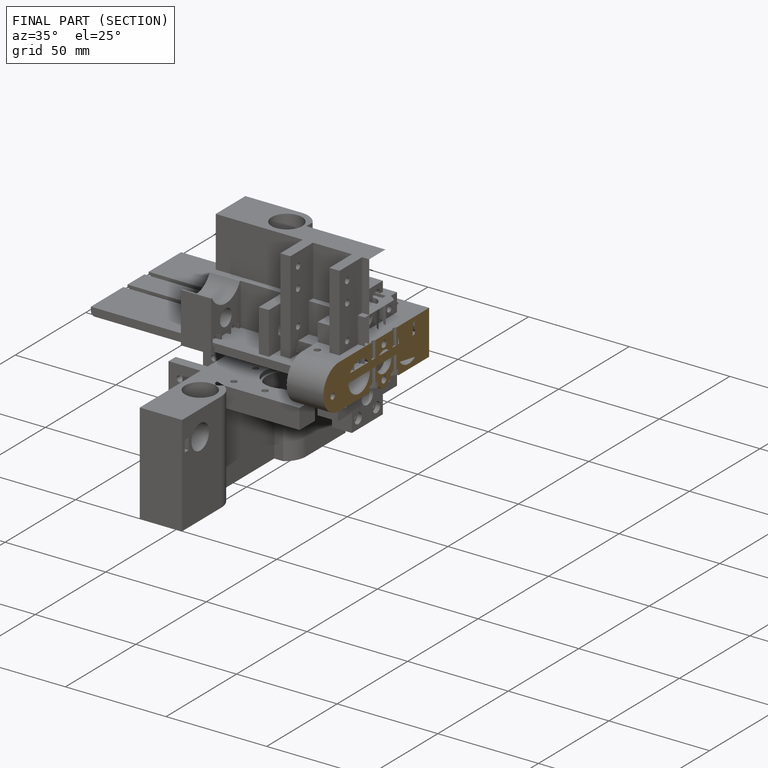
[diagram: finished part — half-section view (interior)]
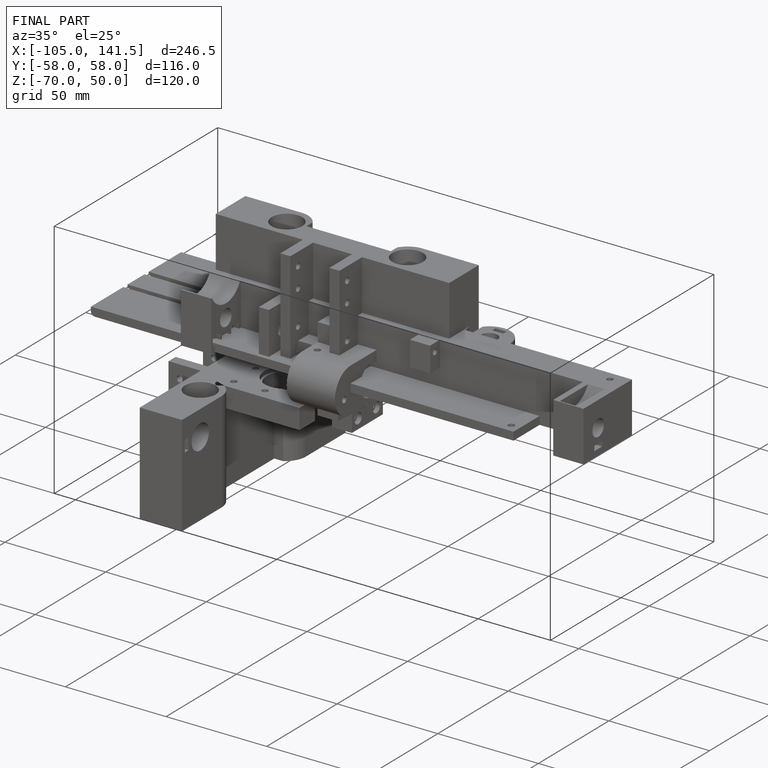
[diagram: finished part — iso view with bounding-box wireframe]
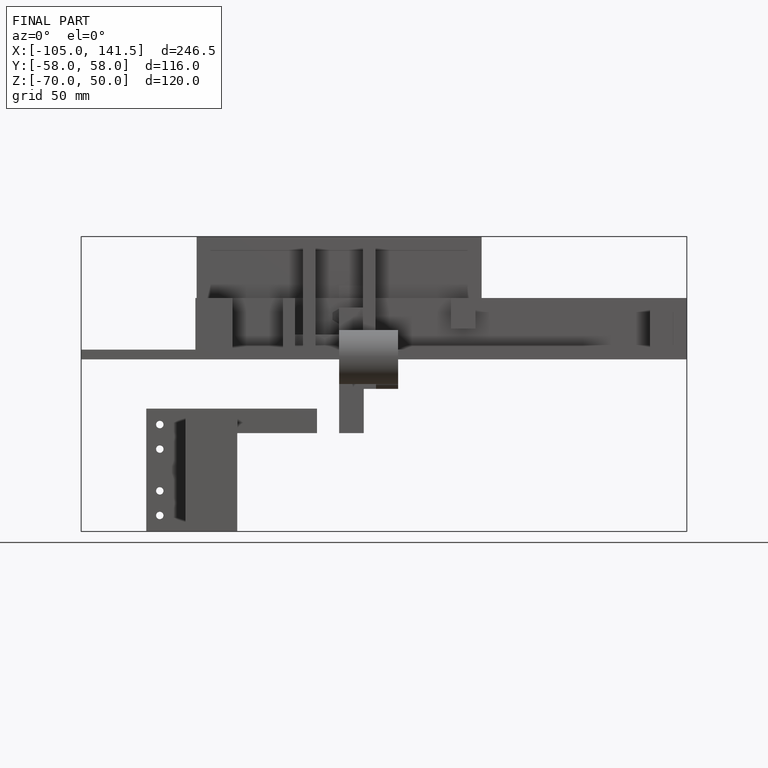
[diagram: finished part — front view with bounding-box wireframe]
